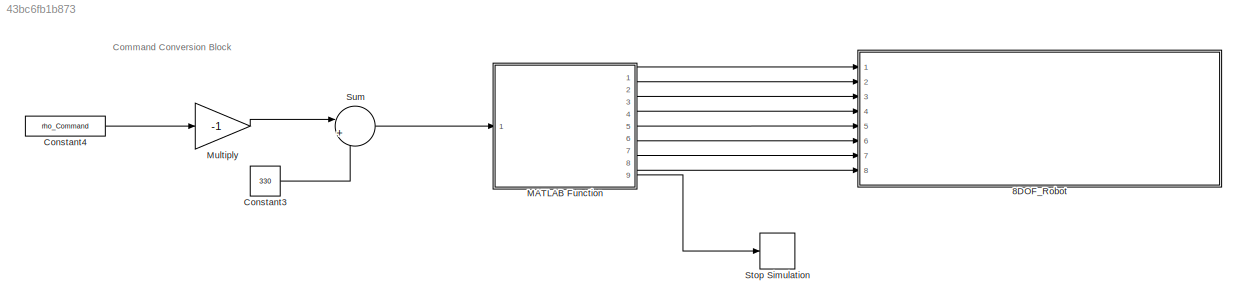
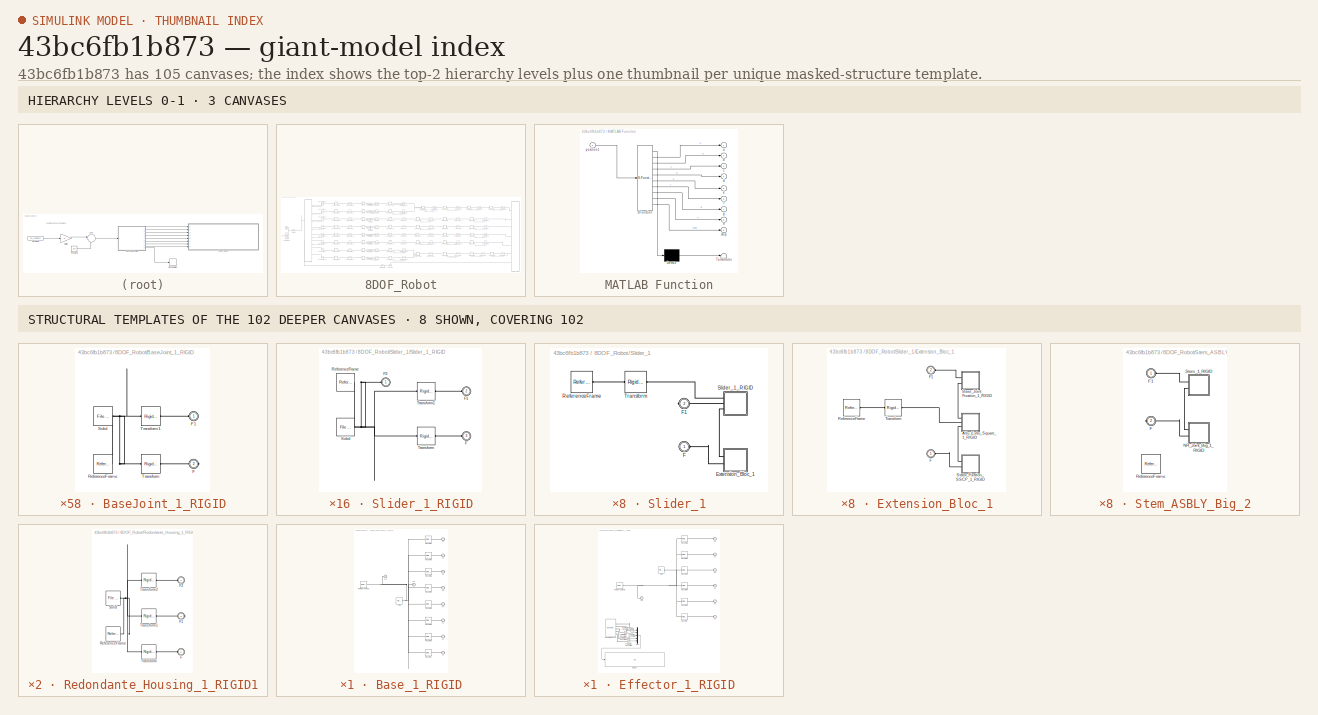
[diagram: thumbnail index - top-2 hierarchy levels (3 canvases) + 8 structural-template representatives of the remaining 102 canvases]
MODEL slx_43bc6fb1b873
KIND model
CONFIG AbsTol = auto
CONFIG EnableMultiTasking = off
CONFIG FixedStep = auto
CONFIG InitFcn = addpath("8DOF_robotModel\robot\")\nrun("x8DOF_Robot_DataFile.m")
CONFIG MaxStep = auto
CONFIG MinStep = auto
CONFIG RelTol = 1e-3
CONFIG SampleTimeConstraint = Unconstrained
CONFIG SolverName = FixedStepAuto
CONFIG StartTime = 0.0
CONFIG StopTime = inf
WORKSPACE source: external: MATLAB File  (data not in archive)
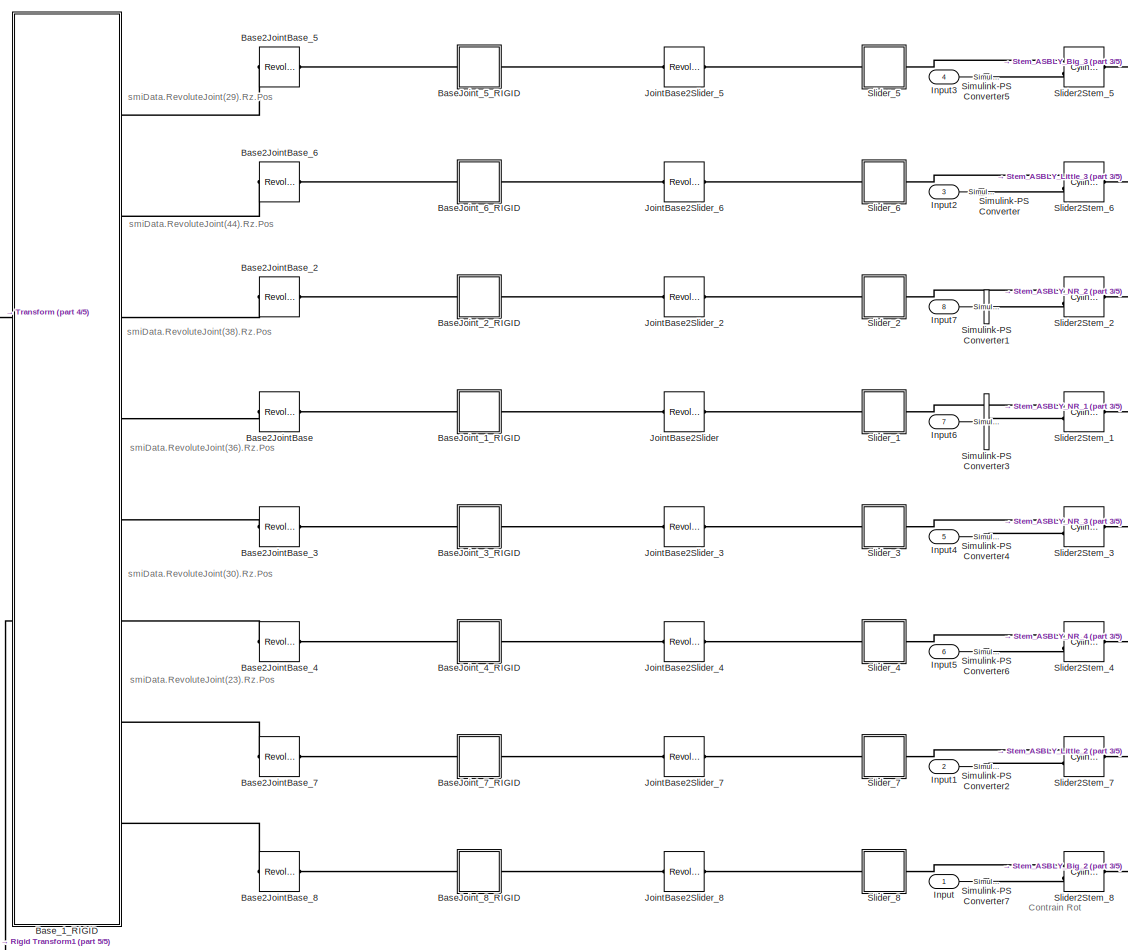
[diagram: 8DOF_Robot - part 1/5, left side, full height]
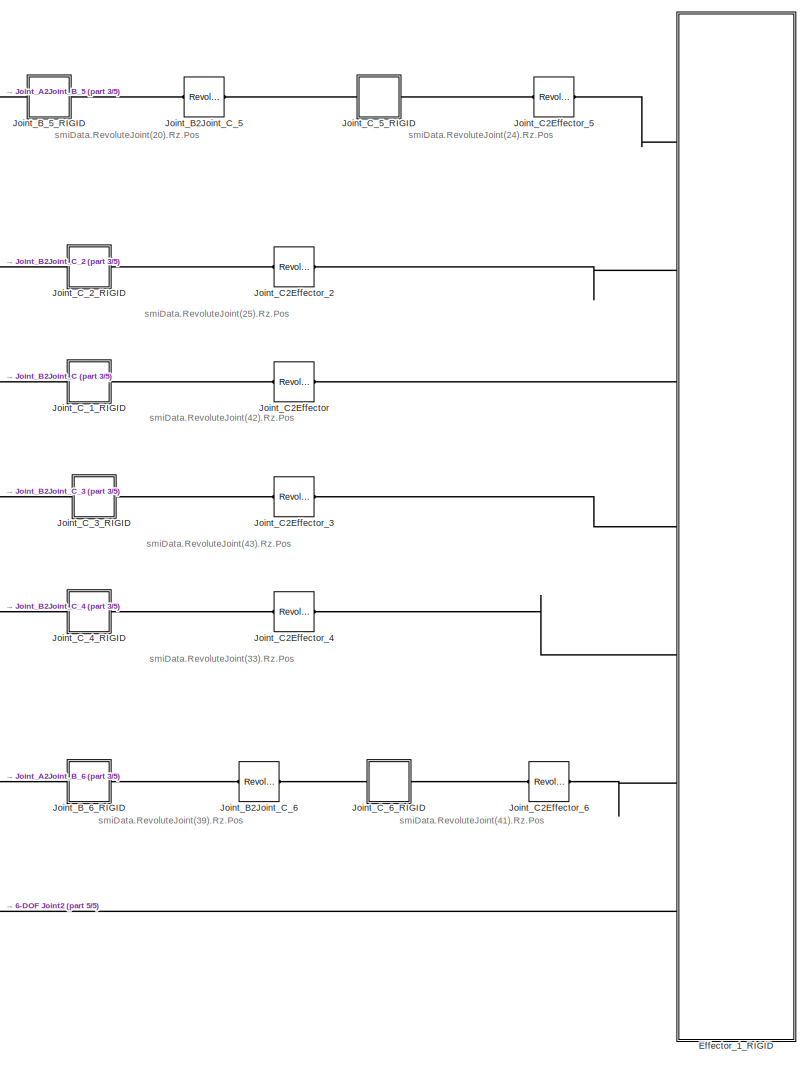
[diagram: 8DOF_Robot - part 2/5, right side, full height]
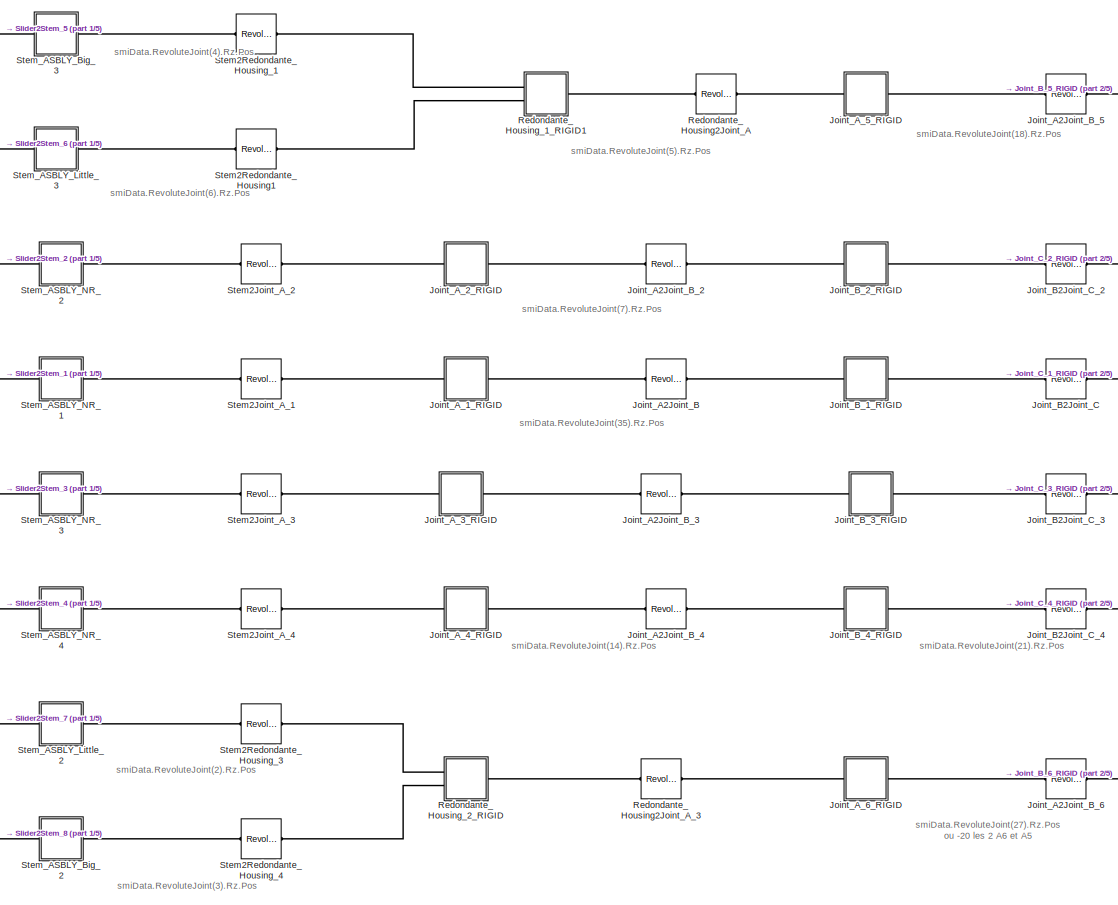
[diagram: 8DOF_Robot - part 3/5, center side, full height]
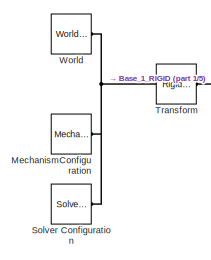
[diagram: 8DOF_Robot - part 4/5, middle left region]
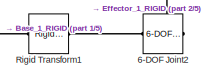
[diagram: 8DOF_Robot - part 5/5, bottom center region]
BLOCK [SubSystem] 8DOF_Robot
  Ports = [8]
  RequestExecContextInheritance = off
BLOCK [Reference] 8DOF_Robot/6-DOF Joint2  REF=sm_lib/Joints/6-DOF Joint
  Ports = [0, 0, 0, 0, 0, 1, 1]
  SourceBlock = sm_lib/Joints/6-DOF Joint
  SourceProductBaseCode = MS
  SourceType = 6-DOF Joint
BLOCK [Reference] 8DOF_Robot/Base2JointBase  REF=sm_lib/Joints/Revolute Joint
  Ports = [0, 0, 0, 0, 0, 1, 1]
  SourceBlock = sm_lib/Joints/Revolute Joint
  SourceProductBaseCode = MS
  SourceType = Revolute Joint
BLOCK [Reference] 8DOF_Robot/Base2JointBase_2  REF=sm_lib/Joints/Revolute Joint
  Ports = [0, 0, 0, 0, 0, 1, 1]
  SourceBlock = sm_lib/Joints/Revolute Joint
  SourceProductBaseCode = MS
  SourceType = Revolute Joint
BLOCK [Reference] 8DOF_Robot/Base2JointBase_3  REF=sm_lib/Joints/Revolute Joint
  Ports = [0, 0, 0, 0, 0, 1, 1]
  SourceBlock = sm_lib/Joints/Revolute Joint
  SourceProductBaseCode = MS
  SourceType = Revolute Joint
BLOCK [Reference] 8DOF_Robot/Base2JointBase_4  REF=sm_lib/Joints/Revolute Joint
  Ports = [0, 0, 0, 0, 0, 1, 1]
  SourceBlock = sm_lib/Joints/Revolute Joint
  SourceProductBaseCode = MS
  SourceType = Revolute Joint
BLOCK [Reference] 8DOF_Robot/Base2JointBase_5  REF=sm_lib/Joints/Revolute Joint
  Ports = [0, 0, 0, 0, 0, 1, 1]
  SourceBlock = sm_lib/Joints/Revolute Joint
  SourceProductBaseCode = MS
  SourceType = Revolute Joint
BLOCK [Reference] 8DOF_Robot/Base2JointBase_6  REF=sm_lib/Joints/Revolute Joint
  Ports = [0, 0, 0, 0, 0, 1, 1]
  SourceBlock = sm_lib/Joints/Revolute Joint
  SourceProductBaseCode = MS
  SourceType = Revolute Joint
BLOCK [Reference] 8DOF_Robot/Base2JointBase_7  REF=sm_lib/Joints/Revolute Joint
  Ports = [0, 0, 0, 0, 0, 1, 1]
  SourceBlock = sm_lib/Joints/Revolute Joint
  SourceProductBaseCode = MS
  SourceType = Revolute Joint
BLOCK [Reference] 8DOF_Robot/Base2JointBase_8  REF=sm_lib/Joints/Revolute Joint
  Ports = [0, 0, 0, 0, 0, 1, 1]
  SourceBlock = sm_lib/Joints/Revolute Joint
  SourceProductBaseCode = MS
  SourceType = Revolute Joint
BLOCK [SubSystem] 8DOF_Robot/BaseJoint_1_RIGID
  Ports = [0, 0, 0, 0, 0, 1, 1]
  RequestExecContextInheritance = off
BLOCK [PMIOPort] 8DOF_Robot/BaseJoint_1_RIGID/F
  Port = 2
  Side = Right
BLOCK [PMIOPort] 8DOF_Robot/BaseJoint_1_RIGID/F1
  Side = Left
BLOCK [Reference] 8DOF_Robot/BaseJoint_1_RIGID/ReferenceFrame  REF=sm_lib/Frames and
Transforms/Reference
Frame
  Ports = [0, 0, 0, 0, 0, 0, 1]
  SourceBlock = sm_lib/Frames and\nTransforms/Reference\nFrame
  SourceProductBaseCode = MS
  SourceType = Reference\nFrame
BLOCK [Reference] 8DOF_Robot/BaseJoint_1_RIGID/Solid  REF=sm_lib/Body Elements/File Solid
  Ports = [0, 0, 0, 0, 0, 0, 1]
  SourceBlock = sm_lib/Body Elements/File Solid
  SourceProductBaseCode = MS
  SourceType = File Solid
BLOCK [Reference] 8DOF_Robot/BaseJoint_1_RIGID/Transform  REF=sm_lib/Frames and
Transforms/Rigid
Transform
  Ports = [0, 0, 0, 0, 0, 1, 1]
  SourceBlock = sm_lib/Frames and\nTransforms/Rigid\nTransform
  SourceProductBaseCode = MS
  SourceType = Rigid\nTransform
BLOCK [Reference] 8DOF_Robot/BaseJoint_1_RIGID/Transform1  REF=sm_lib/Frames and
Transforms/Rigid
Transform
  Ports = [0, 0, 0, 0, 0, 1, 1]
  SourceBlock = sm_lib/Frames and\nTransforms/Rigid\nTransform
  SourceProductBaseCode = MS
  SourceType = Rigid\nTransform
BLOCK [SubSystem] 8DOF_Robot/BaseJoint_2_RIGID
  Ports = [0, 0, 0, 0, 0, 1, 1]
  RequestExecContextInheritance = off
BLOCK [PMIOPort] 8DOF_Robot/BaseJoint_2_RIGID/F
  Port = 2
  Side = Right
BLOCK [PMIOPort] 8DOF_Robot/BaseJoint_2_RIGID/F1
  Side = Left
BLOCK [Reference] 8DOF_Robot/BaseJoint_2_RIGID/ReferenceFrame  REF=sm_lib/Frames and
Transforms/Reference
Frame
  Ports = [0, 0, 0, 0, 0, 0, 1]
  SourceBlock = sm_lib/Frames and\nTransforms/Reference\nFrame
  SourceProductBaseCode = MS
  SourceType = Reference\nFrame
BLOCK [Reference] 8DOF_Robot/BaseJoint_2_RIGID/Solid  REF=sm_lib/Body Elements/File Solid
  Ports = [0, 0, 0, 0, 0, 0, 1]
  SourceBlock = sm_lib/Body Elements/File Solid
  SourceProductBaseCode = MS
  SourceType = File Solid
BLOCK [Reference] 8DOF_Robot/BaseJoint_2_RIGID/Transform  REF=sm_lib/Frames and
Transforms/Rigid
Transform
  Ports = [0, 0, 0, 0, 0, 1, 1]
  SourceBlock = sm_lib/Frames and\nTransforms/Rigid\nTransform
  SourceProductBaseCode = MS
  SourceType = Rigid\nTransform
BLOCK [Reference] 8DOF_Robot/BaseJoint_2_RIGID/Transform1  REF=sm_lib/Frames and
Transforms/Rigid
Transform
  Ports = [0, 0, 0, 0, 0, 1, 1]
  SourceBlock = sm_lib/Frames and\nTransforms/Rigid\nTransform
  SourceProductBaseCode = MS
  SourceType = Rigid\nTransform
BLOCK [SubSystem] 8DOF_Robot/BaseJoint_3_RIGID
  Ports = [0, 0, 0, 0, 0, 1, 1]
  RequestExecContextInheritance = off
BLOCK [PMIOPort] 8DOF_Robot/BaseJoint_3_RIGID/F
  Side = Left
BLOCK [PMIOPort] 8DOF_Robot/BaseJoint_3_RIGID/F1
  Port = 2
  Side = Right
BLOCK [Reference] 8DOF_Robot/BaseJoint_3_RIGID/ReferenceFrame  REF=sm_lib/Frames and
Transforms/Reference
Frame
  Ports = [0, 0, 0, 0, 0, 0, 1]
  SourceBlock = sm_lib/Frames and\nTransforms/Reference\nFrame
  SourceProductBaseCode = MS
  SourceType = Reference\nFrame
BLOCK [Reference] 8DOF_Robot/BaseJoint_3_RIGID/Solid  REF=sm_lib/Body Elements/File Solid
  Ports = [0, 0, 0, 0, 0, 0, 1]
  SourceBlock = sm_lib/Body Elements/File Solid
  SourceProductBaseCode = MS
  SourceType = File Solid
BLOCK [Reference] 8DOF_Robot/BaseJoint_3_RIGID/Transform  REF=sm_lib/Frames and
Transforms/Rigid
Transform
  Ports = [0, 0, 0, 0, 0, 1, 1]
  SourceBlock = sm_lib/Frames and\nTransforms/Rigid\nTransform
  SourceProductBaseCode = MS
  SourceType = Rigid\nTransform
BLOCK [Reference] 8DOF_Robot/BaseJoint_3_RIGID/Transform1  REF=sm_lib/Frames and
Transforms/Rigid
Transform
  Ports = [0, 0, 0, 0, 0, 1, 1]
  SourceBlock = sm_lib/Frames and\nTransforms/Rigid\nTransform
  SourceProductBaseCode = MS
  SourceType = Rigid\nTransform
BLOCK [SubSystem] 8DOF_Robot/BaseJoint_4_RIGID
  Ports = [0, 0, 0, 0, 0, 1, 1]
  RequestExecContextInheritance = off
BLOCK [PMIOPort] 8DOF_Robot/BaseJoint_4_RIGID/F
  Port = 2
  Side = Right
BLOCK [PMIOPort] 8DOF_Robot/BaseJoint_4_RIGID/F1
  Side = Left
BLOCK [Reference] 8DOF_Robot/BaseJoint_4_RIGID/ReferenceFrame  REF=sm_lib/Frames and
Transforms/Reference
Frame
  Ports = [0, 0, 0, 0, 0, 0, 1]
  SourceBlock = sm_lib/Frames and\nTransforms/Reference\nFrame
  SourceProductBaseCode = MS
  SourceType = Reference\nFrame
BLOCK [Reference] 8DOF_Robot/BaseJoint_4_RIGID/Solid  REF=sm_lib/Body Elements/File Solid
  Ports = [0, 0, 0, 0, 0, 0, 1]
  SourceBlock = sm_lib/Body Elements/File Solid
  SourceProductBaseCode = MS
  SourceType = File Solid
BLOCK [Reference] 8DOF_Robot/BaseJoint_4_RIGID/Transform  REF=sm_lib/Frames and
Transforms/Rigid
Transform
  Ports = [0, 0, 0, 0, 0, 1, 1]
  SourceBlock = sm_lib/Frames and\nTransforms/Rigid\nTransform
  SourceProductBaseCode = MS
  SourceType = Rigid\nTransform
BLOCK [Reference] 8DOF_Robot/BaseJoint_4_RIGID/Transform1  REF=sm_lib/Frames and
Transforms/Rigid
Transform
  Ports = [0, 0, 0, 0, 0, 1, 1]
  SourceBlock = sm_lib/Frames and\nTransforms/Rigid\nTransform
  SourceProductBaseCode = MS
  SourceType = Rigid\nTransform
BLOCK [SubSystem] 8DOF_Robot/BaseJoint_5_RIGID
  Ports = [0, 0, 0, 0, 0, 1, 1]
  RequestExecContextInheritance = off
BLOCK [PMIOPort] 8DOF_Robot/BaseJoint_5_RIGID/F
  Port = 2
  Side = Right
BLOCK [PMIOPort] 8DOF_Robot/BaseJoint_5_RIGID/F1
  Side = Left
BLOCK [Reference] 8DOF_Robot/BaseJoint_5_RIGID/ReferenceFrame  REF=sm_lib/Frames and
Transforms/Reference
Frame
  Ports = [0, 0, 0, 0, 0, 0, 1]
  SourceBlock = sm_lib/Frames and\nTransforms/Reference\nFrame
  SourceProductBaseCode = MS
  SourceType = Reference\nFrame
BLOCK [Reference] 8DOF_Robot/BaseJoint_5_RIGID/Solid  REF=sm_lib/Body Elements/File Solid
  Ports = [0, 0, 0, 0, 0, 0, 1]
  SourceBlock = sm_lib/Body Elements/File Solid
  SourceProductBaseCode = MS
  SourceType = File Solid
BLOCK [Reference] 8DOF_Robot/BaseJoint_5_RIGID/Transform  REF=sm_lib/Frames and
Transforms/Rigid
Transform
  Ports = [0, 0, 0, 0, 0, 1, 1]
  SourceBlock = sm_lib/Frames and\nTransforms/Rigid\nTransform
  SourceProductBaseCode = MS
  SourceType = Rigid\nTransform
BLOCK [Reference] 8DOF_Robot/BaseJoint_5_RIGID/Transform1  REF=sm_lib/Frames and
Transforms/Rigid
Transform
  Ports = [0, 0, 0, 0, 0, 1, 1]
  SourceBlock = sm_lib/Frames and\nTransforms/Rigid\nTransform
  SourceProductBaseCode = MS
  SourceType = Rigid\nTransform
BLOCK [SubSystem] 8DOF_Robot/BaseJoint_6_RIGID
  Ports = [0, 0, 0, 0, 0, 1, 1]
  RequestExecContextInheritance = off
BLOCK [PMIOPort] 8DOF_Robot/BaseJoint_6_RIGID/F
  Port = 2
  Side = Right
BLOCK [PMIOPort] 8DOF_Robot/BaseJoint_6_RIGID/F1
  Side = Left
BLOCK [Reference] 8DOF_Robot/BaseJoint_6_RIGID/ReferenceFrame  REF=sm_lib/Frames and
Transforms/Reference
Frame
  Ports = [0, 0, 0, 0, 0, 0, 1]
  SourceBlock = sm_lib/Frames and\nTransforms/Reference\nFrame
  SourceProductBaseCode = MS
  SourceType = Reference\nFrame
BLOCK [Reference] 8DOF_Robot/BaseJoint_6_RIGID/Solid  REF=sm_lib/Body Elements/File Solid
  Ports = [0, 0, 0, 0, 0, 0, 1]
  SourceBlock = sm_lib/Body Elements/File Solid
  SourceProductBaseCode = MS
  SourceType = File Solid
BLOCK [Reference] 8DOF_Robot/BaseJoint_6_RIGID/Transform  REF=sm_lib/Frames and
Transforms/Rigid
Transform
  Ports = [0, 0, 0, 0, 0, 1, 1]
  SourceBlock = sm_lib/Frames and\nTransforms/Rigid\nTransform
  SourceProductBaseCode = MS
  SourceType = Rigid\nTransform
BLOCK [Reference] 8DOF_Robot/BaseJoint_6_RIGID/Transform1  REF=sm_lib/Frames and
Transforms/Rigid
Transform
  Ports = [0, 0, 0, 0, 0, 1, 1]
  SourceBlock = sm_lib/Frames and\nTransforms/Rigid\nTransform
  SourceProductBaseCode = MS
  SourceType = Rigid\nTransform
BLOCK [SubSystem] 8DOF_Robot/BaseJoint_7_RIGID
  Ports = [0, 0, 0, 0, 0, 1, 1]
  RequestExecContextInheritance = off
BLOCK [PMIOPort] 8DOF_Robot/BaseJoint_7_RIGID/F
  Port = 2
  Side = Right
BLOCK [PMIOPort] 8DOF_Robot/BaseJoint_7_RIGID/F1
  Side = Left
BLOCK [Reference] 8DOF_Robot/BaseJoint_7_RIGID/ReferenceFrame  REF=sm_lib/Frames and
Transforms/Reference
Frame
  Ports = [0, 0, 0, 0, 0, 0, 1]
  SourceBlock = sm_lib/Frames and\nTransforms/Reference\nFrame
  SourceProductBaseCode = MS
  SourceType = Reference\nFrame
BLOCK [Reference] 8DOF_Robot/BaseJoint_7_RIGID/Solid  REF=sm_lib/Body Elements/File Solid
  Ports = [0, 0, 0, 0, 0, 0, 1]
  SourceBlock = sm_lib/Body Elements/File Solid
  SourceProductBaseCode = MS
  SourceType = File Solid
BLOCK [Reference] 8DOF_Robot/BaseJoint_7_RIGID/Transform  REF=sm_lib/Frames and
Transforms/Rigid
Transform
  Ports = [0, 0, 0, 0, 0, 1, 1]
  SourceBlock = sm_lib/Frames and\nTransforms/Rigid\nTransform
  SourceProductBaseCode = MS
  SourceType = Rigid\nTransform
BLOCK [Reference] 8DOF_Robot/BaseJoint_7_RIGID/Transform1  REF=sm_lib/Frames and
Transforms/Rigid
Transform
  Ports = [0, 0, 0, 0, 0, 1, 1]
  SourceBlock = sm_lib/Frames and\nTransforms/Rigid\nTransform
  SourceProductBaseCode = MS
  SourceType = Rigid\nTransform
BLOCK [SubSystem] 8DOF_Robot/BaseJoint_8_RIGID
  Ports = [0, 0, 0, 0, 0, 1, 1]
  RequestExecContextInheritance = off
BLOCK [PMIOPort] 8DOF_Robot/BaseJoint_8_RIGID/F
  Port = 2
  Side = Right
BLOCK [PMIOPort] 8DOF_Robot/BaseJoint_8_RIGID/F1
  Side = Left
BLOCK [Reference] 8DOF_Robot/BaseJoint_8_RIGID/ReferenceFrame  REF=sm_lib/Frames and
Transforms/Reference
Frame
  Ports = [0, 0, 0, 0, 0, 0, 1]
  SourceBlock = sm_lib/Frames and\nTransforms/Reference\nFrame
  SourceProductBaseCode = MS
  SourceType = Reference\nFrame
BLOCK [Reference] 8DOF_Robot/BaseJoint_8_RIGID/Solid  REF=sm_lib/Body Elements/File Solid
  Ports = [0, 0, 0, 0, 0, 0, 1]
  SourceBlock = sm_lib/Body Elements/File Solid
  SourceProductBaseCode = MS
  SourceType = File Solid
BLOCK [Reference] 8DOF_Robot/BaseJoint_8_RIGID/Transform  REF=sm_lib/Frames and
Transforms/Rigid
Transform
  Ports = [0, 0, 0, 0, 0, 1, 1]
  SourceBlock = sm_lib/Frames and\nTransforms/Rigid\nTransform
  SourceProductBaseCode = MS
  SourceType = Rigid\nTransform
BLOCK [Reference] 8DOF_Robot/BaseJoint_8_RIGID/Transform1  REF=sm_lib/Frames and
Transforms/Rigid
Transform
  Ports = [0, 0, 0, 0, 0, 1, 1]
  SourceBlock = sm_lib/Frames and\nTransforms/Rigid\nTransform
  SourceProductBaseCode = MS
  SourceType = Rigid\nTransform
BLOCK [SubSystem] 8DOF_Robot/Base_1_RIGID
  Ports = [0, 0, 0, 0, 0, 2, 8]
  RequestExecContextInheritance = off
BLOCK [PMIOPort] 8DOF_Robot/Base_1_RIGID/F
  Port = 9
  Side = Right
BLOCK [PMIOPort] 8DOF_Robot/Base_1_RIGID/F1
  Port = 7
  Side = Right
BLOCK [PMIOPort] 8DOF_Robot/Base_1_RIGID/F2
  Port = 2
  Side = Right
BLOCK [PMIOPort] 8DOF_Robot/Base_1_RIGID/F3
  Port = 6
  Side = Right
BLOCK [PMIOPort] 8DOF_Robot/Base_1_RIGID/F4
  Port = 5
  Side = Right
BLOCK [PMIOPort] 8DOF_Robot/Base_1_RIGID/F5
  Port = 8
  Side = Right
BLOCK [PMIOPort] 8DOF_Robot/Base_1_RIGID/F6
  Port = 4
  Side = Right
BLOCK [PMIOPort] 8DOF_Robot/Base_1_RIGID/F7
  Port = 3
  Side = Right
BLOCK [PMIOPort] 8DOF_Robot/Base_1_RIGID/F8
  Side = Left
BLOCK [PMIOPort] 8DOF_Robot/Base_1_RIGID/F9
  Port = 10
  Side = Left
BLOCK [Reference] 8DOF_Robot/Base_1_RIGID/ReferenceFrame  REF=sm_lib/Frames and
Transforms/Reference
Frame
  Ports = [0, 0, 0, 0, 0, 0, 1]
  SourceBlock = sm_lib/Frames and\nTransforms/Reference\nFrame
  SourceProductBaseCode = MS
  SourceType = Reference\nFrame
BLOCK [Reference] 8DOF_Robot/Base_1_RIGID/Solid  REF=sm_lib/Body Elements/File Solid
  Ports = [0, 0, 0, 0, 0, 0, 1]
  SourceBlock = sm_lib/Body Elements/File Solid
  SourceProductBaseCode = MS
  SourceType = File Solid
BLOCK [Reference] 8DOF_Robot/Base_1_RIGID/Transform  REF=sm_lib/Frames and
Transforms/Rigid
Transform
  Ports = [0, 0, 0, 0, 0, 1, 1]
  SourceBlock = sm_lib/Frames and\nTransforms/Rigid\nTransform
  SourceProductBaseCode = MS
  SourceType = Rigid\nTransform
BLOCK [Reference] 8DOF_Robot/Base_1_RIGID/Transform1  REF=sm_lib/Frames and
Transforms/Rigid
Transform
  Ports = [0, 0, 0, 0, 0, 1, 1]
  SourceBlock = sm_lib/Frames and\nTransforms/Rigid\nTransform
  SourceProductBaseCode = MS
  SourceType = Rigid\nTransform
BLOCK [Reference] 8DOF_Robot/Base_1_RIGID/Transform2  REF=sm_lib/Frames and
Transforms/Rigid
Transform
  Ports = [0, 0, 0, 0, 0, 1, 1]
  SourceBlock = sm_lib/Frames and\nTransforms/Rigid\nTransform
  SourceProductBaseCode = MS
  SourceType = Rigid\nTransform
BLOCK [Reference] 8DOF_Robot/Base_1_RIGID/Transform3  REF=sm_lib/Frames and
Transforms/Rigid
Transform
  Ports = [0, 0, 0, 0, 0, 1, 1]
  SourceBlock = sm_lib/Frames and\nTransforms/Rigid\nTransform
  SourceProductBaseCode = MS
  SourceType = Rigid\nTransform
BLOCK [Reference] 8DOF_Robot/Base_1_RIGID/Transform4  REF=sm_lib/Frames and
Transforms/Rigid
Transform
  Ports = [0, 0, 0, 0, 0, 1, 1]
  SourceBlock = sm_lib/Frames and\nTransforms/Rigid\nTransform
  SourceProductBaseCode = MS
  SourceType = Rigid\nTransform
BLOCK [Reference] 8DOF_Robot/Base_1_RIGID/Transform5  REF=sm_lib/Frames and
Transforms/Rigid
Transform
  Ports = [0, 0, 0, 0, 0, 1, 1]
  SourceBlock = sm_lib/Frames and\nTransforms/Rigid\nTransform
  SourceProductBaseCode = MS
  SourceType = Rigid\nTransform
BLOCK [Reference] 8DOF_Robot/Base_1_RIGID/Transform6  REF=sm_lib/Frames and
Transforms/Rigid
Transform
  Ports = [0, 0, 0, 0, 0, 1, 1]
  SourceBlock = sm_lib/Frames and\nTransforms/Rigid\nTransform
  SourceProductBaseCode = MS
  SourceType = Rigid\nTransform
BLOCK [Reference] 8DOF_Robot/Base_1_RIGID/Transform7  REF=sm_lib/Frames and
Transforms/Rigid
Transform
  Ports = [0, 0, 0, 0, 0, 1, 1]
  SourceBlock = sm_lib/Frames and\nTransforms/Rigid\nTransform
  SourceProductBaseCode = MS
  SourceType = Rigid\nTransform
BLOCK [SubSystem] 8DOF_Robot/Effector_1_RIGID
  Ports = [0, 0, 0, 0, 0, 7]
  RequestExecContextInheritance = off
BLOCK [Display] 8DOF_Robot/Effector_1_RIGID/Display
  Commented = on
  Decimation = 1
  Ports = [1]
BLOCK [PMIOPort] 8DOF_Robot/Effector_1_RIGID/F
  Side = Left
BLOCK [PMIOPort] 8DOF_Robot/Effector_1_RIGID/F1
  Port = 2
  Side = Left
BLOCK [PMIOPort] 8DOF_Robot/Effector_1_RIGID/F2
  Port = 5
  Side = Left
BLOCK [PMIOPort] 8DOF_Robot/Effector_1_RIGID/F3
  Port = 6
  Side = Left
BLOCK [PMIOPort] 8DOF_Robot/Effector_1_RIGID/F4
  Port = 3
  Side = Left
BLOCK [PMIOPort] 8DOF_Robot/Effector_1_RIGID/F5
  Port = 4
  Side = Left
BLOCK [PMIOPort] 8DOF_Robot/Effector_1_RIGID/F6
  Port = 7
  Side = Left
BLOCK [Mux] 8DOF_Robot/Effector_1_RIGID/Mux
  Commented = on
  DisplayOption = bar
  Inputs = 5
  Ports = [5, 1]
BLOCK [Reference] 8DOF_Robot/Effector_1_RIGID/PS-Simulink Converter  REF=nesl_utility/PS-Simulink
Converter
  Commented = on
  Ports = [0, 1, 0, 0, 0, 1]
  SourceBlock = nesl_utility/PS-Simulink\nConverter
  SourceProductBaseCode = PW,SS
  SourceType = PS-Simulink\nConverter
BLOCK [Reference] 8DOF_Robot/Effector_1_RIGID/PS-Simulink Converter1  REF=nesl_utility/PS-Simulink
Converter
  Commented = on
  Ports = [0, 1, 0, 0, 0, 1]
  SourceBlock = nesl_utility/PS-Simulink\nConverter
  SourceProductBaseCode = PW,SS
  SourceType = PS-Simulink\nConverter
BLOCK [Reference] 8DOF_Robot/Effector_1_RIGID/PS-Simulink Converter2  REF=nesl_utility/PS-Simulink
Converter
  Commented = on
  Ports = [0, 1, 0, 0, 0, 1]
  SourceBlock = nesl_utility/PS-Simulink\nConverter
  SourceProductBaseCode = PW,SS
  SourceType = PS-Simulink\nConverter
BLOCK [Reference] 8DOF_Robot/Effector_1_RIGID/PS-Simulink Converter3  REF=nesl_utility/PS-Simulink
Converter
  Commented = on
  Ports = [0, 1, 0, 0, 0, 1]
  SourceBlock = nesl_utility/PS-Simulink\nConverter
  SourceProductBaseCode = PW,SS
  SourceType = PS-Simulink\nConverter
BLOCK [Reference] 8DOF_Robot/Effector_1_RIGID/PS-Simulink Converter4  REF=nesl_utility/PS-Simulink
Converter
  Commented = on
  Ports = [0, 1, 0, 0, 0, 1]
  SourceBlock = nesl_utility/PS-Simulink\nConverter
  SourceProductBaseCode = PW,SS
  SourceType = PS-Simulink\nConverter
BLOCK [Reference] 8DOF_Robot/Effector_1_RIGID/ReferenceFrame  REF=sm_lib/Frames and
Transforms/Reference
Frame
  Ports = [0, 0, 0, 0, 0, 0, 1]
  SourceBlock = sm_lib/Frames and\nTransforms/Reference\nFrame
  SourceProductBaseCode = MS
  SourceType = Reference\nFrame
BLOCK [Reference] 8DOF_Robot/Effector_1_RIGID/Solid  REF=sm_lib/Body Elements/File Solid
  Ports = [0, 0, 0, 0, 0, 0, 1]
  SourceBlock = sm_lib/Body Elements/File Solid
  SourceProductBaseCode = MS
  SourceType = File Solid
BLOCK [Reference] 8DOF_Robot/Effector_1_RIGID/Transform  REF=sm_lib/Frames and
Transforms/Rigid
Transform
  Ports = [0, 0, 0, 0, 0, 1, 1]
  SourceBlock = sm_lib/Frames and\nTransforms/Rigid\nTransform
  SourceProductBaseCode = MS
  SourceType = Rigid\nTransform
BLOCK [Reference] 8DOF_Robot/Effector_1_RIGID/Transform Sensor  REF=sm_lib/Frames and
Transforms/Transform
Sensor
  Commented = on
  Ports = [0, 0, 0, 0, 0, 1, 6]
  SourceBlock = sm_lib/Frames and\nTransforms/Transform\nSensor
  SourceProductBaseCode = MS
  SourceType = Transform\nSensor
BLOCK [Reference] 8DOF_Robot/Effector_1_RIGID/Transform1  REF=sm_lib/Frames and
Transforms/Rigid
Transform
  Ports = [0, 0, 0, 0, 0, 1, 1]
  SourceBlock = sm_lib/Frames and\nTransforms/Rigid\nTransform
  SourceProductBaseCode = MS
  SourceType = Rigid\nTransform
BLOCK [Reference] 8DOF_Robot/Effector_1_RIGID/Transform2  REF=sm_lib/Frames and
Transforms/Rigid
Transform
  Ports = [0, 0, 0, 0, 0, 1, 1]
  SourceBlock = sm_lib/Frames and\nTransforms/Rigid\nTransform
  SourceProductBaseCode = MS
  SourceType = Rigid\nTransform
BLOCK [Reference] 8DOF_Robot/Effector_1_RIGID/Transform3  REF=sm_lib/Frames and
Transforms/Rigid
Transform
  Ports = [0, 0, 0, 0, 0, 1, 1]
  SourceBlock = sm_lib/Frames and\nTransforms/Rigid\nTransform
  SourceProductBaseCode = MS
  SourceType = Rigid\nTransform
BLOCK [Reference] 8DOF_Robot/Effector_1_RIGID/Transform4  REF=sm_lib/Frames and
Transforms/Rigid
Transform
  Ports = [0, 0, 0, 0, 0, 1, 1]
  SourceBlock = sm_lib/Frames and\nTransforms/Rigid\nTransform
  SourceProductBaseCode = MS
  SourceType = Rigid\nTransform
BLOCK [Reference] 8DOF_Robot/Effector_1_RIGID/Transform5  REF=sm_lib/Frames and
Transforms/Rigid
Transform
  Ports = [0, 0, 0, 0, 0, 1, 1]
  SourceBlock = sm_lib/Frames and\nTransforms/Rigid\nTransform
  SourceProductBaseCode = MS
  SourceType = Rigid\nTransform
BLOCK [Inport] 8DOF_Robot/Input
BLOCK [Inport] 8DOF_Robot/Input1
  Port = 2
BLOCK [Inport] 8DOF_Robot/Input2
  Port = 3
BLOCK [Inport] 8DOF_Robot/Input3
  Port = 4
BLOCK [Inport] 8DOF_Robot/Input4
  Port = 5
BLOCK [Inport] 8DOF_Robot/Input5
  Port = 6
BLOCK [Inport] 8DOF_Robot/Input6
  Port = 7
BLOCK [Inport] 8DOF_Robot/Input7
  Port = 8
BLOCK [Reference] 8DOF_Robot/JointBase2Slider  REF=sm_lib/Joints/Revolute Joint
  Ports = [0, 0, 0, 0, 0, 1, 1]
  SourceBlock = sm_lib/Joints/Revolute Joint
  SourceProductBaseCode = MS
  SourceType = Revolute Joint
BLOCK [Reference] 8DOF_Robot/JointBase2Slider_2  REF=sm_lib/Joints/Revolute Joint
  Ports = [0, 0, 0, 0, 0, 1, 1]
  SourceBlock = sm_lib/Joints/Revolute Joint
  SourceProductBaseCode = MS
  SourceType = Revolute Joint
BLOCK [Reference] 8DOF_Robot/JointBase2Slider_3  REF=sm_lib/Joints/Revolute Joint
  Ports = [0, 0, 0, 0, 0, 1, 1]
  SourceBlock = sm_lib/Joints/Revolute Joint
  SourceProductBaseCode = MS
  SourceType = Revolute Joint
BLOCK [Reference] 8DOF_Robot/JointBase2Slider_4  REF=sm_lib/Joints/Revolute Joint
  Ports = [0, 0, 0, 0, 0, 1, 1]
  SourceBlock = sm_lib/Joints/Revolute Joint
  SourceProductBaseCode = MS
  SourceType = Revolute Joint
BLOCK [Reference] 8DOF_Robot/JointBase2Slider_5  REF=sm_lib/Joints/Revolute Joint
  Ports = [0, 0, 0, 0, 0, 1, 1]
  SourceBlock = sm_lib/Joints/Revolute Joint
  SourceProductBaseCode = MS
  SourceType = Revolute Joint
BLOCK [Reference] 8DOF_Robot/JointBase2Slider_6  REF=sm_lib/Joints/Revolute Joint
  Ports = [0, 0, 0, 0, 0, 1, 1]
  SourceBlock = sm_lib/Joints/Revolute Joint
  SourceProductBaseCode = MS
  SourceType = Revolute Joint
BLOCK [Reference] 8DOF_Robot/JointBase2Slider_7  REF=sm_lib/Joints/Revolute Joint
  Ports = [0, 0, 0, 0, 0, 1, 1]
  SourceBlock = sm_lib/Joints/Revolute Joint
  SourceProductBaseCode = MS
  SourceType = Revolute Joint
BLOCK [Reference] 8DOF_Robot/JointBase2Slider_8  REF=sm_lib/Joints/Revolute Joint
  Ports = [0, 0, 0, 0, 0, 1, 1]
  SourceBlock = sm_lib/Joints/Revolute Joint
  SourceProductBaseCode = MS
  SourceType = Revolute Joint
BLOCK [Reference] 8DOF_Robot/Joint_A2Joint_B  REF=sm_lib/Joints/Revolute Joint
  Ports = [0, 0, 0, 0, 0, 1, 1]
  SourceBlock = sm_lib/Joints/Revolute Joint
  SourceProductBaseCode = MS
  SourceType = Revolute Joint
BLOCK [Reference] 8DOF_Robot/Joint_A2Joint_B_2  REF=sm_lib/Joints/Revolute Joint
  Ports = [0, 0, 0, 0, 0, 1, 1]
  SourceBlock = sm_lib/Joints/Revolute Joint
  SourceProductBaseCode = MS
  SourceType = Revolute Joint
BLOCK [Reference] 8DOF_Robot/Joint_A2Joint_B_3  REF=sm_lib/Joints/Revolute Joint
  Ports = [0, 0, 0, 0, 0, 1, 1]
  SourceBlock = sm_lib/Joints/Revolute Joint
  SourceProductBaseCode = MS
  SourceType = Revolute Joint
BLOCK [Reference] 8DOF_Robot/Joint_A2Joint_B_4  REF=sm_lib/Joints/Revolute Joint
  Ports = [0, 0, 0, 0, 0, 1, 1]
  SourceBlock = sm_lib/Joints/Revolute Joint
  SourceProductBaseCode = MS
  SourceType = Revolute Joint
BLOCK [Reference] 8DOF_Robot/Joint_A2Joint_B_5  REF=sm_lib/Joints/Revolute Joint
  Ports = [0, 0, 0, 0, 0, 1, 1]
  SourceBlock = sm_lib/Joints/Revolute Joint
  SourceProductBaseCode = MS
  SourceType = Revolute Joint
BLOCK [Reference] 8DOF_Robot/Joint_A2Joint_B_6  REF=sm_lib/Joints/Revolute Joint
  Ports = [0, 0, 0, 0, 0, 1, 1]
  SourceBlock = sm_lib/Joints/Revolute Joint
  SourceProductBaseCode = MS
  SourceType = Revolute Joint
BLOCK [SubSystem] 8DOF_Robot/Joint_A_1_RIGID
  Ports = [0, 0, 0, 0, 0, 1, 1]
  RequestExecContextInheritance = off
BLOCK [PMIOPort] 8DOF_Robot/Joint_A_1_RIGID/F
  Side = Left
BLOCK [PMIOPort] 8DOF_Robot/Joint_A_1_RIGID/F1
  Port = 2
  Side = Right
BLOCK [Reference] 8DOF_Robot/Joint_A_1_RIGID/ReferenceFrame  REF=sm_lib/Frames and
Transforms/Reference
Frame
  Ports = [0, 0, 0, 0, 0, 0, 1]
  SourceBlock = sm_lib/Frames and\nTransforms/Reference\nFrame
  SourceProductBaseCode = MS
  SourceType = Reference\nFrame
BLOCK [Reference] 8DOF_Robot/Joint_A_1_RIGID/Solid  REF=sm_lib/Body Elements/File Solid
  Ports = [0, 0, 0, 0, 0, 0, 1]
  SourceBlock = sm_lib/Body Elements/File Solid
  SourceProductBaseCode = MS
  SourceType = File Solid
BLOCK [Reference] 8DOF_Robot/Joint_A_1_RIGID/Transform  REF=sm_lib/Frames and
Transforms/Rigid
Transform
  Ports = [0, 0, 0, 0, 0, 1, 1]
  SourceBlock = sm_lib/Frames and\nTransforms/Rigid\nTransform
  SourceProductBaseCode = MS
  SourceType = Rigid\nTransform
BLOCK [Reference] 8DOF_Robot/Joint_A_1_RIGID/Transform1  REF=sm_lib/Frames and
Transforms/Rigid
Transform
  Ports = [0, 0, 0, 0, 0, 1, 1]
  SourceBlock = sm_lib/Frames and\nTransforms/Rigid\nTransform
  SourceProductBaseCode = MS
  SourceType = Rigid\nTransform
BLOCK [SubSystem] 8DOF_Robot/Joint_A_2_RIGID
  Ports = [0, 0, 0, 0, 0, 1, 1]
  RequestExecContextInheritance = off
BLOCK [PMIOPort] 8DOF_Robot/Joint_A_2_RIGID/F
  Port = 2
  Side = Right
BLOCK [PMIOPort] 8DOF_Robot/Joint_A_2_RIGID/F1
  Side = Left
BLOCK [Reference] 8DOF_Robot/Joint_A_2_RIGID/ReferenceFrame  REF=sm_lib/Frames and
Transforms/Reference
Frame
  Ports = [0, 0, 0, 0, 0, 0, 1]
  SourceBlock = sm_lib/Frames and\nTransforms/Reference\nFrame
  SourceProductBaseCode = MS
  SourceType = Reference\nFrame
BLOCK [Reference] 8DOF_Robot/Joint_A_2_RIGID/Solid  REF=sm_lib/Body Elements/File Solid
  Ports = [0, 0, 0, 0, 0, 0, 1]
  SourceBlock = sm_lib/Body Elements/File Solid
  SourceProductBaseCode = MS
  SourceType = File Solid
BLOCK [Reference] 8DOF_Robot/Joint_A_2_RIGID/Transform  REF=sm_lib/Frames and
Transforms/Rigid
Transform
  Ports = [0, 0, 0, 0, 0, 1, 1]
  SourceBlock = sm_lib/Frames and\nTransforms/Rigid\nTransform
  SourceProductBaseCode = MS
  SourceType = Rigid\nTransform
BLOCK [Reference] 8DOF_Robot/Joint_A_2_RIGID/Transform1  REF=sm_lib/Frames and
Transforms/Rigid
Transform
  Ports = [0, 0, 0, 0, 0, 1, 1]
  SourceBlock = sm_lib/Frames and\nTransforms/Rigid\nTransform
  SourceProductBaseCode = MS
  SourceType = Rigid\nTransform
BLOCK [SubSystem] 8DOF_Robot/Joint_A_3_RIGID
  Ports = [0, 0, 0, 0, 0, 1, 1]
  RequestExecContextInheritance = off
BLOCK [PMIOPort] 8DOF_Robot/Joint_A_3_RIGID/F
  Port = 2
  Side = Right
BLOCK [PMIOPort] 8DOF_Robot/Joint_A_3_RIGID/F1
  Side = Left
BLOCK [Reference] 8DOF_Robot/Joint_A_3_RIGID/ReferenceFrame  REF=sm_lib/Frames and
Transforms/Reference
Frame
  Ports = [0, 0, 0, 0, 0, 0, 1]
  SourceBlock = sm_lib/Frames and\nTransforms/Reference\nFrame
  SourceProductBaseCode = MS
  SourceType = Reference\nFrame
BLOCK [Reference] 8DOF_Robot/Joint_A_3_RIGID/Solid  REF=sm_lib/Body Elements/File Solid
  Ports = [0, 0, 0, 0, 0, 0, 1]
  SourceBlock = sm_lib/Body Elements/File Solid
  SourceProductBaseCode = MS
  SourceType = File Solid
BLOCK [Reference] 8DOF_Robot/Joint_A_3_RIGID/Transform  REF=sm_lib/Frames and
Transforms/Rigid
Transform
  Ports = [0, 0, 0, 0, 0, 1, 1]
  SourceBlock = sm_lib/Frames and\nTransforms/Rigid\nTransform
  SourceProductBaseCode = MS
  SourceType = Rigid\nTransform
BLOCK [Reference] 8DOF_Robot/Joint_A_3_RIGID/Transform1  REF=sm_lib/Frames and
Transforms/Rigid
Transform
  Ports = [0, 0, 0, 0, 0, 1, 1]
  SourceBlock = sm_lib/Frames and\nTransforms/Rigid\nTransform
  SourceProductBaseCode = MS
  SourceType = Rigid\nTransform
BLOCK [SubSystem] 8DOF_Robot/Joint_A_4_RIGID
  Ports = [0, 0, 0, 0, 0, 1, 1]
  RequestExecContextInheritance = off
BLOCK [PMIOPort] 8DOF_Robot/Joint_A_4_RIGID/F
  Port = 2
  Side = Right
BLOCK [PMIOPort] 8DOF_Robot/Joint_A_4_RIGID/F1
  Side = Left
BLOCK [Reference] 8DOF_Robot/Joint_A_4_RIGID/ReferenceFrame  REF=sm_lib/Frames and
Transforms/Reference
Frame
  Ports = [0, 0, 0, 0, 0, 0, 1]
  SourceBlock = sm_lib/Frames and\nTransforms/Reference\nFrame
  SourceProductBaseCode = MS
  SourceType = Reference\nFrame
BLOCK [Reference] 8DOF_Robot/Joint_A_4_RIGID/Solid  REF=sm_lib/Body Elements/File Solid
  Ports = [0, 0, 0, 0, 0, 0, 1]
  SourceBlock = sm_lib/Body Elements/File Solid
  SourceProductBaseCode = MS
  SourceType = File Solid
BLOCK [Reference] 8DOF_Robot/Joint_A_4_RIGID/Transform  REF=sm_lib/Frames and
Transforms/Rigid
Transform
  Ports = [0, 0, 0, 0, 0, 1, 1]
  SourceBlock = sm_lib/Frames and\nTransforms/Rigid\nTransform
  SourceProductBaseCode = MS
  SourceType = Rigid\nTransform
BLOCK [Reference] 8DOF_Robot/Joint_A_4_RIGID/Transform1  REF=sm_lib/Frames and
Transforms/Rigid
Transform
  Ports = [0, 0, 0, 0, 0, 1, 1]
  SourceBlock = sm_lib/Frames and\nTransforms/Rigid\nTransform
  SourceProductBaseCode = MS
  SourceType = Rigid\nTransform
BLOCK [SubSystem] 8DOF_Robot/Joint_A_5_RIGID
  Ports = [0, 0, 0, 0, 0, 1, 1]
  RequestExecContextInheritance = off
BLOCK [PMIOPort] 8DOF_Robot/Joint_A_5_RIGID/F
  Side = Left
BLOCK [PMIOPort] 8DOF_Robot/Joint_A_5_RIGID/F1
  Port = 2
  Side = Right
BLOCK [Reference] 8DOF_Robot/Joint_A_5_RIGID/ReferenceFrame  REF=sm_lib/Frames and
Transforms/Reference
Frame
  Ports = [0, 0, 0, 0, 0, 0, 1]
  SourceBlock = sm_lib/Frames and\nTransforms/Reference\nFrame
  SourceProductBaseCode = MS
  SourceType = Reference\nFrame
BLOCK [Reference] 8DOF_Robot/Joint_A_5_RIGID/Solid  REF=sm_lib/Body Elements/File Solid
  Ports = [0, 0, 0, 0, 0, 0, 1]
  SourceBlock = sm_lib/Body Elements/File Solid
  SourceProductBaseCode = MS
  SourceType = File Solid
BLOCK [Reference] 8DOF_Robot/Joint_A_5_RIGID/Transform  REF=sm_lib/Frames and
Transforms/Rigid
Transform
  Ports = [0, 0, 0, 0, 0, 1, 1]
  SourceBlock = sm_lib/Frames and\nTransforms/Rigid\nTransform
  SourceProductBaseCode = MS
  SourceType = Rigid\nTransform
BLOCK [Reference] 8DOF_Robot/Joint_A_5_RIGID/Transform1  REF=sm_lib/Frames and
Transforms/Rigid
Transform
  Ports = [0, 0, 0, 0, 0, 1, 1]
  SourceBlock = sm_lib/Frames and\nTransforms/Rigid\nTransform
  SourceProductBaseCode = MS
  SourceType = Rigid\nTransform
BLOCK [SubSystem] 8DOF_Robot/Joint_A_6_RIGID
  Ports = [0, 0, 0, 0, 0, 1, 1]
  RequestExecContextInheritance = off
BLOCK [PMIOPort] 8DOF_Robot/Joint_A_6_RIGID/F
  Side = Left
BLOCK [PMIOPort] 8DOF_Robot/Joint_A_6_RIGID/F1
  Port = 2
  Side = Right
BLOCK [Reference] 8DOF_Robot/Joint_A_6_RIGID/ReferenceFrame  REF=sm_lib/Frames and
Transforms/Reference
Frame
  Ports = [0, 0, 0, 0, 0, 0, 1]
  SourceBlock = sm_lib/Frames and\nTransforms/Reference\nFrame
  SourceProductBaseCode = MS
  SourceType = Reference\nFrame
BLOCK [Reference] 8DOF_Robot/Joint_A_6_RIGID/Solid  REF=sm_lib/Body Elements/File Solid
  Ports = [0, 0, 0, 0, 0, 0, 1]
  SourceBlock = sm_lib/Body Elements/File Solid
  SourceProductBaseCode = MS
  SourceType = File Solid
BLOCK [Reference] 8DOF_Robot/Joint_A_6_RIGID/Transform  REF=sm_lib/Frames and
Transforms/Rigid
Transform
  Ports = [0, 0, 0, 0, 0, 1, 1]
  SourceBlock = sm_lib/Frames and\nTransforms/Rigid\nTransform
  SourceProductBaseCode = MS
  SourceType = Rigid\nTransform
BLOCK [Reference] 8DOF_Robot/Joint_A_6_RIGID/Transform1  REF=sm_lib/Frames and
Transforms/Rigid
Transform
  Ports = [0, 0, 0, 0, 0, 1, 1]
  SourceBlock = sm_lib/Frames and\nTransforms/Rigid\nTransform
  SourceProductBaseCode = MS
  SourceType = Rigid\nTransform
BLOCK [Reference] 8DOF_Robot/Joint_B2Joint_C  REF=sm_lib/Joints/Revolute Joint
  Ports = [0, 0, 0, 0, 0, 1, 1]
  SourceBlock = sm_lib/Joints/Revolute Joint
  SourceProductBaseCode = MS
  SourceType = Revolute Joint
BLOCK [Reference] 8DOF_Robot/Joint_B2Joint_C_2  REF=sm_lib/Joints/Revolute Joint
  Ports = [0, 0, 0, 0, 0, 1, 1]
  SourceBlock = sm_lib/Joints/Revolute Joint
  SourceProductBaseCode = MS
  SourceType = Revolute Joint
BLOCK [Reference] 8DOF_Robot/Joint_B2Joint_C_3  REF=sm_lib/Joints/Revolute Joint
  Ports = [0, 0, 0, 0, 0, 1, 1]
  SourceBlock = sm_lib/Joints/Revolute Joint
  SourceProductBaseCode = MS
  SourceType = Revolute Joint
BLOCK [Reference] 8DOF_Robot/Joint_B2Joint_C_4  REF=sm_lib/Joints/Revolute Joint
  Ports = [0, 0, 0, 0, 0, 1, 1]
  SourceBlock = sm_lib/Joints/Revolute Joint
  SourceProductBaseCode = MS
  SourceType = Revolute Joint
BLOCK [Reference] 8DOF_Robot/Joint_B2Joint_C_5  REF=sm_lib/Joints/Revolute Joint
  Ports = [0, 0, 0, 0, 0, 1, 1]
  SourceBlock = sm_lib/Joints/Revolute Joint
  SourceProductBaseCode = MS
  SourceType = Revolute Joint
BLOCK [Reference] 8DOF_Robot/Joint_B2Joint_C_6  REF=sm_lib/Joints/Revolute Joint
  Ports = [0, 0, 0, 0, 0, 1, 1]
  SourceBlock = sm_lib/Joints/Revolute Joint
  SourceProductBaseCode = MS
  SourceType = Revolute Joint
BLOCK [SubSystem] 8DOF_Robot/Joint_B_1_RIGID
  Ports = [0, 0, 0, 0, 0, 1, 1]
  RequestExecContextInheritance = off
BLOCK [PMIOPort] 8DOF_Robot/Joint_B_1_RIGID/F
  Side = Left
BLOCK [PMIOPort] 8DOF_Robot/Joint_B_1_RIGID/F1
  Port = 2
  Side = Right
BLOCK [Reference] 8DOF_Robot/Joint_B_1_RIGID/ReferenceFrame  REF=sm_lib/Frames and
Transforms/Reference
Frame
  Ports = [0, 0, 0, 0, 0, 0, 1]
  SourceBlock = sm_lib/Frames and\nTransforms/Reference\nFrame
  SourceProductBaseCode = MS
  SourceType = Reference\nFrame
BLOCK [Reference] 8DOF_Robot/Joint_B_1_RIGID/Solid  REF=sm_lib/Body Elements/File Solid
  Ports = [0, 0, 0, 0, 0, 0, 1]
  SourceBlock = sm_lib/Body Elements/File Solid
  SourceProductBaseCode = MS
  SourceType = File Solid
BLOCK [Reference] 8DOF_Robot/Joint_B_1_RIGID/Transform  REF=sm_lib/Frames and
Transforms/Rigid
Transform
  Ports = [0, 0, 0, 0, 0, 1, 1]
  SourceBlock = sm_lib/Frames and\nTransforms/Rigid\nTransform
  SourceProductBaseCode = MS
  SourceType = Rigid\nTransform
BLOCK [Reference] 8DOF_Robot/Joint_B_1_RIGID/Transform1  REF=sm_lib/Frames and
Transforms/Rigid
Transform
  Ports = [0, 0, 0, 0, 0, 1, 1]
  SourceBlock = sm_lib/Frames and\nTransforms/Rigid\nTransform
  SourceProductBaseCode = MS
  SourceType = Rigid\nTransform
BLOCK [SubSystem] 8DOF_Robot/Joint_B_2_RIGID
  Ports = [0, 0, 0, 0, 0, 1, 1]
  RequestExecContextInheritance = off
BLOCK [PMIOPort] 8DOF_Robot/Joint_B_2_RIGID/F
  Side = Left
BLOCK [PMIOPort] 8DOF_Robot/Joint_B_2_RIGID/F1
  Port = 2
  Side = Right
BLOCK [Reference] 8DOF_Robot/Joint_B_2_RIGID/ReferenceFrame  REF=sm_lib/Frames and
Transforms/Reference
Frame
  Ports = [0, 0, 0, 0, 0, 0, 1]
  SourceBlock = sm_lib/Frames and\nTransforms/Reference\nFrame
  SourceProductBaseCode = MS
  SourceType = Reference\nFrame
BLOCK [Reference] 8DOF_Robot/Joint_B_2_RIGID/Solid  REF=sm_lib/Body Elements/File Solid
  Ports = [0, 0, 0, 0, 0, 0, 1]
  SourceBlock = sm_lib/Body Elements/File Solid
  SourceProductBaseCode = MS
  SourceType = File Solid
BLOCK [Reference] 8DOF_Robot/Joint_B_2_RIGID/Transform  REF=sm_lib/Frames and
Transforms/Rigid
Transform
  Ports = [0, 0, 0, 0, 0, 1, 1]
  SourceBlock = sm_lib/Frames and\nTransforms/Rigid\nTransform
  SourceProductBaseCode = MS
  SourceType = Rigid\nTransform
BLOCK [Reference] 8DOF_Robot/Joint_B_2_RIGID/Transform1  REF=sm_lib/Frames and
Transforms/Rigid
Transform
  Ports = [0, 0, 0, 0, 0, 1, 1]
  SourceBlock = sm_lib/Frames and\nTransforms/Rigid\nTransform
  SourceProductBaseCode = MS
  SourceType = Rigid\nTransform
BLOCK [SubSystem] 8DOF_Robot/Joint_B_3_RIGID
  Ports = [0, 0, 0, 0, 0, 1, 1]
  RequestExecContextInheritance = off
BLOCK [PMIOPort] 8DOF_Robot/Joint_B_3_RIGID/F
  Side = Left
BLOCK [PMIOPort] 8DOF_Robot/Joint_B_3_RIGID/F1
  Port = 2
  Side = Right
BLOCK [Reference] 8DOF_Robot/Joint_B_3_RIGID/ReferenceFrame  REF=sm_lib/Frames and
Transforms/Reference
Frame
  Ports = [0, 0, 0, 0, 0, 0, 1]
  SourceBlock = sm_lib/Frames and\nTransforms/Reference\nFrame
  SourceProductBaseCode = MS
  SourceType = Reference\nFrame
BLOCK [Reference] 8DOF_Robot/Joint_B_3_RIGID/Solid  REF=sm_lib/Body Elements/File Solid
  Ports = [0, 0, 0, 0, 0, 0, 1]
  SourceBlock = sm_lib/Body Elements/File Solid
  SourceProductBaseCode = MS
  SourceType = File Solid
BLOCK [Reference] 8DOF_Robot/Joint_B_3_RIGID/Transform  REF=sm_lib/Frames and
Transforms/Rigid
Transform
  Ports = [0, 0, 0, 0, 0, 1, 1]
  SourceBlock = sm_lib/Frames and\nTransforms/Rigid\nTransform
  SourceProductBaseCode = MS
  SourceType = Rigid\nTransform
BLOCK [Reference] 8DOF_Robot/Joint_B_3_RIGID/Transform1  REF=sm_lib/Frames and
Transforms/Rigid
Transform
  Ports = [0, 0, 0, 0, 0, 1, 1]
  SourceBlock = sm_lib/Frames and\nTransforms/Rigid\nTransform
  SourceProductBaseCode = MS
  SourceType = Rigid\nTransform
BLOCK [SubSystem] 8DOF_Robot/Joint_B_4_RIGID
  Ports = [0, 0, 0, 0, 0, 1, 1]
  RequestExecContextInheritance = off
BLOCK [PMIOPort] 8DOF_Robot/Joint_B_4_RIGID/F
  Side = Left
BLOCK [PMIOPort] 8DOF_Robot/Joint_B_4_RIGID/F1
  Port = 2
  Side = Right
BLOCK [Reference] 8DOF_Robot/Joint_B_4_RIGID/ReferenceFrame  REF=sm_lib/Frames and
Transforms/Reference
Frame
  Ports = [0, 0, 0, 0, 0, 0, 1]
  SourceBlock = sm_lib/Frames and\nTransforms/Reference\nFrame
  SourceProductBaseCode = MS
  SourceType = Reference\nFrame
BLOCK [Reference] 8DOF_Robot/Joint_B_4_RIGID/Solid  REF=sm_lib/Body Elements/File Solid
  Ports = [0, 0, 0, 0, 0, 0, 1]
  SourceBlock = sm_lib/Body Elements/File Solid
  SourceProductBaseCode = MS
  SourceType = File Solid
BLOCK [Reference] 8DOF_Robot/Joint_B_4_RIGID/Transform  REF=sm_lib/Frames and
Transforms/Rigid
Transform
  Ports = [0, 0, 0, 0, 0, 1, 1]
  SourceBlock = sm_lib/Frames and\nTransforms/Rigid\nTransform
  SourceProductBaseCode = MS
  SourceType = Rigid\nTransform
BLOCK [Reference] 8DOF_Robot/Joint_B_4_RIGID/Transform1  REF=sm_lib/Frames and
Transforms/Rigid
Transform
  Ports = [0, 0, 0, 0, 0, 1, 1]
  SourceBlock = sm_lib/Frames and\nTransforms/Rigid\nTransform
  SourceProductBaseCode = MS
  SourceType = Rigid\nTransform
BLOCK [SubSystem] 8DOF_Robot/Joint_B_5_RIGID
  Ports = [0, 0, 0, 0, 0, 1, 1]
  RequestExecContextInheritance = off
BLOCK [PMIOPort] 8DOF_Robot/Joint_B_5_RIGID/F
  Side = Left
BLOCK [PMIOPort] 8DOF_Robot/Joint_B_5_RIGID/F1
  Port = 2
  Side = Right
BLOCK [Reference] 8DOF_Robot/Joint_B_5_RIGID/ReferenceFrame  REF=sm_lib/Frames and
Transforms/Reference
Frame
  Ports = [0, 0, 0, 0, 0, 0, 1]
  SourceBlock = sm_lib/Frames and\nTransforms/Reference\nFrame
  SourceProductBaseCode = MS
  SourceType = Reference\nFrame
BLOCK [Reference] 8DOF_Robot/Joint_B_5_RIGID/Solid  REF=sm_lib/Body Elements/File Solid
  Ports = [0, 0, 0, 0, 0, 0, 1]
  SourceBlock = sm_lib/Body Elements/File Solid
  SourceProductBaseCode = MS
  SourceType = File Solid
BLOCK [Reference] 8DOF_Robot/Joint_B_5_RIGID/Transform  REF=sm_lib/Frames and
Transforms/Rigid
Transform
  Ports = [0, 0, 0, 0, 0, 1, 1]
  SourceBlock = sm_lib/Frames and\nTransforms/Rigid\nTransform
  SourceProductBaseCode = MS
  SourceType = Rigid\nTransform
BLOCK [Reference] 8DOF_Robot/Joint_B_5_RIGID/Transform1  REF=sm_lib/Frames and
Transforms/Rigid
Transform
  Ports = [0, 0, 0, 0, 0, 1, 1]
  SourceBlock = sm_lib/Frames and\nTransforms/Rigid\nTransform
  SourceProductBaseCode = MS
  SourceType = Rigid\nTransform
BLOCK [SubSystem] 8DOF_Robot/Joint_B_6_RIGID
  Ports = [0, 0, 0, 0, 0, 1, 1]
  RequestExecContextInheritance = off
BLOCK [PMIOPort] 8DOF_Robot/Joint_B_6_RIGID/F
  Side = Left
BLOCK [PMIOPort] 8DOF_Robot/Joint_B_6_RIGID/F1
  Port = 2
  Side = Right
BLOCK [Reference] 8DOF_Robot/Joint_B_6_RIGID/ReferenceFrame  REF=sm_lib/Frames and
Transforms/Reference
Frame
  Ports = [0, 0, 0, 0, 0, 0, 1]
  SourceBlock = sm_lib/Frames and\nTransforms/Reference\nFrame
  SourceProductBaseCode = MS
  SourceType = Reference\nFrame
BLOCK [Reference] 8DOF_Robot/Joint_B_6_RIGID/Solid  REF=sm_lib/Body Elements/File Solid
  Ports = [0, 0, 0, 0, 0, 0, 1]
  SourceBlock = sm_lib/Body Elements/File Solid
  SourceProductBaseCode = MS
  SourceType = File Solid
BLOCK [Reference] 8DOF_Robot/Joint_B_6_RIGID/Transform  REF=sm_lib/Frames and
Transforms/Rigid
Transform
  Ports = [0, 0, 0, 0, 0, 1, 1]
  SourceBlock = sm_lib/Frames and\nTransforms/Rigid\nTransform
  SourceProductBaseCode = MS
  SourceType = Rigid\nTransform
BLOCK [Reference] 8DOF_Robot/Joint_B_6_RIGID/Transform1  REF=sm_lib/Frames and
Transforms/Rigid
Transform
  Ports = [0, 0, 0, 0, 0, 1, 1]
  SourceBlock = sm_lib/Frames and\nTransforms/Rigid\nTransform
  SourceProductBaseCode = MS
  SourceType = Rigid\nTransform
BLOCK [Reference] 8DOF_Robot/Joint_C2Effector  REF=sm_lib/Joints/Revolute Joint
  Ports = [0, 0, 0, 0, 0, 1, 1]
  SourceBlock = sm_lib/Joints/Revolute Joint
  SourceProductBaseCode = MS
  SourceType = Revolute Joint
BLOCK [Reference] 8DOF_Robot/Joint_C2Effector_2  REF=sm_lib/Joints/Revolute Joint
  Ports = [0, 0, 0, 0, 0, 1, 1]
  SourceBlock = sm_lib/Joints/Revolute Joint
  SourceProductBaseCode = MS
  SourceType = Revolute Joint
BLOCK [Reference] 8DOF_Robot/Joint_C2Effector_3  REF=sm_lib/Joints/Revolute Joint
  Ports = [0, 0, 0, 0, 0, 1, 1]
  SourceBlock = sm_lib/Joints/Revolute Joint
  SourceProductBaseCode = MS
  SourceType = Revolute Joint
BLOCK [Reference] 8DOF_Robot/Joint_C2Effector_4  REF=sm_lib/Joints/Revolute Joint
  Ports = [0, 0, 0, 0, 0, 1, 1]
  SourceBlock = sm_lib/Joints/Revolute Joint
  SourceProductBaseCode = MS
  SourceType = Revolute Joint
BLOCK [Reference] 8DOF_Robot/Joint_C2Effector_5  REF=sm_lib/Joints/Revolute Joint
  Ports = [0, 0, 0, 0, 0, 1, 1]
  SourceBlock = sm_lib/Joints/Revolute Joint
  SourceProductBaseCode = MS
  SourceType = Revolute Joint
BLOCK [Reference] 8DOF_Robot/Joint_C2Effector_6  REF=sm_lib/Joints/Revolute Joint
  Ports = [0, 0, 0, 0, 0, 1, 1]
  SourceBlock = sm_lib/Joints/Revolute Joint
  SourceProductBaseCode = MS
  SourceType = Revolute Joint
BLOCK [SubSystem] 8DOF_Robot/Joint_C_1_RIGID
  Ports = [0, 0, 0, 0, 0, 1, 1]
  RequestExecContextInheritance = off
BLOCK [PMIOPort] 8DOF_Robot/Joint_C_1_RIGID/F
  Side = Left
BLOCK [PMIOPort] 8DOF_Robot/Joint_C_1_RIGID/F1
  Port = 2
  Side = Right
BLOCK [Reference] 8DOF_Robot/Joint_C_1_RIGID/ReferenceFrame  REF=sm_lib/Frames and
Transforms/Reference
Frame
  Ports = [0, 0, 0, 0, 0, 0, 1]
  SourceBlock = sm_lib/Frames and\nTransforms/Reference\nFrame
  SourceProductBaseCode = MS
  SourceType = Reference\nFrame
BLOCK [Reference] 8DOF_Robot/Joint_C_1_RIGID/Solid  REF=sm_lib/Body Elements/File Solid
  Ports = [0, 0, 0, 0, 0, 0, 1]
  SourceBlock = sm_lib/Body Elements/File Solid
  SourceProductBaseCode = MS
  SourceType = File Solid
BLOCK [Reference] 8DOF_Robot/Joint_C_1_RIGID/Transform  REF=sm_lib/Frames and
Transforms/Rigid
Transform
  Ports = [0, 0, 0, 0, 0, 1, 1]
  SourceBlock = sm_lib/Frames and\nTransforms/Rigid\nTransform
  SourceProductBaseCode = MS
  SourceType = Rigid\nTransform
BLOCK [Reference] 8DOF_Robot/Joint_C_1_RIGID/Transform1  REF=sm_lib/Frames and
Transforms/Rigid
Transform
  Ports = [0, 0, 0, 0, 0, 1, 1]
  SourceBlock = sm_lib/Frames and\nTransforms/Rigid\nTransform
  SourceProductBaseCode = MS
  SourceType = Rigid\nTransform
BLOCK [SubSystem] 8DOF_Robot/Joint_C_2_RIGID
  Ports = [0, 0, 0, 0, 0, 1, 1]
  RequestExecContextInheritance = off
BLOCK [PMIOPort] 8DOF_Robot/Joint_C_2_RIGID/F
  Side = Left
BLOCK [PMIOPort] 8DOF_Robot/Joint_C_2_RIGID/F1
  Port = 2
  Side = Right
BLOCK [Reference] 8DOF_Robot/Joint_C_2_RIGID/ReferenceFrame  REF=sm_lib/Frames and
Transforms/Reference
Frame
  Ports = [0, 0, 0, 0, 0, 0, 1]
  SourceBlock = sm_lib/Frames and\nTransforms/Reference\nFrame
  SourceProductBaseCode = MS
  SourceType = Reference\nFrame
BLOCK [Reference] 8DOF_Robot/Joint_C_2_RIGID/Solid  REF=sm_lib/Body Elements/File Solid
  Ports = [0, 0, 0, 0, 0, 0, 1]
  SourceBlock = sm_lib/Body Elements/File Solid
  SourceProductBaseCode = MS
  SourceType = File Solid
BLOCK [Reference] 8DOF_Robot/Joint_C_2_RIGID/Transform  REF=sm_lib/Frames and
Transforms/Rigid
Transform
  Ports = [0, 0, 0, 0, 0, 1, 1]
  SourceBlock = sm_lib/Frames and\nTransforms/Rigid\nTransform
  SourceProductBaseCode = MS
  SourceType = Rigid\nTransform
BLOCK [Reference] 8DOF_Robot/Joint_C_2_RIGID/Transform1  REF=sm_lib/Frames and
Transforms/Rigid
Transform
  Ports = [0, 0, 0, 0, 0, 1, 1]
  SourceBlock = sm_lib/Frames and\nTransforms/Rigid\nTransform
  SourceProductBaseCode = MS
  SourceType = Rigid\nTransform
BLOCK [SubSystem] 8DOF_Robot/Joint_C_3_RIGID
  Ports = [0, 0, 0, 0, 0, 1, 1]
  RequestExecContextInheritance = off
BLOCK [PMIOPort] 8DOF_Robot/Joint_C_3_RIGID/F
  Side = Left
BLOCK [PMIOPort] 8DOF_Robot/Joint_C_3_RIGID/F1
  Port = 2
  Side = Right
BLOCK [Reference] 8DOF_Robot/Joint_C_3_RIGID/ReferenceFrame  REF=sm_lib/Frames and
Transforms/Reference
Frame
  Ports = [0, 0, 0, 0, 0, 0, 1]
  SourceBlock = sm_lib/Frames and\nTransforms/Reference\nFrame
  SourceProductBaseCode = MS
  SourceType = Reference\nFrame
BLOCK [Reference] 8DOF_Robot/Joint_C_3_RIGID/Solid  REF=sm_lib/Body Elements/File Solid
  Ports = [0, 0, 0, 0, 0, 0, 1]
  SourceBlock = sm_lib/Body Elements/File Solid
  SourceProductBaseCode = MS
  SourceType = File Solid
BLOCK [Reference] 8DOF_Robot/Joint_C_3_RIGID/Transform  REF=sm_lib/Frames and
Transforms/Rigid
Transform
  Ports = [0, 0, 0, 0, 0, 1, 1]
  SourceBlock = sm_lib/Frames and\nTransforms/Rigid\nTransform
  SourceProductBaseCode = MS
  SourceType = Rigid\nTransform
BLOCK [Reference] 8DOF_Robot/Joint_C_3_RIGID/Transform1  REF=sm_lib/Frames and
Transforms/Rigid
Transform
  Ports = [0, 0, 0, 0, 0, 1, 1]
  SourceBlock = sm_lib/Frames and\nTransforms/Rigid\nTransform
  SourceProductBaseCode = MS
  SourceType = Rigid\nTransform
BLOCK [SubSystem] 8DOF_Robot/Joint_C_4_RIGID
  Ports = [0, 0, 0, 0, 0, 1, 1]
  RequestExecContextInheritance = off
BLOCK [PMIOPort] 8DOF_Robot/Joint_C_4_RIGID/F
  Side = Left
BLOCK [PMIOPort] 8DOF_Robot/Joint_C_4_RIGID/F1
  Port = 2
  Side = Right
BLOCK [Reference] 8DOF_Robot/Joint_C_4_RIGID/ReferenceFrame  REF=sm_lib/Frames and
Transforms/Reference
Frame
  Ports = [0, 0, 0, 0, 0, 0, 1]
  SourceBlock = sm_lib/Frames and\nTransforms/Reference\nFrame
  SourceProductBaseCode = MS
  SourceType = Reference\nFrame
BLOCK [Reference] 8DOF_Robot/Joint_C_4_RIGID/Solid  REF=sm_lib/Body Elements/File Solid
  Ports = [0, 0, 0, 0, 0, 0, 1]
  SourceBlock = sm_lib/Body Elements/File Solid
  SourceProductBaseCode = MS
  SourceType = File Solid
BLOCK [Reference] 8DOF_Robot/Joint_C_4_RIGID/Transform  REF=sm_lib/Frames and
Transforms/Rigid
Transform
  Ports = [0, 0, 0, 0, 0, 1, 1]
  SourceBlock = sm_lib/Frames and\nTransforms/Rigid\nTransform
  SourceProductBaseCode = MS
  SourceType = Rigid\nTransform
BLOCK [Reference] 8DOF_Robot/Joint_C_4_RIGID/Transform1  REF=sm_lib/Frames and
Transforms/Rigid
Transform
  Ports = [0, 0, 0, 0, 0, 1, 1]
  SourceBlock = sm_lib/Frames and\nTransforms/Rigid\nTransform
  SourceProductBaseCode = MS
  SourceType = Rigid\nTransform
BLOCK [SubSystem] 8DOF_Robot/Joint_C_5_RIGID
  Ports = [0, 0, 0, 0, 0, 1, 1]
  RequestExecContextInheritance = off
BLOCK [PMIOPort] 8DOF_Robot/Joint_C_5_RIGID/F
  Side = Left
BLOCK [PMIOPort] 8DOF_Robot/Joint_C_5_RIGID/F1
  Port = 2
  Side = Right
BLOCK [Reference] 8DOF_Robot/Joint_C_5_RIGID/ReferenceFrame  REF=sm_lib/Frames and
Transforms/Reference
Frame
  Ports = [0, 0, 0, 0, 0, 0, 1]
  SourceBlock = sm_lib/Frames and\nTransforms/Reference\nFrame
  SourceProductBaseCode = MS
  SourceType = Reference\nFrame
BLOCK [Reference] 8DOF_Robot/Joint_C_5_RIGID/Solid  REF=sm_lib/Body Elements/File Solid
  Ports = [0, 0, 0, 0, 0, 0, 1]
  SourceBlock = sm_lib/Body Elements/File Solid
  SourceProductBaseCode = MS
  SourceType = File Solid
BLOCK [Reference] 8DOF_Robot/Joint_C_5_RIGID/Transform  REF=sm_lib/Frames and
Transforms/Rigid
Transform
  Ports = [0, 0, 0, 0, 0, 1, 1]
  SourceBlock = sm_lib/Frames and\nTransforms/Rigid\nTransform
  SourceProductBaseCode = MS
  SourceType = Rigid\nTransform
BLOCK [Reference] 8DOF_Robot/Joint_C_5_RIGID/Transform1  REF=sm_lib/Frames and
Transforms/Rigid
Transform
  Ports = [0, 0, 0, 0, 0, 1, 1]
  SourceBlock = sm_lib/Frames and\nTransforms/Rigid\nTransform
  SourceProductBaseCode = MS
  SourceType = Rigid\nTransform
BLOCK [SubSystem] 8DOF_Robot/Joint_C_6_RIGID
  Ports = [0, 0, 0, 0, 0, 1, 1]
  RequestExecContextInheritance = off
BLOCK [PMIOPort] 8DOF_Robot/Joint_C_6_RIGID/F
  Side = Left
BLOCK [PMIOPort] 8DOF_Robot/Joint_C_6_RIGID/F1
  Port = 2
  Side = Right
BLOCK [Reference] 8DOF_Robot/Joint_C_6_RIGID/ReferenceFrame  REF=sm_lib/Frames and
Transforms/Reference
Frame
  Ports = [0, 0, 0, 0, 0, 0, 1]
  SourceBlock = sm_lib/Frames and\nTransforms/Reference\nFrame
  SourceProductBaseCode = MS
  SourceType = Reference\nFrame
BLOCK [Reference] 8DOF_Robot/Joint_C_6_RIGID/Solid  REF=sm_lib/Body Elements/File Solid
  Ports = [0, 0, 0, 0, 0, 0, 1]
  SourceBlock = sm_lib/Body Elements/File Solid
  SourceProductBaseCode = MS
  SourceType = File Solid
BLOCK [Reference] 8DOF_Robot/Joint_C_6_RIGID/Transform  REF=sm_lib/Frames and
Transforms/Rigid
Transform
  Ports = [0, 0, 0, 0, 0, 1, 1]
  SourceBlock = sm_lib/Frames and\nTransforms/Rigid\nTransform
  SourceProductBaseCode = MS
  SourceType = Rigid\nTransform
BLOCK [Reference] 8DOF_Robot/Joint_C_6_RIGID/Transform1  REF=sm_lib/Frames and
Transforms/Rigid
Transform
  Ports = [0, 0, 0, 0, 0, 1, 1]
  SourceBlock = sm_lib/Frames and\nTransforms/Rigid\nTransform
  SourceProductBaseCode = MS
  SourceType = Rigid\nTransform
BLOCK [Reference] 8DOF_Robot/MechanismConfiguration  REF=sm_lib/Utilities/Mechanism
Configuration
  Ports = [0, 0, 0, 0, 0, 0, 1]
  SourceBlock = sm_lib/Utilities/Mechanism\nConfiguration
  SourceProductBaseCode = MS
  SourceType = Mechanism\nConfiguration
BLOCK [Reference] 8DOF_Robot/Redondante_Housing2Joint_A  REF=sm_lib/Joints/Revolute Joint
  Ports = [0, 0, 0, 0, 0, 1, 1]
  SourceBlock = sm_lib/Joints/Revolute Joint
  SourceProductBaseCode = MS
  SourceType = Revolute Joint
BLOCK [Reference] 8DOF_Robot/Redondante_Housing2Joint_A_3  REF=sm_lib/Joints/Revolute Joint
  Ports = [0, 0, 0, 0, 0, 1, 1]
  SourceBlock = sm_lib/Joints/Revolute Joint
  SourceProductBaseCode = MS
  SourceType = Revolute Joint
BLOCK [SubSystem] 8DOF_Robot/Redondante_Housing_1_RIGID1
  Ports = [0, 0, 0, 0, 0, 2, 1]
  RequestExecContextInheritance = off
BLOCK [PMIOPort] 8DOF_Robot/Redondante_Housing_1_RIGID1/F
  Port = 2
  Side = Left
BLOCK [PMIOPort] 8DOF_Robot/Redondante_Housing_1_RIGID1/F1
  Port = 3
  Side = Right
BLOCK [PMIOPort] 8DOF_Robot/Redondante_Housing_1_RIGID1/F2
  Side = Left
BLOCK [Reference] 8DOF_Robot/Redondante_Housing_1_RIGID1/ReferenceFrame  REF=sm_lib/Frames and
Transforms/Reference
Frame
  Ports = [0, 0, 0, 0, 0, 0, 1]
  SourceBlock = sm_lib/Frames and\nTransforms/Reference\nFrame
  SourceProductBaseCode = MS
  SourceType = Reference\nFrame
BLOCK [Reference] 8DOF_Robot/Redondante_Housing_1_RIGID1/Solid  REF=sm_lib/Body Elements/File Solid
  Ports = [0, 0, 0, 0, 0, 0, 1]
  SourceBlock = sm_lib/Body Elements/File Solid
  SourceProductBaseCode = MS
  SourceType = File Solid
BLOCK [Reference] 8DOF_Robot/Redondante_Housing_1_RIGID1/Transform  REF=sm_lib/Frames and
Transforms/Rigid
Transform
  Ports = [0, 0, 0, 0, 0, 1, 1]
  SourceBlock = sm_lib/Frames and\nTransforms/Rigid\nTransform
  SourceProductBaseCode = MS
  SourceType = Rigid\nTransform
BLOCK [Reference] 8DOF_Robot/Redondante_Housing_1_RIGID1/Transform1  REF=sm_lib/Frames and
Transforms/Rigid
Transform
  Ports = [0, 0, 0, 0, 0, 1, 1]
  SourceBlock = sm_lib/Frames and\nTransforms/Rigid\nTransform
  SourceProductBaseCode = MS
  SourceType = Rigid\nTransform
BLOCK [Reference] 8DOF_Robot/Redondante_Housing_1_RIGID1/Transform2  REF=sm_lib/Frames and
Transforms/Rigid
Transform
  Ports = [0, 0, 0, 0, 0, 1, 1]
  SourceBlock = sm_lib/Frames and\nTransforms/Rigid\nTransform
  SourceProductBaseCode = MS
  SourceType = Rigid\nTransform
BLOCK [SubSystem] 8DOF_Robot/Redondante_Housing_2_RIGID
  Ports = [0, 0, 0, 0, 0, 2, 1]
  RequestExecContextInheritance = off
BLOCK [PMIOPort] 8DOF_Robot/Redondante_Housing_2_RIGID/F
  Port = 3
  Side = Right
BLOCK [PMIOPort] 8DOF_Robot/Redondante_Housing_2_RIGID/F1
  Side = Left
BLOCK [PMIOPort] 8DOF_Robot/Redondante_Housing_2_RIGID/F2
  Port = 2
  Side = Left
BLOCK [Reference] 8DOF_Robot/Redondante_Housing_2_RIGID/ReferenceFrame  REF=sm_lib/Frames and
Transforms/Reference
Frame
  Ports = [0, 0, 0, 0, 0, 0, 1]
  SourceBlock = sm_lib/Frames and\nTransforms/Reference\nFrame
  SourceProductBaseCode = MS
  SourceType = Reference\nFrame
BLOCK [Reference] 8DOF_Robot/Redondante_Housing_2_RIGID/Solid  REF=sm_lib/Body Elements/File Solid
  Ports = [0, 0, 0, 0, 0, 0, 1]
  SourceBlock = sm_lib/Body Elements/File Solid
  SourceProductBaseCode = MS
  SourceType = File Solid
BLOCK [Reference] 8DOF_Robot/Redondante_Housing_2_RIGID/Transform  REF=sm_lib/Frames and
Transforms/Rigid
Transform
  Ports = [0, 0, 0, 0, 0, 1, 1]
  SourceBlock = sm_lib/Frames and\nTransforms/Rigid\nTransform
  SourceProductBaseCode = MS
  SourceType = Rigid\nTransform
BLOCK [Reference] 8DOF_Robot/Redondante_Housing_2_RIGID/Transform1  REF=sm_lib/Frames and
Transforms/Rigid
Transform
  Ports = [0, 0, 0, 0, 0, 1, 1]
  SourceBlock = sm_lib/Frames and\nTransforms/Rigid\nTransform
  SourceProductBaseCode = MS
  SourceType = Rigid\nTransform
BLOCK [Reference] 8DOF_Robot/Redondante_Housing_2_RIGID/Transform2  REF=sm_lib/Frames and
Transforms/Rigid
Transform
  Ports = [0, 0, 0, 0, 0, 1, 1]
  SourceBlock = sm_lib/Frames and\nTransforms/Rigid\nTransform
  SourceProductBaseCode = MS
  SourceType = Rigid\nTransform
BLOCK [Reference] 8DOF_Robot/Rigid Transform1  REF=sm_lib/Frames and
Transforms/Rigid
Transform
  Ports = [0, 0, 0, 0, 0, 1, 1]
  SourceBlock = sm_lib/Frames and\nTransforms/Rigid\nTransform
  SourceProductBaseCode = MS
  SourceType = Rigid\nTransform
BLOCK [Reference] 8DOF_Robot/Simulink-PS Converter  REF=nesl_utility/Simulink-PS
Converter
  Ports = [1, 0, 0, 0, 0, 0, 1]
  SourceBlock = nesl_utility/Simulink-PS\nConverter
  SourceProductBaseCode = PW,SS
  SourceType = Simulink-PS\nConverter
BLOCK [Reference] 8DOF_Robot/Simulink-PS Converter1  REF=nesl_utility/Simulink-PS
Converter
  Ports = [1, 0, 0, 0, 0, 0, 1]
  SourceBlock = nesl_utility/Simulink-PS\nConverter
  SourceProductBaseCode = PW,SS
  SourceType = Simulink-PS\nConverter
BLOCK [Reference] 8DOF_Robot/Simulink-PS Converter2  REF=nesl_utility/Simulink-PS
Converter
  Ports = [1, 0, 0, 0, 0, 0, 1]
  SourceBlock = nesl_utility/Simulink-PS\nConverter
  SourceProductBaseCode = PW,SS
  SourceType = Simulink-PS\nConverter
BLOCK [Reference] 8DOF_Robot/Simulink-PS Converter3  REF=nesl_utility/Simulink-PS
Converter
  Ports = [1, 0, 0, 0, 0, 0, 1]
  SourceBlock = nesl_utility/Simulink-PS\nConverter
  SourceProductBaseCode = PW,SS
  SourceType = Simulink-PS\nConverter
BLOCK [Reference] 8DOF_Robot/Simulink-PS Converter4  REF=nesl_utility/Simulink-PS
Converter
  Ports = [1, 0, 0, 0, 0, 0, 1]
  SourceBlock = nesl_utility/Simulink-PS\nConverter
  SourceProductBaseCode = PW,SS
  SourceType = Simulink-PS\nConverter
BLOCK [Reference] 8DOF_Robot/Simulink-PS Converter5  REF=nesl_utility/Simulink-PS
Converter
  Ports = [1, 0, 0, 0, 0, 0, 1]
  SourceBlock = nesl_utility/Simulink-PS\nConverter
  SourceProductBaseCode = PW,SS
  SourceType = Simulink-PS\nConverter
BLOCK [Reference] 8DOF_Robot/Simulink-PS Converter6  REF=nesl_utility/Simulink-PS
Converter
  Ports = [1, 0, 0, 0, 0, 0, 1]
  SourceBlock = nesl_utility/Simulink-PS\nConverter
  SourceProductBaseCode = PW,SS
  SourceType = Simulink-PS\nConverter
BLOCK [Reference] 8DOF_Robot/Simulink-PS Converter7  REF=nesl_utility/Simulink-PS
Converter
  Ports = [1, 0, 0, 0, 0, 0, 1]
  SourceBlock = nesl_utility/Simulink-PS\nConverter
  SourceProductBaseCode = PW,SS
  SourceType = Simulink-PS\nConverter
BLOCK [Reference] 8DOF_Robot/Slider2Stem_1  REF=sm_lib/Joints/Cylindrical
Joint
  Ports = [0, 0, 0, 0, 0, 2, 1]
  SourceBlock = sm_lib/Joints/Cylindrical\nJoint
  SourceProductBaseCode = MS
  SourceType = Cylindrical\nJoint
BLOCK [Reference] 8DOF_Robot/Slider2Stem_2  REF=sm_lib/Joints/Cylindrical
Joint
  Ports = [0, 0, 0, 0, 0, 2, 1]
  SourceBlock = sm_lib/Joints/Cylindrical\nJoint
  SourceProductBaseCode = MS
  SourceType = Cylindrical\nJoint
BLOCK [Reference] 8DOF_Robot/Slider2Stem_3  REF=sm_lib/Joints/Cylindrical
Joint
  Ports = [0, 0, 0, 0, 0, 2, 1]
  SourceBlock = sm_lib/Joints/Cylindrical\nJoint
  SourceProductBaseCode = MS
  SourceType = Cylindrical\nJoint
BLOCK [Reference] 8DOF_Robot/Slider2Stem_4  REF=sm_lib/Joints/Cylindrical
Joint
  Ports = [0, 0, 0, 0, 0, 2, 1]
  SourceBlock = sm_lib/Joints/Cylindrical\nJoint
  SourceProductBaseCode = MS
  SourceType = Cylindrical\nJoint
BLOCK [Reference] 8DOF_Robot/Slider2Stem_5  REF=sm_lib/Joints/Cylindrical
Joint
  Ports = [0, 0, 0, 0, 0, 2, 1]
  SourceBlock = sm_lib/Joints/Cylindrical\nJoint
  SourceProductBaseCode = MS
  SourceType = Cylindrical\nJoint
BLOCK [Reference] 8DOF_Robot/Slider2Stem_6  REF=sm_lib/Joints/Cylindrical
Joint
  Ports = [0, 0, 0, 0, 0, 2, 1]
  SourceBlock = sm_lib/Joints/Cylindrical\nJoint
  SourceProductBaseCode = MS
  SourceType = Cylindrical\nJoint
BLOCK [Reference] 8DOF_Robot/Slider2Stem_7  REF=sm_lib/Joints/Cylindrical
Joint
  Ports = [0, 0, 0, 0, 0, 2, 1]
  SourceBlock = sm_lib/Joints/Cylindrical\nJoint
  SourceProductBaseCode = MS
  SourceType = Cylindrical\nJoint
BLOCK [Reference] 8DOF_Robot/Slider2Stem_8  REF=sm_lib/Joints/Cylindrical
Joint
  Ports = [0, 0, 0, 0, 0, 2, 1]
  SourceBlock = sm_lib/Joints/Cylindrical\nJoint
  SourceProductBaseCode = MS
  SourceType = Cylindrical\nJoint
BLOCK [SubSystem] 8DOF_Robot/Slider_1
  Ports = [0, 0, 0, 0, 0, 1, 1]
  RequestExecContextInheritance = off
BLOCK [SubSystem] 8DOF_Robot/Slider_1/Extension_Bloc_1
  Ports = [0, 0, 0, 0, 0, 2]
  RequestExecContextInheritance = off
BLOCK [SubSystem] 8DOF_Robot/Slider_1/Extension_Bloc_1/Allu_Extru_Square_1_RIGID
  Ports = [0, 0, 0, 0, 0, 3]
  RequestExecContextInheritance = off
BLOCK [PMIOPort] 8DOF_Robot/Slider_1/Extension_Bloc_1/Allu_Extru_Square_1_RIGID/F
  Port = 3
  Side = Left
BLOCK [PMIOPort] 8DOF_Robot/Slider_1/Extension_Bloc_1/Allu_Extru_Square_1_RIGID/F1
  Side = Left
BLOCK [PMIOPort] 8DOF_Robot/Slider_1/Extension_Bloc_1/Allu_Extru_Square_1_RIGID/F2
  Port = 2
  Side = Left
BLOCK [Reference] 8DOF_Robot/Slider_1/Extension_Bloc_1/Allu_Extru_Square_1_RIGID/ReferenceFrame  REF=sm_lib/Frames and
Transforms/Reference
Frame
  Ports = [0, 0, 0, 0, 0, 0, 1]
  SourceBlock = sm_lib/Frames and\nTransforms/Reference\nFrame
  SourceProductBaseCode = MS
  SourceType = Reference\nFrame
BLOCK [Reference] 8DOF_Robot/Slider_1/Extension_Bloc_1/Allu_Extru_Square_1_RIGID/Solid  REF=sm_lib/Body Elements/File Solid
  Ports = [0, 0, 0, 0, 0, 0, 1]
  SourceBlock = sm_lib/Body Elements/File Solid
  SourceProductBaseCode = MS
  SourceType = File Solid
BLOCK [Reference] 8DOF_Robot/Slider_1/Extension_Bloc_1/Allu_Extru_Square_1_RIGID/Transform  REF=sm_lib/Frames and
Transforms/Rigid
Transform
  Ports = [0, 0, 0, 0, 0, 1, 1]
  SourceBlock = sm_lib/Frames and\nTransforms/Rigid\nTransform
  SourceProductBaseCode = MS
  SourceType = Rigid\nTransform
BLOCK [Reference] 8DOF_Robot/Slider_1/Extension_Bloc_1/Allu_Extru_Square_1_RIGID/Transform1  REF=sm_lib/Frames and
Transforms/Rigid
Transform
  Ports = [0, 0, 0, 0, 0, 1, 1]
  SourceBlock = sm_lib/Frames and\nTransforms/Rigid\nTransform
  SourceProductBaseCode = MS
  SourceType = Rigid\nTransform
BLOCK [SubSystem] 8DOF_Robot/Slider_1/Extension_Bloc_1/Base_Joint_Fixation_1_RIGID
  Ports = [0, 0, 0, 0, 0, 2]
  RequestExecContextInheritance = off
BLOCK [PMIOPort] 8DOF_Robot/Slider_1/Extension_Bloc_1/Base_Joint_Fixation_1_RIGID/F
  Port = 2
  Side = Left
BLOCK [PMIOPort] 8DOF_Robot/Slider_1/Extension_Bloc_1/Base_Joint_Fixation_1_RIGID/F1
  Side = Left
BLOCK [Reference] 8DOF_Robot/Slider_1/Extension_Bloc_1/Base_Joint_Fixation_1_RIGID/ReferenceFrame  REF=sm_lib/Frames and
Transforms/Reference
Frame
  Ports = [0, 0, 0, 0, 0, 0, 1]
  SourceBlock = sm_lib/Frames and\nTransforms/Reference\nFrame
  SourceProductBaseCode = MS
  SourceType = Reference\nFrame
BLOCK [Reference] 8DOF_Robot/Slider_1/Extension_Bloc_1/Base_Joint_Fixation_1_RIGID/Solid  REF=sm_lib/Body Elements/File Solid
  Ports = [0, 0, 0, 0, 0, 0, 1]
  SourceBlock = sm_lib/Body Elements/File Solid
  SourceProductBaseCode = MS
  SourceType = File Solid
BLOCK [Reference] 8DOF_Robot/Slider_1/Extension_Bloc_1/Base_Joint_Fixation_1_RIGID/Transform  REF=sm_lib/Frames and
Transforms/Rigid
Transform
  Ports = [0, 0, 0, 0, 0, 1, 1]
  SourceBlock = sm_lib/Frames and\nTransforms/Rigid\nTransform
  SourceProductBaseCode = MS
  SourceType = Rigid\nTransform
BLOCK [Reference] 8DOF_Robot/Slider_1/Extension_Bloc_1/Base_Joint_Fixation_1_RIGID/Transform1  REF=sm_lib/Frames and
Transforms/Rigid
Transform
  Ports = [0, 0, 0, 0, 0, 1, 1]
  SourceBlock = sm_lib/Frames and\nTransforms/Rigid\nTransform
  SourceProductBaseCode = MS
  SourceType = Rigid\nTransform
BLOCK [PMIOPort] 8DOF_Robot/Slider_1/Extension_Bloc_1/F
  Side = Left
BLOCK [PMIOPort] 8DOF_Robot/Slider_1/Extension_Bloc_1/F1
  Port = 2
  Side = Left
BLOCK [Reference] 8DOF_Robot/Slider_1/Extension_Bloc_1/ReferenceFrame  REF=sm_lib/Frames and
Transforms/Reference
Frame
  Ports = [0, 0, 0, 0, 0, 0, 1]
  SourceBlock = sm_lib/Frames and\nTransforms/Reference\nFrame
  SourceProductBaseCode = MS
  SourceType = Reference\nFrame
BLOCK [SubSystem] 8DOF_Robot/Slider_1/Extension_Bloc_1/Stator_Fixation_SSCP_1_RIGID
  Ports = [0, 0, 0, 0, 0, 2]
  RequestExecContextInheritance = off
BLOCK [PMIOPort] 8DOF_Robot/Slider_1/Extension_Bloc_1/Stator_Fixation_SSCP_1_RIGID/F
  Side = Left
BLOCK [PMIOPort] 8DOF_Robot/Slider_1/Extension_Bloc_1/Stator_Fixation_SSCP_1_RIGID/F1
  Port = 2
  Side = Left
BLOCK [Reference] 8DOF_Robot/Slider_1/Extension_Bloc_1/Stator_Fixation_SSCP_1_RIGID/ReferenceFrame  REF=sm_lib/Frames and
Transforms/Reference
Frame
  Ports = [0, 0, 0, 0, 0, 0, 1]
  SourceBlock = sm_lib/Frames and\nTransforms/Reference\nFrame
  SourceProductBaseCode = MS
  SourceType = Reference\nFrame
BLOCK [Reference] 8DOF_Robot/Slider_1/Extension_Bloc_1/Stator_Fixation_SSCP_1_RIGID/Solid  REF=sm_lib/Body Elements/File Solid
  Ports = [0, 0, 0, 0, 0, 0, 1]
  SourceBlock = sm_lib/Body Elements/File Solid
  SourceProductBaseCode = MS
  SourceType = File Solid
BLOCK [Reference] 8DOF_Robot/Slider_1/Extension_Bloc_1/Stator_Fixation_SSCP_1_RIGID/Transform  REF=sm_lib/Frames and
Transforms/Rigid
Transform
  Ports = [0, 0, 0, 0, 0, 1, 1]
  SourceBlock = sm_lib/Frames and\nTransforms/Rigid\nTransform
  SourceProductBaseCode = MS
  SourceType = Rigid\nTransform
BLOCK [Reference] 8DOF_Robot/Slider_1/Extension_Bloc_1/Stator_Fixation_SSCP_1_RIGID/Transform1  REF=sm_lib/Frames and
Transforms/Rigid
Transform
  Ports = [0, 0, 0, 0, 0, 1, 1]
  SourceBlock = sm_lib/Frames and\nTransforms/Rigid\nTransform
  SourceProductBaseCode = MS
  SourceType = Rigid\nTransform
BLOCK [Reference] 8DOF_Robot/Slider_1/Extension_Bloc_1/Transform  REF=sm_lib/Frames and
Transforms/Rigid
Transform
  Ports = [0, 0, 0, 0, 0, 1, 1]
  SourceBlock = sm_lib/Frames and\nTransforms/Rigid\nTransform
  SourceProductBaseCode = MS
  SourceType = Rigid\nTransform
BLOCK [PMIOPort] 8DOF_Robot/Slider_1/F
  Side = Left
BLOCK [PMIOPort] 8DOF_Robot/Slider_1/F1
  Port = 2
  Side = Right
BLOCK [Reference] 8DOF_Robot/Slider_1/ReferenceFrame  REF=sm_lib/Frames and
Transforms/Reference
Frame
  Ports = [0, 0, 0, 0, 0, 0, 1]
  SourceBlock = sm_lib/Frames and\nTransforms/Reference\nFrame
  SourceProductBaseCode = MS
  SourceType = Reference\nFrame
BLOCK [SubSystem] 8DOF_Robot/Slider_1/Slider_1_RIGID
  Ports = [0, 0, 0, 0, 0, 3]
  RequestExecContextInheritance = off
BLOCK [PMIOPort] 8DOF_Robot/Slider_1/Slider_1_RIGID/F
  Port = 3
  Side = Left
BLOCK [PMIOPort] 8DOF_Robot/Slider_1/Slider_1_RIGID/F1
  Port = 2
  Side = Left
BLOCK [PMIOPort] 8DOF_Robot/Slider_1/Slider_1_RIGID/F2
  Side = Left
BLOCK [Reference] 8DOF_Robot/Slider_1/Slider_1_RIGID/ReferenceFrame  REF=sm_lib/Frames and
Transforms/Reference
Frame
  Ports = [0, 0, 0, 0, 0, 0, 1]
  SourceBlock = sm_lib/Frames and\nTransforms/Reference\nFrame
  SourceProductBaseCode = MS
  SourceType = Reference\nFrame
BLOCK [Reference] 8DOF_Robot/Slider_1/Slider_1_RIGID/Solid  REF=sm_lib/Body Elements/File Solid
  Ports = [0, 0, 0, 0, 0, 0, 1]
  SourceBlock = sm_lib/Body Elements/File Solid
  SourceProductBaseCode = MS
  SourceType = File Solid
BLOCK [Reference] 8DOF_Robot/Slider_1/Slider_1_RIGID/Transform  REF=sm_lib/Frames and
Transforms/Rigid
Transform
  Ports = [0, 0, 0, 0, 0, 1, 1]
  SourceBlock = sm_lib/Frames and\nTransforms/Rigid\nTransform
  SourceProductBaseCode = MS
  SourceType = Rigid\nTransform
BLOCK [Reference] 8DOF_Robot/Slider_1/Slider_1_RIGID/Transform1  REF=sm_lib/Frames and
Transforms/Rigid
Transform
  Ports = [0, 0, 0, 0, 0, 1, 1]
  SourceBlock = sm_lib/Frames and\nTransforms/Rigid\nTransform
  SourceProductBaseCode = MS
  SourceType = Rigid\nTransform
BLOCK [Reference] 8DOF_Robot/Slider_1/Transform  REF=sm_lib/Frames and
Transforms/Rigid
Transform
  Ports = [0, 0, 0, 0, 0, 1, 1]
  SourceBlock = sm_lib/Frames and\nTransforms/Rigid\nTransform
  SourceProductBaseCode = MS
  SourceType = Rigid\nTransform
BLOCK [SubSystem] 8DOF_Robot/Slider_2
  Ports = [0, 0, 0, 0, 0, 1, 1]
  RequestExecContextInheritance = off
BLOCK [SubSystem] 8DOF_Robot/Slider_2/Extension_Bloc_1
  Ports = [0, 0, 0, 0, 0, 2]
  RequestExecContextInheritance = off
BLOCK [SubSystem] 8DOF_Robot/Slider_2/Extension_Bloc_1/Allu_Extru_Square_1_RIGID
  Ports = [0, 0, 0, 0, 0, 3]
  RequestExecContextInheritance = off
BLOCK [PMIOPort] 8DOF_Robot/Slider_2/Extension_Bloc_1/Allu_Extru_Square_1_RIGID/F
  Port = 3
  Side = Left
BLOCK [PMIOPort] 8DOF_Robot/Slider_2/Extension_Bloc_1/Allu_Extru_Square_1_RIGID/F1
  Side = Left
BLOCK [PMIOPort] 8DOF_Robot/Slider_2/Extension_Bloc_1/Allu_Extru_Square_1_RIGID/F2
  Port = 2
  Side = Left
BLOCK [Reference] 8DOF_Robot/Slider_2/Extension_Bloc_1/Allu_Extru_Square_1_RIGID/ReferenceFrame  REF=sm_lib/Frames and
Transforms/Reference
Frame
  Ports = [0, 0, 0, 0, 0, 0, 1]
  SourceBlock = sm_lib/Frames and\nTransforms/Reference\nFrame
  SourceProductBaseCode = MS
  SourceType = Reference\nFrame
BLOCK [Reference] 8DOF_Robot/Slider_2/Extension_Bloc_1/Allu_Extru_Square_1_RIGID/Solid  REF=sm_lib/Body Elements/File Solid
  Ports = [0, 0, 0, 0, 0, 0, 1]
  SourceBlock = sm_lib/Body Elements/File Solid
  SourceProductBaseCode = MS
  SourceType = File Solid
BLOCK [Reference] 8DOF_Robot/Slider_2/Extension_Bloc_1/Allu_Extru_Square_1_RIGID/Transform  REF=sm_lib/Frames and
Transforms/Rigid
Transform
  Ports = [0, 0, 0, 0, 0, 1, 1]
  SourceBlock = sm_lib/Frames and\nTransforms/Rigid\nTransform
  SourceProductBaseCode = MS
  SourceType = Rigid\nTransform
BLOCK [Reference] 8DOF_Robot/Slider_2/Extension_Bloc_1/Allu_Extru_Square_1_RIGID/Transform1  REF=sm_lib/Frames and
Transforms/Rigid
Transform
  Ports = [0, 0, 0, 0, 0, 1, 1]
  SourceBlock = sm_lib/Frames and\nTransforms/Rigid\nTransform
  SourceProductBaseCode = MS
  SourceType = Rigid\nTransform
BLOCK [SubSystem] 8DOF_Robot/Slider_2/Extension_Bloc_1/Base_Joint_Fixation_1_RIGID
  Ports = [0, 0, 0, 0, 0, 2]
  RequestExecContextInheritance = off
BLOCK [PMIOPort] 8DOF_Robot/Slider_2/Extension_Bloc_1/Base_Joint_Fixation_1_RIGID/F
  Port = 2
  Side = Left
BLOCK [PMIOPort] 8DOF_Robot/Slider_2/Extension_Bloc_1/Base_Joint_Fixation_1_RIGID/F1
  Side = Left
BLOCK [Reference] 8DOF_Robot/Slider_2/Extension_Bloc_1/Base_Joint_Fixation_1_RIGID/ReferenceFrame  REF=sm_lib/Frames and
Transforms/Reference
Frame
  Ports = [0, 0, 0, 0, 0, 0, 1]
  SourceBlock = sm_lib/Frames and\nTransforms/Reference\nFrame
  SourceProductBaseCode = MS
  SourceType = Reference\nFrame
BLOCK [Reference] 8DOF_Robot/Slider_2/Extension_Bloc_1/Base_Joint_Fixation_1_RIGID/Solid  REF=sm_lib/Body Elements/File Solid
  Ports = [0, 0, 0, 0, 0, 0, 1]
  SourceBlock = sm_lib/Body Elements/File Solid
  SourceProductBaseCode = MS
  SourceType = File Solid
BLOCK [Reference] 8DOF_Robot/Slider_2/Extension_Bloc_1/Base_Joint_Fixation_1_RIGID/Transform  REF=sm_lib/Frames and
Transforms/Rigid
Transform
  Ports = [0, 0, 0, 0, 0, 1, 1]
  SourceBlock = sm_lib/Frames and\nTransforms/Rigid\nTransform
  SourceProductBaseCode = MS
  SourceType = Rigid\nTransform
BLOCK [Reference] 8DOF_Robot/Slider_2/Extension_Bloc_1/Base_Joint_Fixation_1_RIGID/Transform1  REF=sm_lib/Frames and
Transforms/Rigid
Transform
  Ports = [0, 0, 0, 0, 0, 1, 1]
  SourceBlock = sm_lib/Frames and\nTransforms/Rigid\nTransform
  SourceProductBaseCode = MS
  SourceType = Rigid\nTransform
BLOCK [PMIOPort] 8DOF_Robot/Slider_2/Extension_Bloc_1/F
  Side = Left
BLOCK [PMIOPort] 8DOF_Robot/Slider_2/Extension_Bloc_1/F1
  Port = 2
  Side = Left
BLOCK [Reference] 8DOF_Robot/Slider_2/Extension_Bloc_1/ReferenceFrame  REF=sm_lib/Frames and
Transforms/Reference
Frame
  Ports = [0, 0, 0, 0, 0, 0, 1]
  SourceBlock = sm_lib/Frames and\nTransforms/Reference\nFrame
  SourceProductBaseCode = MS
  SourceType = Reference\nFrame
BLOCK [SubSystem] 8DOF_Robot/Slider_2/Extension_Bloc_1/Stator_Fixation_SSCP_1_RIGID
  Ports = [0, 0, 0, 0, 0, 2]
  RequestExecContextInheritance = off
BLOCK [PMIOPort] 8DOF_Robot/Slider_2/Extension_Bloc_1/Stator_Fixation_SSCP_1_RIGID/F
  Side = Left
BLOCK [PMIOPort] 8DOF_Robot/Slider_2/Extension_Bloc_1/Stator_Fixation_SSCP_1_RIGID/F1
  Port = 2
  Side = Left
BLOCK [Reference] 8DOF_Robot/Slider_2/Extension_Bloc_1/Stator_Fixation_SSCP_1_RIGID/ReferenceFrame  REF=sm_lib/Frames and
Transforms/Reference
Frame
  Ports = [0, 0, 0, 0, 0, 0, 1]
  SourceBlock = sm_lib/Frames and\nTransforms/Reference\nFrame
  SourceProductBaseCode = MS
  SourceType = Reference\nFrame
BLOCK [Reference] 8DOF_Robot/Slider_2/Extension_Bloc_1/Stator_Fixation_SSCP_1_RIGID/Solid  REF=sm_lib/Body Elements/File Solid
  Ports = [0, 0, 0, 0, 0, 0, 1]
  SourceBlock = sm_lib/Body Elements/File Solid
  SourceProductBaseCode = MS
  SourceType = File Solid
BLOCK [Reference] 8DOF_Robot/Slider_2/Extension_Bloc_1/Stator_Fixation_SSCP_1_RIGID/Transform  REF=sm_lib/Frames and
Transforms/Rigid
Transform
  Ports = [0, 0, 0, 0, 0, 1, 1]
  SourceBlock = sm_lib/Frames and\nTransforms/Rigid\nTransform
  SourceProductBaseCode = MS
  SourceType = Rigid\nTransform
BLOCK [Reference] 8DOF_Robot/Slider_2/Extension_Bloc_1/Stator_Fixation_SSCP_1_RIGID/Transform1  REF=sm_lib/Frames and
Transforms/Rigid
Transform
  Ports = [0, 0, 0, 0, 0, 1, 1]
  SourceBlock = sm_lib/Frames and\nTransforms/Rigid\nTransform
  SourceProductBaseCode = MS
  SourceType = Rigid\nTransform
BLOCK [Reference] 8DOF_Robot/Slider_2/Extension_Bloc_1/Transform  REF=sm_lib/Frames and
Transforms/Rigid
Transform
  Ports = [0, 0, 0, 0, 0, 1, 1]
  SourceBlock = sm_lib/Frames and\nTransforms/Rigid\nTransform
  SourceProductBaseCode = MS
  SourceType = Rigid\nTransform
BLOCK [PMIOPort] 8DOF_Robot/Slider_2/F
  Side = Left
BLOCK [PMIOPort] 8DOF_Robot/Slider_2/F1
  Port = 2
  Side = Right
BLOCK [Reference] 8DOF_Robot/Slider_2/ReferenceFrame  REF=sm_lib/Frames and
Transforms/Reference
Frame
  Ports = [0, 0, 0, 0, 0, 0, 1]
  SourceBlock = sm_lib/Frames and\nTransforms/Reference\nFrame
  SourceProductBaseCode = MS
  SourceType = Reference\nFrame
BLOCK [SubSystem] 8DOF_Robot/Slider_2/Slider_1_RIGID
  Ports = [0, 0, 0, 0, 0, 3]
  RequestExecContextInheritance = off
BLOCK [PMIOPort] 8DOF_Robot/Slider_2/Slider_1_RIGID/F
  Port = 3
  Side = Left
BLOCK [PMIOPort] 8DOF_Robot/Slider_2/Slider_1_RIGID/F1
  Port = 2
  Side = Left
BLOCK [PMIOPort] 8DOF_Robot/Slider_2/Slider_1_RIGID/F2
  Side = Left
BLOCK [Reference] 8DOF_Robot/Slider_2/Slider_1_RIGID/ReferenceFrame  REF=sm_lib/Frames and
Transforms/Reference
Frame
  Ports = [0, 0, 0, 0, 0, 0, 1]
  SourceBlock = sm_lib/Frames and\nTransforms/Reference\nFrame
  SourceProductBaseCode = MS
  SourceType = Reference\nFrame
BLOCK [Reference] 8DOF_Robot/Slider_2/Slider_1_RIGID/Solid  REF=sm_lib/Body Elements/File Solid
  Ports = [0, 0, 0, 0, 0, 0, 1]
  SourceBlock = sm_lib/Body Elements/File Solid
  SourceProductBaseCode = MS
  SourceType = File Solid
BLOCK [Reference] 8DOF_Robot/Slider_2/Slider_1_RIGID/Transform  REF=sm_lib/Frames and
Transforms/Rigid
Transform
  Ports = [0, 0, 0, 0, 0, 1, 1]
  SourceBlock = sm_lib/Frames and\nTransforms/Rigid\nTransform
  SourceProductBaseCode = MS
  SourceType = Rigid\nTransform
BLOCK [Reference] 8DOF_Robot/Slider_2/Slider_1_RIGID/Transform1  REF=sm_lib/Frames and
Transforms/Rigid
Transform
  Ports = [0, 0, 0, 0, 0, 1, 1]
  SourceBlock = sm_lib/Frames and\nTransforms/Rigid\nTransform
  SourceProductBaseCode = MS
  SourceType = Rigid\nTransform
BLOCK [Reference] 8DOF_Robot/Slider_2/Transform  REF=sm_lib/Frames and
Transforms/Rigid
Transform
  Ports = [0, 0, 0, 0, 0, 1, 1]
  SourceBlock = sm_lib/Frames and\nTransforms/Rigid\nTransform
  SourceProductBaseCode = MS
  SourceType = Rigid\nTransform
BLOCK [SubSystem] 8DOF_Robot/Slider_3
  Ports = [0, 0, 0, 0, 0, 1, 1]
  RequestExecContextInheritance = off
BLOCK [SubSystem] 8DOF_Robot/Slider_3/Extension_Bloc_1
  Ports = [0, 0, 0, 0, 0, 2]
  RequestExecContextInheritance = off
BLOCK [SubSystem] 8DOF_Robot/Slider_3/Extension_Bloc_1/Allu_Extru_Square_1_RIGID
  Ports = [0, 0, 0, 0, 0, 3]
  RequestExecContextInheritance = off
BLOCK [PMIOPort] 8DOF_Robot/Slider_3/Extension_Bloc_1/Allu_Extru_Square_1_RIGID/F
  Port = 3
  Side = Left
BLOCK [PMIOPort] 8DOF_Robot/Slider_3/Extension_Bloc_1/Allu_Extru_Square_1_RIGID/F1
  Side = Left
BLOCK [PMIOPort] 8DOF_Robot/Slider_3/Extension_Bloc_1/Allu_Extru_Square_1_RIGID/F2
  Port = 2
  Side = Left
BLOCK [Reference] 8DOF_Robot/Slider_3/Extension_Bloc_1/Allu_Extru_Square_1_RIGID/ReferenceFrame  REF=sm_lib/Frames and
Transforms/Reference
Frame
  Ports = [0, 0, 0, 0, 0, 0, 1]
  SourceBlock = sm_lib/Frames and\nTransforms/Reference\nFrame
  SourceProductBaseCode = MS
  SourceType = Reference\nFrame
BLOCK [Reference] 8DOF_Robot/Slider_3/Extension_Bloc_1/Allu_Extru_Square_1_RIGID/Solid  REF=sm_lib/Body Elements/File Solid
  Ports = [0, 0, 0, 0, 0, 0, 1]
  SourceBlock = sm_lib/Body Elements/File Solid
  SourceProductBaseCode = MS
  SourceType = File Solid
BLOCK [Reference] 8DOF_Robot/Slider_3/Extension_Bloc_1/Allu_Extru_Square_1_RIGID/Transform  REF=sm_lib/Frames and
Transforms/Rigid
Transform
  Ports = [0, 0, 0, 0, 0, 1, 1]
  SourceBlock = sm_lib/Frames and\nTransforms/Rigid\nTransform
  SourceProductBaseCode = MS
  SourceType = Rigid\nTransform
BLOCK [Reference] 8DOF_Robot/Slider_3/Extension_Bloc_1/Allu_Extru_Square_1_RIGID/Transform1  REF=sm_lib/Frames and
Transforms/Rigid
Transform
  Ports = [0, 0, 0, 0, 0, 1, 1]
  SourceBlock = sm_lib/Frames and\nTransforms/Rigid\nTransform
  SourceProductBaseCode = MS
  SourceType = Rigid\nTransform
BLOCK [SubSystem] 8DOF_Robot/Slider_3/Extension_Bloc_1/Base_Joint_Fixation_1_RIGID
  Ports = [0, 0, 0, 0, 0, 2]
  RequestExecContextInheritance = off
BLOCK [PMIOPort] 8DOF_Robot/Slider_3/Extension_Bloc_1/Base_Joint_Fixation_1_RIGID/F
  Port = 2
  Side = Left
BLOCK [PMIOPort] 8DOF_Robot/Slider_3/Extension_Bloc_1/Base_Joint_Fixation_1_RIGID/F1
  Side = Left
BLOCK [Reference] 8DOF_Robot/Slider_3/Extension_Bloc_1/Base_Joint_Fixation_1_RIGID/ReferenceFrame  REF=sm_lib/Frames and
Transforms/Reference
Frame
  Ports = [0, 0, 0, 0, 0, 0, 1]
  SourceBlock = sm_lib/Frames and\nTransforms/Reference\nFrame
  SourceProductBaseCode = MS
  SourceType = Reference\nFrame
BLOCK [Reference] 8DOF_Robot/Slider_3/Extension_Bloc_1/Base_Joint_Fixation_1_RIGID/Solid  REF=sm_lib/Body Elements/File Solid
  Ports = [0, 0, 0, 0, 0, 0, 1]
  SourceBlock = sm_lib/Body Elements/File Solid
  SourceProductBaseCode = MS
  SourceType = File Solid
BLOCK [Reference] 8DOF_Robot/Slider_3/Extension_Bloc_1/Base_Joint_Fixation_1_RIGID/Transform  REF=sm_lib/Frames and
Transforms/Rigid
Transform
  Ports = [0, 0, 0, 0, 0, 1, 1]
  SourceBlock = sm_lib/Frames and\nTransforms/Rigid\nTransform
  SourceProductBaseCode = MS
  SourceType = Rigid\nTransform
BLOCK [Reference] 8DOF_Robot/Slider_3/Extension_Bloc_1/Base_Joint_Fixation_1_RIGID/Transform1  REF=sm_lib/Frames and
Transforms/Rigid
Transform
  Ports = [0, 0, 0, 0, 0, 1, 1]
  SourceBlock = sm_lib/Frames and\nTransforms/Rigid\nTransform
  SourceProductBaseCode = MS
  SourceType = Rigid\nTransform
BLOCK [PMIOPort] 8DOF_Robot/Slider_3/Extension_Bloc_1/F
  Side = Left
BLOCK [PMIOPort] 8DOF_Robot/Slider_3/Extension_Bloc_1/F1
  Port = 2
  Side = Left
BLOCK [Reference] 8DOF_Robot/Slider_3/Extension_Bloc_1/ReferenceFrame  REF=sm_lib/Frames and
Transforms/Reference
Frame
  Ports = [0, 0, 0, 0, 0, 0, 1]
  SourceBlock = sm_lib/Frames and\nTransforms/Reference\nFrame
  SourceProductBaseCode = MS
  SourceType = Reference\nFrame
BLOCK [SubSystem] 8DOF_Robot/Slider_3/Extension_Bloc_1/Stator_Fixation_SSCP_1_RIGID
  Ports = [0, 0, 0, 0, 0, 2]
  RequestExecContextInheritance = off
BLOCK [PMIOPort] 8DOF_Robot/Slider_3/Extension_Bloc_1/Stator_Fixation_SSCP_1_RIGID/F
  Side = Left
BLOCK [PMIOPort] 8DOF_Robot/Slider_3/Extension_Bloc_1/Stator_Fixation_SSCP_1_RIGID/F1
  Port = 2
  Side = Left
BLOCK [Reference] 8DOF_Robot/Slider_3/Extension_Bloc_1/Stator_Fixation_SSCP_1_RIGID/ReferenceFrame  REF=sm_lib/Frames and
Transforms/Reference
Frame
  Ports = [0, 0, 0, 0, 0, 0, 1]
  SourceBlock = sm_lib/Frames and\nTransforms/Reference\nFrame
  SourceProductBaseCode = MS
  SourceType = Reference\nFrame
BLOCK [Reference] 8DOF_Robot/Slider_3/Extension_Bloc_1/Stator_Fixation_SSCP_1_RIGID/Solid  REF=sm_lib/Body Elements/File Solid
  Ports = [0, 0, 0, 0, 0, 0, 1]
  SourceBlock = sm_lib/Body Elements/File Solid
  SourceProductBaseCode = MS
  SourceType = File Solid
BLOCK [Reference] 8DOF_Robot/Slider_3/Extension_Bloc_1/Stator_Fixation_SSCP_1_RIGID/Transform  REF=sm_lib/Frames and
Transforms/Rigid
Transform
  Ports = [0, 0, 0, 0, 0, 1, 1]
  SourceBlock = sm_lib/Frames and\nTransforms/Rigid\nTransform
  SourceProductBaseCode = MS
  SourceType = Rigid\nTransform
BLOCK [Reference] 8DOF_Robot/Slider_3/Extension_Bloc_1/Stator_Fixation_SSCP_1_RIGID/Transform1  REF=sm_lib/Frames and
Transforms/Rigid
Transform
  Ports = [0, 0, 0, 0, 0, 1, 1]
  SourceBlock = sm_lib/Frames and\nTransforms/Rigid\nTransform
  SourceProductBaseCode = MS
  SourceType = Rigid\nTransform
BLOCK [Reference] 8DOF_Robot/Slider_3/Extension_Bloc_1/Transform  REF=sm_lib/Frames and
Transforms/Rigid
Transform
  Ports = [0, 0, 0, 0, 0, 1, 1]
  SourceBlock = sm_lib/Frames and\nTransforms/Rigid\nTransform
  SourceProductBaseCode = MS
  SourceType = Rigid\nTransform
BLOCK [PMIOPort] 8DOF_Robot/Slider_3/F
  Side = Left
BLOCK [PMIOPort] 8DOF_Robot/Slider_3/F1
  Port = 2
  Side = Right
BLOCK [Reference] 8DOF_Robot/Slider_3/ReferenceFrame  REF=sm_lib/Frames and
Transforms/Reference
Frame
  Ports = [0, 0, 0, 0, 0, 0, 1]
  SourceBlock = sm_lib/Frames and\nTransforms/Reference\nFrame
  SourceProductBaseCode = MS
  SourceType = Reference\nFrame
BLOCK [SubSystem] 8DOF_Robot/Slider_3/Slider_1_RIGID
  Ports = [0, 0, 0, 0, 0, 3]
  RequestExecContextInheritance = off
BLOCK [PMIOPort] 8DOF_Robot/Slider_3/Slider_1_RIGID/F
  Port = 3
  Side = Left
BLOCK [PMIOPort] 8DOF_Robot/Slider_3/Slider_1_RIGID/F1
  Port = 2
  Side = Left
BLOCK [PMIOPort] 8DOF_Robot/Slider_3/Slider_1_RIGID/F2
  Side = Left
BLOCK [Reference] 8DOF_Robot/Slider_3/Slider_1_RIGID/ReferenceFrame  REF=sm_lib/Frames and
Transforms/Reference
Frame
  Ports = [0, 0, 0, 0, 0, 0, 1]
  SourceBlock = sm_lib/Frames and\nTransforms/Reference\nFrame
  SourceProductBaseCode = MS
  SourceType = Reference\nFrame
BLOCK [Reference] 8DOF_Robot/Slider_3/Slider_1_RIGID/Solid  REF=sm_lib/Body Elements/File Solid
  Ports = [0, 0, 0, 0, 0, 0, 1]
  SourceBlock = sm_lib/Body Elements/File Solid
  SourceProductBaseCode = MS
  SourceType = File Solid
BLOCK [Reference] 8DOF_Robot/Slider_3/Slider_1_RIGID/Transform  REF=sm_lib/Frames and
Transforms/Rigid
Transform
  Ports = [0, 0, 0, 0, 0, 1, 1]
  SourceBlock = sm_lib/Frames and\nTransforms/Rigid\nTransform
  SourceProductBaseCode = MS
  SourceType = Rigid\nTransform
BLOCK [Reference] 8DOF_Robot/Slider_3/Slider_1_RIGID/Transform1  REF=sm_lib/Frames and
Transforms/Rigid
Transform
  Ports = [0, 0, 0, 0, 0, 1, 1]
  SourceBlock = sm_lib/Frames and\nTransforms/Rigid\nTransform
  SourceProductBaseCode = MS
  SourceType = Rigid\nTransform
BLOCK [Reference] 8DOF_Robot/Slider_3/Transform  REF=sm_lib/Frames and
Transforms/Rigid
Transform
  Ports = [0, 0, 0, 0, 0, 1, 1]
  SourceBlock = sm_lib/Frames and\nTransforms/Rigid\nTransform
  SourceProductBaseCode = MS
  SourceType = Rigid\nTransform
BLOCK [SubSystem] 8DOF_Robot/Slider_4
  Ports = [0, 0, 0, 0, 0, 1, 1]
  RequestExecContextInheritance = off
BLOCK [SubSystem] 8DOF_Robot/Slider_4/Extension_Bloc_1
  Ports = [0, 0, 0, 0, 0, 2]
  RequestExecContextInheritance = off
BLOCK [SubSystem] 8DOF_Robot/Slider_4/Extension_Bloc_1/Allu_Extru_Square_1_RIGID
  Ports = [0, 0, 0, 0, 0, 3]
  RequestExecContextInheritance = off
BLOCK [PMIOPort] 8DOF_Robot/Slider_4/Extension_Bloc_1/Allu_Extru_Square_1_RIGID/F
  Port = 3
  Side = Left
BLOCK [PMIOPort] 8DOF_Robot/Slider_4/Extension_Bloc_1/Allu_Extru_Square_1_RIGID/F1
  Side = Left
BLOCK [PMIOPort] 8DOF_Robot/Slider_4/Extension_Bloc_1/Allu_Extru_Square_1_RIGID/F2
  Port = 2
  Side = Left
BLOCK [Reference] 8DOF_Robot/Slider_4/Extension_Bloc_1/Allu_Extru_Square_1_RIGID/ReferenceFrame  REF=sm_lib/Frames and
Transforms/Reference
Frame
  Ports = [0, 0, 0, 0, 0, 0, 1]
  SourceBlock = sm_lib/Frames and\nTransforms/Reference\nFrame
  SourceProductBaseCode = MS
  SourceType = Reference\nFrame
BLOCK [Reference] 8DOF_Robot/Slider_4/Extension_Bloc_1/Allu_Extru_Square_1_RIGID/Solid  REF=sm_lib/Body Elements/File Solid
  Ports = [0, 0, 0, 0, 0, 0, 1]
  SourceBlock = sm_lib/Body Elements/File Solid
  SourceProductBaseCode = MS
  SourceType = File Solid
BLOCK [Reference] 8DOF_Robot/Slider_4/Extension_Bloc_1/Allu_Extru_Square_1_RIGID/Transform  REF=sm_lib/Frames and
Transforms/Rigid
Transform
  Ports = [0, 0, 0, 0, 0, 1, 1]
  SourceBlock = sm_lib/Frames and\nTransforms/Rigid\nTransform
  SourceProductBaseCode = MS
  SourceType = Rigid\nTransform
BLOCK [Reference] 8DOF_Robot/Slider_4/Extension_Bloc_1/Allu_Extru_Square_1_RIGID/Transform1  REF=sm_lib/Frames and
Transforms/Rigid
Transform
  Ports = [0, 0, 0, 0, 0, 1, 1]
  SourceBlock = sm_lib/Frames and\nTransforms/Rigid\nTransform
  SourceProductBaseCode = MS
  SourceType = Rigid\nTransform
BLOCK [SubSystem] 8DOF_Robot/Slider_4/Extension_Bloc_1/Base_Joint_Fixation_1_RIGID
  Ports = [0, 0, 0, 0, 0, 2]
  RequestExecContextInheritance = off
BLOCK [PMIOPort] 8DOF_Robot/Slider_4/Extension_Bloc_1/Base_Joint_Fixation_1_RIGID/F
  Port = 2
  Side = Left
BLOCK [PMIOPort] 8DOF_Robot/Slider_4/Extension_Bloc_1/Base_Joint_Fixation_1_RIGID/F1
  Side = Left
BLOCK [Reference] 8DOF_Robot/Slider_4/Extension_Bloc_1/Base_Joint_Fixation_1_RIGID/ReferenceFrame  REF=sm_lib/Frames and
Transforms/Reference
Frame
  Ports = [0, 0, 0, 0, 0, 0, 1]
  SourceBlock = sm_lib/Frames and\nTransforms/Reference\nFrame
  SourceProductBaseCode = MS
  SourceType = Reference\nFrame
BLOCK [Reference] 8DOF_Robot/Slider_4/Extension_Bloc_1/Base_Joint_Fixation_1_RIGID/Solid  REF=sm_lib/Body Elements/File Solid
  Ports = [0, 0, 0, 0, 0, 0, 1]
  SourceBlock = sm_lib/Body Elements/File Solid
  SourceProductBaseCode = MS
  SourceType = File Solid
BLOCK [Reference] 8DOF_Robot/Slider_4/Extension_Bloc_1/Base_Joint_Fixation_1_RIGID/Transform  REF=sm_lib/Frames and
Transforms/Rigid
Transform
  Ports = [0, 0, 0, 0, 0, 1, 1]
  SourceBlock = sm_lib/Frames and\nTransforms/Rigid\nTransform
  SourceProductBaseCode = MS
  SourceType = Rigid\nTransform
BLOCK [Reference] 8DOF_Robot/Slider_4/Extension_Bloc_1/Base_Joint_Fixation_1_RIGID/Transform1  REF=sm_lib/Frames and
Transforms/Rigid
Transform
  Ports = [0, 0, 0, 0, 0, 1, 1]
  SourceBlock = sm_lib/Frames and\nTransforms/Rigid\nTransform
  SourceProductBaseCode = MS
  SourceType = Rigid\nTransform
BLOCK [PMIOPort] 8DOF_Robot/Slider_4/Extension_Bloc_1/F
  Side = Left
BLOCK [PMIOPort] 8DOF_Robot/Slider_4/Extension_Bloc_1/F1
  Port = 2
  Side = Left
BLOCK [Reference] 8DOF_Robot/Slider_4/Extension_Bloc_1/ReferenceFrame  REF=sm_lib/Frames and
Transforms/Reference
Frame
  Ports = [0, 0, 0, 0, 0, 0, 1]
  SourceBlock = sm_lib/Frames and\nTransforms/Reference\nFrame
  SourceProductBaseCode = MS
  SourceType = Reference\nFrame
BLOCK [SubSystem] 8DOF_Robot/Slider_4/Extension_Bloc_1/Stator_Fixation_SSCP_1_RIGID
  Ports = [0, 0, 0, 0, 0, 2]
  RequestExecContextInheritance = off
BLOCK [PMIOPort] 8DOF_Robot/Slider_4/Extension_Bloc_1/Stator_Fixation_SSCP_1_RIGID/F
  Side = Left
BLOCK [PMIOPort] 8DOF_Robot/Slider_4/Extension_Bloc_1/Stator_Fixation_SSCP_1_RIGID/F1
  Port = 2
  Side = Left
BLOCK [Reference] 8DOF_Robot/Slider_4/Extension_Bloc_1/Stator_Fixation_SSCP_1_RIGID/ReferenceFrame  REF=sm_lib/Frames and
Transforms/Reference
Frame
  Ports = [0, 0, 0, 0, 0, 0, 1]
  SourceBlock = sm_lib/Frames and\nTransforms/Reference\nFrame
  SourceProductBaseCode = MS
  SourceType = Reference\nFrame
BLOCK [Reference] 8DOF_Robot/Slider_4/Extension_Bloc_1/Stator_Fixation_SSCP_1_RIGID/Solid  REF=sm_lib/Body Elements/File Solid
  Ports = [0, 0, 0, 0, 0, 0, 1]
  SourceBlock = sm_lib/Body Elements/File Solid
  SourceProductBaseCode = MS
  SourceType = File Solid
BLOCK [Reference] 8DOF_Robot/Slider_4/Extension_Bloc_1/Stator_Fixation_SSCP_1_RIGID/Transform  REF=sm_lib/Frames and
Transforms/Rigid
Transform
  Ports = [0, 0, 0, 0, 0, 1, 1]
  SourceBlock = sm_lib/Frames and\nTransforms/Rigid\nTransform
  SourceProductBaseCode = MS
  SourceType = Rigid\nTransform
BLOCK [Reference] 8DOF_Robot/Slider_4/Extension_Bloc_1/Stator_Fixation_SSCP_1_RIGID/Transform1  REF=sm_lib/Frames and
Transforms/Rigid
Transform
  Ports = [0, 0, 0, 0, 0, 1, 1]
  SourceBlock = sm_lib/Frames and\nTransforms/Rigid\nTransform
  SourceProductBaseCode = MS
  SourceType = Rigid\nTransform
BLOCK [Reference] 8DOF_Robot/Slider_4/Extension_Bloc_1/Transform  REF=sm_lib/Frames and
Transforms/Rigid
Transform
  Ports = [0, 0, 0, 0, 0, 1, 1]
  SourceBlock = sm_lib/Frames and\nTransforms/Rigid\nTransform
  SourceProductBaseCode = MS
  SourceType = Rigid\nTransform
BLOCK [PMIOPort] 8DOF_Robot/Slider_4/F
  Side = Left
BLOCK [PMIOPort] 8DOF_Robot/Slider_4/F1
  Port = 2
  Side = Right
BLOCK [Reference] 8DOF_Robot/Slider_4/ReferenceFrame  REF=sm_lib/Frames and
Transforms/Reference
Frame
  Ports = [0, 0, 0, 0, 0, 0, 1]
  SourceBlock = sm_lib/Frames and\nTransforms/Reference\nFrame
  SourceProductBaseCode = MS
  SourceType = Reference\nFrame
BLOCK [SubSystem] 8DOF_Robot/Slider_4/Slider_1_RIGID
  Ports = [0, 0, 0, 0, 0, 3]
  RequestExecContextInheritance = off
BLOCK [PMIOPort] 8DOF_Robot/Slider_4/Slider_1_RIGID/F
  Port = 3
  Side = Left
BLOCK [PMIOPort] 8DOF_Robot/Slider_4/Slider_1_RIGID/F1
  Port = 2
  Side = Left
BLOCK [PMIOPort] 8DOF_Robot/Slider_4/Slider_1_RIGID/F2
  Side = Left
BLOCK [Reference] 8DOF_Robot/Slider_4/Slider_1_RIGID/ReferenceFrame  REF=sm_lib/Frames and
Transforms/Reference
Frame
  Ports = [0, 0, 0, 0, 0, 0, 1]
  SourceBlock = sm_lib/Frames and\nTransforms/Reference\nFrame
  SourceProductBaseCode = MS
  SourceType = Reference\nFrame
BLOCK [Reference] 8DOF_Robot/Slider_4/Slider_1_RIGID/Solid  REF=sm_lib/Body Elements/File Solid
  Ports = [0, 0, 0, 0, 0, 0, 1]
  SourceBlock = sm_lib/Body Elements/File Solid
  SourceProductBaseCode = MS
  SourceType = File Solid
BLOCK [Reference] 8DOF_Robot/Slider_4/Slider_1_RIGID/Transform  REF=sm_lib/Frames and
Transforms/Rigid
Transform
  Ports = [0, 0, 0, 0, 0, 1, 1]
  SourceBlock = sm_lib/Frames and\nTransforms/Rigid\nTransform
  SourceProductBaseCode = MS
  SourceType = Rigid\nTransform
BLOCK [Reference] 8DOF_Robot/Slider_4/Slider_1_RIGID/Transform1  REF=sm_lib/Frames and
Transforms/Rigid
Transform
  Ports = [0, 0, 0, 0, 0, 1, 1]
  SourceBlock = sm_lib/Frames and\nTransforms/Rigid\nTransform
  SourceProductBaseCode = MS
  SourceType = Rigid\nTransform
BLOCK [Reference] 8DOF_Robot/Slider_4/Transform  REF=sm_lib/Frames and
Transforms/Rigid
Transform
  Ports = [0, 0, 0, 0, 0, 1, 1]
  SourceBlock = sm_lib/Frames and\nTransforms/Rigid\nTransform
  SourceProductBaseCode = MS
  SourceType = Rigid\nTransform
BLOCK [SubSystem] 8DOF_Robot/Slider_5
  Ports = [0, 0, 0, 0, 0, 1, 1]
  RequestExecContextInheritance = off
BLOCK [SubSystem] 8DOF_Robot/Slider_5/Extension_Bloc_1
  Ports = [0, 0, 0, 0, 0, 2]
  RequestExecContextInheritance = off
BLOCK [SubSystem] 8DOF_Robot/Slider_5/Extension_Bloc_1/Allu_Extru_Square_1_RIGID
  Ports = [0, 0, 0, 0, 0, 3]
  RequestExecContextInheritance = off
BLOCK [PMIOPort] 8DOF_Robot/Slider_5/Extension_Bloc_1/Allu_Extru_Square_1_RIGID/F
  Port = 3
  Side = Left
BLOCK [PMIOPort] 8DOF_Robot/Slider_5/Extension_Bloc_1/Allu_Extru_Square_1_RIGID/F1
  Side = Left
BLOCK [PMIOPort] 8DOF_Robot/Slider_5/Extension_Bloc_1/Allu_Extru_Square_1_RIGID/F2
  Port = 2
  Side = Left
BLOCK [Reference] 8DOF_Robot/Slider_5/Extension_Bloc_1/Allu_Extru_Square_1_RIGID/ReferenceFrame  REF=sm_lib/Frames and
Transforms/Reference
Frame
  Ports = [0, 0, 0, 0, 0, 0, 1]
  SourceBlock = sm_lib/Frames and\nTransforms/Reference\nFrame
  SourceProductBaseCode = MS
  SourceType = Reference\nFrame
BLOCK [Reference] 8DOF_Robot/Slider_5/Extension_Bloc_1/Allu_Extru_Square_1_RIGID/Solid  REF=sm_lib/Body Elements/File Solid
  Ports = [0, 0, 0, 0, 0, 0, 1]
  SourceBlock = sm_lib/Body Elements/File Solid
  SourceProductBaseCode = MS
  SourceType = File Solid
BLOCK [Reference] 8DOF_Robot/Slider_5/Extension_Bloc_1/Allu_Extru_Square_1_RIGID/Transform  REF=sm_lib/Frames and
Transforms/Rigid
Transform
  Ports = [0, 0, 0, 0, 0, 1, 1]
  SourceBlock = sm_lib/Frames and\nTransforms/Rigid\nTransform
  SourceProductBaseCode = MS
  SourceType = Rigid\nTransform
BLOCK [Reference] 8DOF_Robot/Slider_5/Extension_Bloc_1/Allu_Extru_Square_1_RIGID/Transform1  REF=sm_lib/Frames and
Transforms/Rigid
Transform
  Ports = [0, 0, 0, 0, 0, 1, 1]
  SourceBlock = sm_lib/Frames and\nTransforms/Rigid\nTransform
  SourceProductBaseCode = MS
  SourceType = Rigid\nTransform
BLOCK [SubSystem] 8DOF_Robot/Slider_5/Extension_Bloc_1/Base_Joint_Fixation_1_RIGID
  Ports = [0, 0, 0, 0, 0, 2]
  RequestExecContextInheritance = off
BLOCK [PMIOPort] 8DOF_Robot/Slider_5/Extension_Bloc_1/Base_Joint_Fixation_1_RIGID/F
  Port = 2
  Side = Left
BLOCK [PMIOPort] 8DOF_Robot/Slider_5/Extension_Bloc_1/Base_Joint_Fixation_1_RIGID/F1
  Side = Left
BLOCK [Reference] 8DOF_Robot/Slider_5/Extension_Bloc_1/Base_Joint_Fixation_1_RIGID/ReferenceFrame  REF=sm_lib/Frames and
Transforms/Reference
Frame
  Ports = [0, 0, 0, 0, 0, 0, 1]
  SourceBlock = sm_lib/Frames and\nTransforms/Reference\nFrame
  SourceProductBaseCode = MS
  SourceType = Reference\nFrame
BLOCK [Reference] 8DOF_Robot/Slider_5/Extension_Bloc_1/Base_Joint_Fixation_1_RIGID/Solid  REF=sm_lib/Body Elements/File Solid
  Ports = [0, 0, 0, 0, 0, 0, 1]
  SourceBlock = sm_lib/Body Elements/File Solid
  SourceProductBaseCode = MS
  SourceType = File Solid
BLOCK [Reference] 8DOF_Robot/Slider_5/Extension_Bloc_1/Base_Joint_Fixation_1_RIGID/Transform  REF=sm_lib/Frames and
Transforms/Rigid
Transform
  Ports = [0, 0, 0, 0, 0, 1, 1]
  SourceBlock = sm_lib/Frames and\nTransforms/Rigid\nTransform
  SourceProductBaseCode = MS
  SourceType = Rigid\nTransform
BLOCK [Reference] 8DOF_Robot/Slider_5/Extension_Bloc_1/Base_Joint_Fixation_1_RIGID/Transform1  REF=sm_lib/Frames and
Transforms/Rigid
Transform
  Ports = [0, 0, 0, 0, 0, 1, 1]
  SourceBlock = sm_lib/Frames and\nTransforms/Rigid\nTransform
  SourceProductBaseCode = MS
  SourceType = Rigid\nTransform
BLOCK [PMIOPort] 8DOF_Robot/Slider_5/Extension_Bloc_1/F
  Side = Left
BLOCK [PMIOPort] 8DOF_Robot/Slider_5/Extension_Bloc_1/F1
  Port = 2
  Side = Left
BLOCK [Reference] 8DOF_Robot/Slider_5/Extension_Bloc_1/ReferenceFrame  REF=sm_lib/Frames and
Transforms/Reference
Frame
  Ports = [0, 0, 0, 0, 0, 0, 1]
  SourceBlock = sm_lib/Frames and\nTransforms/Reference\nFrame
  SourceProductBaseCode = MS
  SourceType = Reference\nFrame
BLOCK [SubSystem] 8DOF_Robot/Slider_5/Extension_Bloc_1/Stator_Fixation_SSCP_1_RIGID
  Ports = [0, 0, 0, 0, 0, 2]
  RequestExecContextInheritance = off
BLOCK [PMIOPort] 8DOF_Robot/Slider_5/Extension_Bloc_1/Stator_Fixation_SSCP_1_RIGID/F
  Side = Left
BLOCK [PMIOPort] 8DOF_Robot/Slider_5/Extension_Bloc_1/Stator_Fixation_SSCP_1_RIGID/F1
  Port = 2
  Side = Left
BLOCK [Reference] 8DOF_Robot/Slider_5/Extension_Bloc_1/Stator_Fixation_SSCP_1_RIGID/ReferenceFrame  REF=sm_lib/Frames and
Transforms/Reference
Frame
  Ports = [0, 0, 0, 0, 0, 0, 1]
  SourceBlock = sm_lib/Frames and\nTransforms/Reference\nFrame
  SourceProductBaseCode = MS
  SourceType = Reference\nFrame
BLOCK [Reference] 8DOF_Robot/Slider_5/Extension_Bloc_1/Stator_Fixation_SSCP_1_RIGID/Solid  REF=sm_lib/Body Elements/File Solid
  Ports = [0, 0, 0, 0, 0, 0, 1]
  SourceBlock = sm_lib/Body Elements/File Solid
  SourceProductBaseCode = MS
  SourceType = File Solid
BLOCK [Reference] 8DOF_Robot/Slider_5/Extension_Bloc_1/Stator_Fixation_SSCP_1_RIGID/Transform  REF=sm_lib/Frames and
Transforms/Rigid
Transform
  Ports = [0, 0, 0, 0, 0, 1, 1]
  SourceBlock = sm_lib/Frames and\nTransforms/Rigid\nTransform
  SourceProductBaseCode = MS
  SourceType = Rigid\nTransform
BLOCK [Reference] 8DOF_Robot/Slider_5/Extension_Bloc_1/Stator_Fixation_SSCP_1_RIGID/Transform1  REF=sm_lib/Frames and
Transforms/Rigid
Transform
  Ports = [0, 0, 0, 0, 0, 1, 1]
  SourceBlock = sm_lib/Frames and\nTransforms/Rigid\nTransform
  SourceProductBaseCode = MS
  SourceType = Rigid\nTransform
BLOCK [Reference] 8DOF_Robot/Slider_5/Extension_Bloc_1/Transform  REF=sm_lib/Frames and
Transforms/Rigid
Transform
  Ports = [0, 0, 0, 0, 0, 1, 1]
  SourceBlock = sm_lib/Frames and\nTransforms/Rigid\nTransform
  SourceProductBaseCode = MS
  SourceType = Rigid\nTransform
BLOCK [PMIOPort] 8DOF_Robot/Slider_5/F
  Side = Left
BLOCK [PMIOPort] 8DOF_Robot/Slider_5/F1
  Port = 2
  Side = Right
BLOCK [Reference] 8DOF_Robot/Slider_5/ReferenceFrame  REF=sm_lib/Frames and
Transforms/Reference
Frame
  Ports = [0, 0, 0, 0, 0, 0, 1]
  SourceBlock = sm_lib/Frames and\nTransforms/Reference\nFrame
  SourceProductBaseCode = MS
  SourceType = Reference\nFrame
BLOCK [SubSystem] 8DOF_Robot/Slider_5/Slider_1_RIGID
  Ports = [0, 0, 0, 0, 0, 3]
  RequestExecContextInheritance = off
BLOCK [PMIOPort] 8DOF_Robot/Slider_5/Slider_1_RIGID/F
  Port = 3
  Side = Left
BLOCK [PMIOPort] 8DOF_Robot/Slider_5/Slider_1_RIGID/F1
  Port = 2
  Side = Left
BLOCK [PMIOPort] 8DOF_Robot/Slider_5/Slider_1_RIGID/F2
  Side = Left
BLOCK [Reference] 8DOF_Robot/Slider_5/Slider_1_RIGID/ReferenceFrame  REF=sm_lib/Frames and
Transforms/Reference
Frame
  Ports = [0, 0, 0, 0, 0, 0, 1]
  SourceBlock = sm_lib/Frames and\nTransforms/Reference\nFrame
  SourceProductBaseCode = MS
  SourceType = Reference\nFrame
BLOCK [Reference] 8DOF_Robot/Slider_5/Slider_1_RIGID/Solid  REF=sm_lib/Body Elements/File Solid
  Ports = [0, 0, 0, 0, 0, 0, 1]
  SourceBlock = sm_lib/Body Elements/File Solid
  SourceProductBaseCode = MS
  SourceType = File Solid
BLOCK [Reference] 8DOF_Robot/Slider_5/Slider_1_RIGID/Transform  REF=sm_lib/Frames and
Transforms/Rigid
Transform
  Ports = [0, 0, 0, 0, 0, 1, 1]
  SourceBlock = sm_lib/Frames and\nTransforms/Rigid\nTransform
  SourceProductBaseCode = MS
  SourceType = Rigid\nTransform
BLOCK [Reference] 8DOF_Robot/Slider_5/Slider_1_RIGID/Transform1  REF=sm_lib/Frames and
Transforms/Rigid
Transform
  Ports = [0, 0, 0, 0, 0, 1, 1]
  SourceBlock = sm_lib/Frames and\nTransforms/Rigid\nTransform
  SourceProductBaseCode = MS
  SourceType = Rigid\nTransform
BLOCK [Reference] 8DOF_Robot/Slider_5/Transform  REF=sm_lib/Frames and
Transforms/Rigid
Transform
  Ports = [0, 0, 0, 0, 0, 1, 1]
  SourceBlock = sm_lib/Frames and\nTransforms/Rigid\nTransform
  SourceProductBaseCode = MS
  SourceType = Rigid\nTransform
BLOCK [SubSystem] 8DOF_Robot/Slider_6
  Ports = [0, 0, 0, 0, 0, 1, 1]
  RequestExecContextInheritance = off
BLOCK [SubSystem] 8DOF_Robot/Slider_6/Extension_Bloc_1
  Ports = [0, 0, 0, 0, 0, 2]
  RequestExecContextInheritance = off
BLOCK [SubSystem] 8DOF_Robot/Slider_6/Extension_Bloc_1/Allu_Extru_Square_1_RIGID
  Ports = [0, 0, 0, 0, 0, 3]
  RequestExecContextInheritance = off
BLOCK [PMIOPort] 8DOF_Robot/Slider_6/Extension_Bloc_1/Allu_Extru_Square_1_RIGID/F
  Port = 3
  Side = Left
BLOCK [PMIOPort] 8DOF_Robot/Slider_6/Extension_Bloc_1/Allu_Extru_Square_1_RIGID/F1
  Side = Left
BLOCK [PMIOPort] 8DOF_Robot/Slider_6/Extension_Bloc_1/Allu_Extru_Square_1_RIGID/F2
  Port = 2
  Side = Left
BLOCK [Reference] 8DOF_Robot/Slider_6/Extension_Bloc_1/Allu_Extru_Square_1_RIGID/ReferenceFrame  REF=sm_lib/Frames and
Transforms/Reference
Frame
  Ports = [0, 0, 0, 0, 0, 0, 1]
  SourceBlock = sm_lib/Frames and\nTransforms/Reference\nFrame
  SourceProductBaseCode = MS
  SourceType = Reference\nFrame
BLOCK [Reference] 8DOF_Robot/Slider_6/Extension_Bloc_1/Allu_Extru_Square_1_RIGID/Solid  REF=sm_lib/Body Elements/File Solid
  Ports = [0, 0, 0, 0, 0, 0, 1]
  SourceBlock = sm_lib/Body Elements/File Solid
  SourceProductBaseCode = MS
  SourceType = File Solid
BLOCK [Reference] 8DOF_Robot/Slider_6/Extension_Bloc_1/Allu_Extru_Square_1_RIGID/Transform  REF=sm_lib/Frames and
Transforms/Rigid
Transform
  Ports = [0, 0, 0, 0, 0, 1, 1]
  SourceBlock = sm_lib/Frames and\nTransforms/Rigid\nTransform
  SourceProductBaseCode = MS
  SourceType = Rigid\nTransform
BLOCK [Reference] 8DOF_Robot/Slider_6/Extension_Bloc_1/Allu_Extru_Square_1_RIGID/Transform1  REF=sm_lib/Frames and
Transforms/Rigid
Transform
  Ports = [0, 0, 0, 0, 0, 1, 1]
  SourceBlock = sm_lib/Frames and\nTransforms/Rigid\nTransform
  SourceProductBaseCode = MS
  SourceType = Rigid\nTransform
BLOCK [SubSystem] 8DOF_Robot/Slider_6/Extension_Bloc_1/Base_Joint_Fixation_1_RIGID
  Ports = [0, 0, 0, 0, 0, 2]
  RequestExecContextInheritance = off
BLOCK [PMIOPort] 8DOF_Robot/Slider_6/Extension_Bloc_1/Base_Joint_Fixation_1_RIGID/F
  Port = 2
  Side = Left
BLOCK [PMIOPort] 8DOF_Robot/Slider_6/Extension_Bloc_1/Base_Joint_Fixation_1_RIGID/F1
  Side = Left
BLOCK [Reference] 8DOF_Robot/Slider_6/Extension_Bloc_1/Base_Joint_Fixation_1_RIGID/ReferenceFrame  REF=sm_lib/Frames and
Transforms/Reference
Frame
  Ports = [0, 0, 0, 0, 0, 0, 1]
  SourceBlock = sm_lib/Frames and\nTransforms/Reference\nFrame
  SourceProductBaseCode = MS
  SourceType = Reference\nFrame
BLOCK [Reference] 8DOF_Robot/Slider_6/Extension_Bloc_1/Base_Joint_Fixation_1_RIGID/Solid  REF=sm_lib/Body Elements/File Solid
  Ports = [0, 0, 0, 0, 0, 0, 1]
  SourceBlock = sm_lib/Body Elements/File Solid
  SourceProductBaseCode = MS
  SourceType = File Solid
BLOCK [Reference] 8DOF_Robot/Slider_6/Extension_Bloc_1/Base_Joint_Fixation_1_RIGID/Transform  REF=sm_lib/Frames and
Transforms/Rigid
Transform
  Ports = [0, 0, 0, 0, 0, 1, 1]
  SourceBlock = sm_lib/Frames and\nTransforms/Rigid\nTransform
  SourceProductBaseCode = MS
  SourceType = Rigid\nTransform
BLOCK [Reference] 8DOF_Robot/Slider_6/Extension_Bloc_1/Base_Joint_Fixation_1_RIGID/Transform1  REF=sm_lib/Frames and
Transforms/Rigid
Transform
  Ports = [0, 0, 0, 0, 0, 1, 1]
  SourceBlock = sm_lib/Frames and\nTransforms/Rigid\nTransform
  SourceProductBaseCode = MS
  SourceType = Rigid\nTransform
BLOCK [PMIOPort] 8DOF_Robot/Slider_6/Extension_Bloc_1/F
  Side = Left
BLOCK [PMIOPort] 8DOF_Robot/Slider_6/Extension_Bloc_1/F1
  Port = 2
  Side = Left
BLOCK [Reference] 8DOF_Robot/Slider_6/Extension_Bloc_1/ReferenceFrame  REF=sm_lib/Frames and
Transforms/Reference
Frame
  Ports = [0, 0, 0, 0, 0, 0, 1]
  SourceBlock = sm_lib/Frames and\nTransforms/Reference\nFrame
  SourceProductBaseCode = MS
  SourceType = Reference\nFrame
BLOCK [SubSystem] 8DOF_Robot/Slider_6/Extension_Bloc_1/Stator_Fixation_SSCP_1_RIGID
  Ports = [0, 0, 0, 0, 0, 2]
  RequestExecContextInheritance = off
BLOCK [PMIOPort] 8DOF_Robot/Slider_6/Extension_Bloc_1/Stator_Fixation_SSCP_1_RIGID/F
  Side = Left
BLOCK [PMIOPort] 8DOF_Robot/Slider_6/Extension_Bloc_1/Stator_Fixation_SSCP_1_RIGID/F1
  Port = 2
  Side = Left
BLOCK [Reference] 8DOF_Robot/Slider_6/Extension_Bloc_1/Stator_Fixation_SSCP_1_RIGID/ReferenceFrame  REF=sm_lib/Frames and
Transforms/Reference
Frame
  Ports = [0, 0, 0, 0, 0, 0, 1]
  SourceBlock = sm_lib/Frames and\nTransforms/Reference\nFrame
  SourceProductBaseCode = MS
  SourceType = Reference\nFrame
BLOCK [Reference] 8DOF_Robot/Slider_6/Extension_Bloc_1/Stator_Fixation_SSCP_1_RIGID/Solid  REF=sm_lib/Body Elements/File Solid
  Ports = [0, 0, 0, 0, 0, 0, 1]
  SourceBlock = sm_lib/Body Elements/File Solid
  SourceProductBaseCode = MS
  SourceType = File Solid
BLOCK [Reference] 8DOF_Robot/Slider_6/Extension_Bloc_1/Stator_Fixation_SSCP_1_RIGID/Transform  REF=sm_lib/Frames and
Transforms/Rigid
Transform
  Ports = [0, 0, 0, 0, 0, 1, 1]
  SourceBlock = sm_lib/Frames and\nTransforms/Rigid\nTransform
  SourceProductBaseCode = MS
  SourceType = Rigid\nTransform
BLOCK [Reference] 8DOF_Robot/Slider_6/Extension_Bloc_1/Stator_Fixation_SSCP_1_RIGID/Transform1  REF=sm_lib/Frames and
Transforms/Rigid
Transform
  Ports = [0, 0, 0, 0, 0, 1, 1]
  SourceBlock = sm_lib/Frames and\nTransforms/Rigid\nTransform
  SourceProductBaseCode = MS
  SourceType = Rigid\nTransform
BLOCK [Reference] 8DOF_Robot/Slider_6/Extension_Bloc_1/Transform  REF=sm_lib/Frames and
Transforms/Rigid
Transform
  Ports = [0, 0, 0, 0, 0, 1, 1]
  SourceBlock = sm_lib/Frames and\nTransforms/Rigid\nTransform
  SourceProductBaseCode = MS
  SourceType = Rigid\nTransform
BLOCK [PMIOPort] 8DOF_Robot/Slider_6/F
  Port = 2
  Side = Right
BLOCK [PMIOPort] 8DOF_Robot/Slider_6/F1
  Side = Left
BLOCK [Reference] 8DOF_Robot/Slider_6/ReferenceFrame  REF=sm_lib/Frames and
Transforms/Reference
Frame
  Ports = [0, 0, 0, 0, 0, 0, 1]
  SourceBlock = sm_lib/Frames and\nTransforms/Reference\nFrame
  SourceProductBaseCode = MS
  SourceType = Reference\nFrame
BLOCK [SubSystem] 8DOF_Robot/Slider_6/Slider_1_RIGID
  Ports = [0, 0, 0, 0, 0, 3]
  RequestExecContextInheritance = off
BLOCK [PMIOPort] 8DOF_Robot/Slider_6/Slider_1_RIGID/F
  Port = 3
  Side = Left
BLOCK [PMIOPort] 8DOF_Robot/Slider_6/Slider_1_RIGID/F1
  Port = 2
  Side = Left
BLOCK [PMIOPort] 8DOF_Robot/Slider_6/Slider_1_RIGID/F2
  Side = Left
BLOCK [Reference] 8DOF_Robot/Slider_6/Slider_1_RIGID/ReferenceFrame  REF=sm_lib/Frames and
Transforms/Reference
Frame
  Ports = [0, 0, 0, 0, 0, 0, 1]
  SourceBlock = sm_lib/Frames and\nTransforms/Reference\nFrame
  SourceProductBaseCode = MS
  SourceType = Reference\nFrame
BLOCK [Reference] 8DOF_Robot/Slider_6/Slider_1_RIGID/Solid  REF=sm_lib/Body Elements/File Solid
  Ports = [0, 0, 0, 0, 0, 0, 1]
  SourceBlock = sm_lib/Body Elements/File Solid
  SourceProductBaseCode = MS
  SourceType = File Solid
BLOCK [Reference] 8DOF_Robot/Slider_6/Slider_1_RIGID/Transform  REF=sm_lib/Frames and
Transforms/Rigid
Transform
  Ports = [0, 0, 0, 0, 0, 1, 1]
  SourceBlock = sm_lib/Frames and\nTransforms/Rigid\nTransform
  SourceProductBaseCode = MS
  SourceType = Rigid\nTransform
BLOCK [Reference] 8DOF_Robot/Slider_6/Slider_1_RIGID/Transform1  REF=sm_lib/Frames and
Transforms/Rigid
Transform
  Ports = [0, 0, 0, 0, 0, 1, 1]
  SourceBlock = sm_lib/Frames and\nTransforms/Rigid\nTransform
  SourceProductBaseCode = MS
  SourceType = Rigid\nTransform
BLOCK [Reference] 8DOF_Robot/Slider_6/Transform  REF=sm_lib/Frames and
Transforms/Rigid
Transform
  Ports = [0, 0, 0, 0, 0, 1, 1]
  SourceBlock = sm_lib/Frames and\nTransforms/Rigid\nTransform
  SourceProductBaseCode = MS
  SourceType = Rigid\nTransform
BLOCK [SubSystem] 8DOF_Robot/Slider_7
  Ports = [0, 0, 0, 0, 0, 1, 1]
  RequestExecContextInheritance = off
BLOCK [SubSystem] 8DOF_Robot/Slider_7/Extension_Bloc_1
  Ports = [0, 0, 0, 0, 0, 2]
  RequestExecContextInheritance = off
BLOCK [SubSystem] 8DOF_Robot/Slider_7/Extension_Bloc_1/Allu_Extru_Square_1_RIGID
  Ports = [0, 0, 0, 0, 0, 3]
  RequestExecContextInheritance = off
BLOCK [PMIOPort] 8DOF_Robot/Slider_7/Extension_Bloc_1/Allu_Extru_Square_1_RIGID/F
  Port = 3
  Side = Left
BLOCK [PMIOPort] 8DOF_Robot/Slider_7/Extension_Bloc_1/Allu_Extru_Square_1_RIGID/F1
  Side = Left
BLOCK [PMIOPort] 8DOF_Robot/Slider_7/Extension_Bloc_1/Allu_Extru_Square_1_RIGID/F2
  Port = 2
  Side = Left
BLOCK [Reference] 8DOF_Robot/Slider_7/Extension_Bloc_1/Allu_Extru_Square_1_RIGID/ReferenceFrame  REF=sm_lib/Frames and
Transforms/Reference
Frame
  Ports = [0, 0, 0, 0, 0, 0, 1]
  SourceBlock = sm_lib/Frames and\nTransforms/Reference\nFrame
  SourceProductBaseCode = MS
  SourceType = Reference\nFrame
BLOCK [Reference] 8DOF_Robot/Slider_7/Extension_Bloc_1/Allu_Extru_Square_1_RIGID/Solid  REF=sm_lib/Body Elements/File Solid
  Ports = [0, 0, 0, 0, 0, 0, 1]
  SourceBlock = sm_lib/Body Elements/File Solid
  SourceProductBaseCode = MS
  SourceType = File Solid
BLOCK [Reference] 8DOF_Robot/Slider_7/Extension_Bloc_1/Allu_Extru_Square_1_RIGID/Transform  REF=sm_lib/Frames and
Transforms/Rigid
Transform
  Ports = [0, 0, 0, 0, 0, 1, 1]
  SourceBlock = sm_lib/Frames and\nTransforms/Rigid\nTransform
  SourceProductBaseCode = MS
  SourceType = Rigid\nTransform
BLOCK [Reference] 8DOF_Robot/Slider_7/Extension_Bloc_1/Allu_Extru_Square_1_RIGID/Transform1  REF=sm_lib/Frames and
Transforms/Rigid
Transform
  Ports = [0, 0, 0, 0, 0, 1, 1]
  SourceBlock = sm_lib/Frames and\nTransforms/Rigid\nTransform
  SourceProductBaseCode = MS
  SourceType = Rigid\nTransform
BLOCK [SubSystem] 8DOF_Robot/Slider_7/Extension_Bloc_1/Base_Joint_Fixation_1_RIGID
  Ports = [0, 0, 0, 0, 0, 2]
  RequestExecContextInheritance = off
BLOCK [PMIOPort] 8DOF_Robot/Slider_7/Extension_Bloc_1/Base_Joint_Fixation_1_RIGID/F
  Port = 2
  Side = Left
BLOCK [PMIOPort] 8DOF_Robot/Slider_7/Extension_Bloc_1/Base_Joint_Fixation_1_RIGID/F1
  Side = Left
BLOCK [Reference] 8DOF_Robot/Slider_7/Extension_Bloc_1/Base_Joint_Fixation_1_RIGID/ReferenceFrame  REF=sm_lib/Frames and
Transforms/Reference
Frame
  Ports = [0, 0, 0, 0, 0, 0, 1]
  SourceBlock = sm_lib/Frames and\nTransforms/Reference\nFrame
  SourceProductBaseCode = MS
  SourceType = Reference\nFrame
BLOCK [Reference] 8DOF_Robot/Slider_7/Extension_Bloc_1/Base_Joint_Fixation_1_RIGID/Solid  REF=sm_lib/Body Elements/File Solid
  Ports = [0, 0, 0, 0, 0, 0, 1]
  SourceBlock = sm_lib/Body Elements/File Solid
  SourceProductBaseCode = MS
  SourceType = File Solid
BLOCK [Reference] 8DOF_Robot/Slider_7/Extension_Bloc_1/Base_Joint_Fixation_1_RIGID/Transform  REF=sm_lib/Frames and
Transforms/Rigid
Transform
  Ports = [0, 0, 0, 0, 0, 1, 1]
  SourceBlock = sm_lib/Frames and\nTransforms/Rigid\nTransform
  SourceProductBaseCode = MS
  SourceType = Rigid\nTransform
BLOCK [Reference] 8DOF_Robot/Slider_7/Extension_Bloc_1/Base_Joint_Fixation_1_RIGID/Transform1  REF=sm_lib/Frames and
Transforms/Rigid
Transform
  Ports = [0, 0, 0, 0, 0, 1, 1]
  SourceBlock = sm_lib/Frames and\nTransforms/Rigid\nTransform
  SourceProductBaseCode = MS
  SourceType = Rigid\nTransform
BLOCK [PMIOPort] 8DOF_Robot/Slider_7/Extension_Bloc_1/F
  Side = Left
BLOCK [PMIOPort] 8DOF_Robot/Slider_7/Extension_Bloc_1/F1
  Port = 2
  Side = Left
BLOCK [Reference] 8DOF_Robot/Slider_7/Extension_Bloc_1/ReferenceFrame  REF=sm_lib/Frames and
Transforms/Reference
Frame
  Ports = [0, 0, 0, 0, 0, 0, 1]
  SourceBlock = sm_lib/Frames and\nTransforms/Reference\nFrame
  SourceProductBaseCode = MS
  SourceType = Reference\nFrame
BLOCK [SubSystem] 8DOF_Robot/Slider_7/Extension_Bloc_1/Stator_Fixation_SSCP_1_RIGID
  Ports = [0, 0, 0, 0, 0, 2]
  RequestExecContextInheritance = off
BLOCK [PMIOPort] 8DOF_Robot/Slider_7/Extension_Bloc_1/Stator_Fixation_SSCP_1_RIGID/F
  Side = Left
BLOCK [PMIOPort] 8DOF_Robot/Slider_7/Extension_Bloc_1/Stator_Fixation_SSCP_1_RIGID/F1
  Port = 2
  Side = Left
BLOCK [Reference] 8DOF_Robot/Slider_7/Extension_Bloc_1/Stator_Fixation_SSCP_1_RIGID/ReferenceFrame  REF=sm_lib/Frames and
Transforms/Reference
Frame
  Ports = [0, 0, 0, 0, 0, 0, 1]
  SourceBlock = sm_lib/Frames and\nTransforms/Reference\nFrame
  SourceProductBaseCode = MS
  SourceType = Reference\nFrame
BLOCK [Reference] 8DOF_Robot/Slider_7/Extension_Bloc_1/Stator_Fixation_SSCP_1_RIGID/Solid  REF=sm_lib/Body Elements/File Solid
  Ports = [0, 0, 0, 0, 0, 0, 1]
  SourceBlock = sm_lib/Body Elements/File Solid
  SourceProductBaseCode = MS
  SourceType = File Solid
BLOCK [Reference] 8DOF_Robot/Slider_7/Extension_Bloc_1/Stator_Fixation_SSCP_1_RIGID/Transform  REF=sm_lib/Frames and
Transforms/Rigid
Transform
  Ports = [0, 0, 0, 0, 0, 1, 1]
  SourceBlock = sm_lib/Frames and\nTransforms/Rigid\nTransform
  SourceProductBaseCode = MS
  SourceType = Rigid\nTransform
BLOCK [Reference] 8DOF_Robot/Slider_7/Extension_Bloc_1/Stator_Fixation_SSCP_1_RIGID/Transform1  REF=sm_lib/Frames and
Transforms/Rigid
Transform
  Ports = [0, 0, 0, 0, 0, 1, 1]
  SourceBlock = sm_lib/Frames and\nTransforms/Rigid\nTransform
  SourceProductBaseCode = MS
  SourceType = Rigid\nTransform
BLOCK [Reference] 8DOF_Robot/Slider_7/Extension_Bloc_1/Transform  REF=sm_lib/Frames and
Transforms/Rigid
Transform
  Ports = [0, 0, 0, 0, 0, 1, 1]
  SourceBlock = sm_lib/Frames and\nTransforms/Rigid\nTransform
  SourceProductBaseCode = MS
  SourceType = Rigid\nTransform
BLOCK [PMIOPort] 8DOF_Robot/Slider_7/F
  Port = 2
  Side = Right
BLOCK [PMIOPort] 8DOF_Robot/Slider_7/F1
  Side = Left
BLOCK [Reference] 8DOF_Robot/Slider_7/ReferenceFrame  REF=sm_lib/Frames and
Transforms/Reference
Frame
  Ports = [0, 0, 0, 0, 0, 0, 1]
  SourceBlock = sm_lib/Frames and\nTransforms/Reference\nFrame
  SourceProductBaseCode = MS
  SourceType = Reference\nFrame
BLOCK [SubSystem] 8DOF_Robot/Slider_7/Slider_1_RIGID
  Ports = [0, 0, 0, 0, 0, 3]
  RequestExecContextInheritance = off
BLOCK [PMIOPort] 8DOF_Robot/Slider_7/Slider_1_RIGID/F
  Port = 3
  Side = Left
BLOCK [PMIOPort] 8DOF_Robot/Slider_7/Slider_1_RIGID/F1
  Port = 2
  Side = Left
BLOCK [PMIOPort] 8DOF_Robot/Slider_7/Slider_1_RIGID/F2
  Side = Left
BLOCK [Reference] 8DOF_Robot/Slider_7/Slider_1_RIGID/ReferenceFrame  REF=sm_lib/Frames and
Transforms/Reference
Frame
  Ports = [0, 0, 0, 0, 0, 0, 1]
  SourceBlock = sm_lib/Frames and\nTransforms/Reference\nFrame
  SourceProductBaseCode = MS
  SourceType = Reference\nFrame
BLOCK [Reference] 8DOF_Robot/Slider_7/Slider_1_RIGID/Solid  REF=sm_lib/Body Elements/File Solid
  Ports = [0, 0, 0, 0, 0, 0, 1]
  SourceBlock = sm_lib/Body Elements/File Solid
  SourceProductBaseCode = MS
  SourceType = File Solid
BLOCK [Reference] 8DOF_Robot/Slider_7/Slider_1_RIGID/Transform  REF=sm_lib/Frames and
Transforms/Rigid
Transform
  Ports = [0, 0, 0, 0, 0, 1, 1]
  SourceBlock = sm_lib/Frames and\nTransforms/Rigid\nTransform
  SourceProductBaseCode = MS
  SourceType = Rigid\nTransform
BLOCK [Reference] 8DOF_Robot/Slider_7/Slider_1_RIGID/Transform1  REF=sm_lib/Frames and
Transforms/Rigid
Transform
  Ports = [0, 0, 0, 0, 0, 1, 1]
  SourceBlock = sm_lib/Frames and\nTransforms/Rigid\nTransform
  SourceProductBaseCode = MS
  SourceType = Rigid\nTransform
BLOCK [Reference] 8DOF_Robot/Slider_7/Transform  REF=sm_lib/Frames and
Transforms/Rigid
Transform
  Ports = [0, 0, 0, 0, 0, 1, 1]
  SourceBlock = sm_lib/Frames and\nTransforms/Rigid\nTransform
  SourceProductBaseCode = MS
  SourceType = Rigid\nTransform
BLOCK [SubSystem] 8DOF_Robot/Slider_8
  Ports = [0, 0, 0, 0, 0, 1, 1]
  RequestExecContextInheritance = off
BLOCK [SubSystem] 8DOF_Robot/Slider_8/Extension_Bloc_1
  Ports = [0, 0, 0, 0, 0, 2]
  RequestExecContextInheritance = off
BLOCK [SubSystem] 8DOF_Robot/Slider_8/Extension_Bloc_1/Allu_Extru_Square_1_RIGID
  Ports = [0, 0, 0, 0, 0, 3]
  RequestExecContextInheritance = off
BLOCK [PMIOPort] 8DOF_Robot/Slider_8/Extension_Bloc_1/Allu_Extru_Square_1_RIGID/F
  Port = 3
  Side = Left
BLOCK [PMIOPort] 8DOF_Robot/Slider_8/Extension_Bloc_1/Allu_Extru_Square_1_RIGID/F1
  Side = Left
BLOCK [PMIOPort] 8DOF_Robot/Slider_8/Extension_Bloc_1/Allu_Extru_Square_1_RIGID/F2
  Port = 2
  Side = Left
BLOCK [Reference] 8DOF_Robot/Slider_8/Extension_Bloc_1/Allu_Extru_Square_1_RIGID/ReferenceFrame  REF=sm_lib/Frames and
Transforms/Reference
Frame
  Ports = [0, 0, 0, 0, 0, 0, 1]
  SourceBlock = sm_lib/Frames and\nTransforms/Reference\nFrame
  SourceProductBaseCode = MS
  SourceType = Reference\nFrame
BLOCK [Reference] 8DOF_Robot/Slider_8/Extension_Bloc_1/Allu_Extru_Square_1_RIGID/Solid  REF=sm_lib/Body Elements/File Solid
  Ports = [0, 0, 0, 0, 0, 0, 1]
  SourceBlock = sm_lib/Body Elements/File Solid
  SourceProductBaseCode = MS
  SourceType = File Solid
BLOCK [Reference] 8DOF_Robot/Slider_8/Extension_Bloc_1/Allu_Extru_Square_1_RIGID/Transform  REF=sm_lib/Frames and
Transforms/Rigid
Transform
  Ports = [0, 0, 0, 0, 0, 1, 1]
  SourceBlock = sm_lib/Frames and\nTransforms/Rigid\nTransform
  SourceProductBaseCode = MS
  SourceType = Rigid\nTransform
BLOCK [Reference] 8DOF_Robot/Slider_8/Extension_Bloc_1/Allu_Extru_Square_1_RIGID/Transform1  REF=sm_lib/Frames and
Transforms/Rigid
Transform
  Ports = [0, 0, 0, 0, 0, 1, 1]
  SourceBlock = sm_lib/Frames and\nTransforms/Rigid\nTransform
  SourceProductBaseCode = MS
  SourceType = Rigid\nTransform
BLOCK [SubSystem] 8DOF_Robot/Slider_8/Extension_Bloc_1/Base_Joint_Fixation_1_RIGID
  Ports = [0, 0, 0, 0, 0, 2]
  RequestExecContextInheritance = off
BLOCK [PMIOPort] 8DOF_Robot/Slider_8/Extension_Bloc_1/Base_Joint_Fixation_1_RIGID/F
  Port = 2
  Side = Left
BLOCK [PMIOPort] 8DOF_Robot/Slider_8/Extension_Bloc_1/Base_Joint_Fixation_1_RIGID/F1
  Side = Left
BLOCK [Reference] 8DOF_Robot/Slider_8/Extension_Bloc_1/Base_Joint_Fixation_1_RIGID/ReferenceFrame  REF=sm_lib/Frames and
Transforms/Reference
Frame
  Ports = [0, 0, 0, 0, 0, 0, 1]
  SourceBlock = sm_lib/Frames and\nTransforms/Reference\nFrame
  SourceProductBaseCode = MS
  SourceType = Reference\nFrame
BLOCK [Reference] 8DOF_Robot/Slider_8/Extension_Bloc_1/Base_Joint_Fixation_1_RIGID/Solid  REF=sm_lib/Body Elements/File Solid
  Ports = [0, 0, 0, 0, 0, 0, 1]
  SourceBlock = sm_lib/Body Elements/File Solid
  SourceProductBaseCode = MS
  SourceType = File Solid
BLOCK [Reference] 8DOF_Robot/Slider_8/Extension_Bloc_1/Base_Joint_Fixation_1_RIGID/Transform  REF=sm_lib/Frames and
Transforms/Rigid
Transform
  Ports = [0, 0, 0, 0, 0, 1, 1]
  SourceBlock = sm_lib/Frames and\nTransforms/Rigid\nTransform
  SourceProductBaseCode = MS
  SourceType = Rigid\nTransform
BLOCK [Reference] 8DOF_Robot/Slider_8/Extension_Bloc_1/Base_Joint_Fixation_1_RIGID/Transform1  REF=sm_lib/Frames and
Transforms/Rigid
Transform
  Ports = [0, 0, 0, 0, 0, 1, 1]
  SourceBlock = sm_lib/Frames and\nTransforms/Rigid\nTransform
  SourceProductBaseCode = MS
  SourceType = Rigid\nTransform
BLOCK [PMIOPort] 8DOF_Robot/Slider_8/Extension_Bloc_1/F
  Side = Left
BLOCK [PMIOPort] 8DOF_Robot/Slider_8/Extension_Bloc_1/F1
  Port = 2
  Side = Left
BLOCK [Reference] 8DOF_Robot/Slider_8/Extension_Bloc_1/ReferenceFrame  REF=sm_lib/Frames and
Transforms/Reference
Frame
  Ports = [0, 0, 0, 0, 0, 0, 1]
  SourceBlock = sm_lib/Frames and\nTransforms/Reference\nFrame
  SourceProductBaseCode = MS
  SourceType = Reference\nFrame
BLOCK [SubSystem] 8DOF_Robot/Slider_8/Extension_Bloc_1/Stator_Fixation_SSCP_1_RIGID
  Ports = [0, 0, 0, 0, 0, 2]
  RequestExecContextInheritance = off
BLOCK [PMIOPort] 8DOF_Robot/Slider_8/Extension_Bloc_1/Stator_Fixation_SSCP_1_RIGID/F
  Side = Left
BLOCK [PMIOPort] 8DOF_Robot/Slider_8/Extension_Bloc_1/Stator_Fixation_SSCP_1_RIGID/F1
  Port = 2
  Side = Left
BLOCK [Reference] 8DOF_Robot/Slider_8/Extension_Bloc_1/Stator_Fixation_SSCP_1_RIGID/ReferenceFrame  REF=sm_lib/Frames and
Transforms/Reference
Frame
  Ports = [0, 0, 0, 0, 0, 0, 1]
  SourceBlock = sm_lib/Frames and\nTransforms/Reference\nFrame
  SourceProductBaseCode = MS
  SourceType = Reference\nFrame
BLOCK [Reference] 8DOF_Robot/Slider_8/Extension_Bloc_1/Stator_Fixation_SSCP_1_RIGID/Solid  REF=sm_lib/Body Elements/File Solid
  Ports = [0, 0, 0, 0, 0, 0, 1]
  SourceBlock = sm_lib/Body Elements/File Solid
  SourceProductBaseCode = MS
  SourceType = File Solid
BLOCK [Reference] 8DOF_Robot/Slider_8/Extension_Bloc_1/Stator_Fixation_SSCP_1_RIGID/Transform  REF=sm_lib/Frames and
Transforms/Rigid
Transform
  Ports = [0, 0, 0, 0, 0, 1, 1]
  SourceBlock = sm_lib/Frames and\nTransforms/Rigid\nTransform
  SourceProductBaseCode = MS
  SourceType = Rigid\nTransform
BLOCK [Reference] 8DOF_Robot/Slider_8/Extension_Bloc_1/Stator_Fixation_SSCP_1_RIGID/Transform1  REF=sm_lib/Frames and
Transforms/Rigid
Transform
  Ports = [0, 0, 0, 0, 0, 1, 1]
  SourceBlock = sm_lib/Frames and\nTransforms/Rigid\nTransform
  SourceProductBaseCode = MS
  SourceType = Rigid\nTransform
BLOCK [Reference] 8DOF_Robot/Slider_8/Extension_Bloc_1/Transform  REF=sm_lib/Frames and
Transforms/Rigid
Transform
  Ports = [0, 0, 0, 0, 0, 1, 1]
  SourceBlock = sm_lib/Frames and\nTransforms/Rigid\nTransform
  SourceProductBaseCode = MS
  SourceType = Rigid\nTransform
BLOCK [PMIOPort] 8DOF_Robot/Slider_8/F
  Side = Left
BLOCK [PMIOPort] 8DOF_Robot/Slider_8/F1
  Port = 2
  Side = Right
BLOCK [Reference] 8DOF_Robot/Slider_8/ReferenceFrame  REF=sm_lib/Frames and
Transforms/Reference
Frame
  Ports = [0, 0, 0, 0, 0, 0, 1]
  SourceBlock = sm_lib/Frames and\nTransforms/Reference\nFrame
  SourceProductBaseCode = MS
  SourceType = Reference\nFrame
BLOCK [SubSystem] 8DOF_Robot/Slider_8/Slider_1_RIGID
  Ports = [0, 0, 0, 0, 0, 3]
  RequestExecContextInheritance = off
BLOCK [PMIOPort] 8DOF_Robot/Slider_8/Slider_1_RIGID/F
  Port = 3
  Side = Left
BLOCK [PMIOPort] 8DOF_Robot/Slider_8/Slider_1_RIGID/F1
  Port = 2
  Side = Left
BLOCK [PMIOPort] 8DOF_Robot/Slider_8/Slider_1_RIGID/F2
  Side = Left
BLOCK [Reference] 8DOF_Robot/Slider_8/Slider_1_RIGID/ReferenceFrame  REF=sm_lib/Frames and
Transforms/Reference
Frame
  Ports = [0, 0, 0, 0, 0, 0, 1]
  SourceBlock = sm_lib/Frames and\nTransforms/Reference\nFrame
  SourceProductBaseCode = MS
  SourceType = Reference\nFrame
BLOCK [Reference] 8DOF_Robot/Slider_8/Slider_1_RIGID/Solid  REF=sm_lib/Body Elements/File Solid
  Ports = [0, 0, 0, 0, 0, 0, 1]
  SourceBlock = sm_lib/Body Elements/File Solid
  SourceProductBaseCode = MS
  SourceType = File Solid
BLOCK [Reference] 8DOF_Robot/Slider_8/Slider_1_RIGID/Transform  REF=sm_lib/Frames and
Transforms/Rigid
Transform
  Ports = [0, 0, 0, 0, 0, 1, 1]
  SourceBlock = sm_lib/Frames and\nTransforms/Rigid\nTransform
  SourceProductBaseCode = MS
  SourceType = Rigid\nTransform
BLOCK [Reference] 8DOF_Robot/Slider_8/Slider_1_RIGID/Transform1  REF=sm_lib/Frames and
Transforms/Rigid
Transform
  Ports = [0, 0, 0, 0, 0, 1, 1]
  SourceBlock = sm_lib/Frames and\nTransforms/Rigid\nTransform
  SourceProductBaseCode = MS
  SourceType = Rigid\nTransform
BLOCK [Reference] 8DOF_Robot/Slider_8/Transform  REF=sm_lib/Frames and
Transforms/Rigid
Transform
  Ports = [0, 0, 0, 0, 0, 1, 1]
  SourceBlock = sm_lib/Frames and\nTransforms/Rigid\nTransform
  SourceProductBaseCode = MS
  SourceType = Rigid\nTransform
BLOCK [Reference] 8DOF_Robot/Solver Configuration  REF=nesl_utility/Solver
Configuration
  Ports = [0, 0, 0, 0, 0, 0, 1]
  SourceBlock = nesl_utility/Solver\nConfiguration
  SourceProductBaseCode = PW,SS
  SourceType = Solver\nConfiguration
BLOCK [Reference] 8DOF_Robot/Stem2Joint_A_1  REF=sm_lib/Joints/Revolute Joint
  Ports = [0, 0, 0, 0, 0, 1, 1]
  SourceBlock = sm_lib/Joints/Revolute Joint
  SourceProductBaseCode = MS
  SourceType = Revolute Joint
BLOCK [Reference] 8DOF_Robot/Stem2Joint_A_2  REF=sm_lib/Joints/Revolute Joint
  Ports = [0, 0, 0, 0, 0, 1, 1]
  SourceBlock = sm_lib/Joints/Revolute Joint
  SourceProductBaseCode = MS
  SourceType = Revolute Joint
BLOCK [Reference] 8DOF_Robot/Stem2Joint_A_3  REF=sm_lib/Joints/Revolute Joint
  Ports = [0, 0, 0, 0, 0, 1, 1]
  SourceBlock = sm_lib/Joints/Revolute Joint
  SourceProductBaseCode = MS
  SourceType = Revolute Joint
BLOCK [Reference] 8DOF_Robot/Stem2Joint_A_4  REF=sm_lib/Joints/Revolute Joint
  Ports = [0, 0, 0, 0, 0, 1, 1]
  SourceBlock = sm_lib/Joints/Revolute Joint
  SourceProductBaseCode = MS
  SourceType = Revolute Joint
BLOCK [Reference] 8DOF_Robot/Stem2Redondante_Housing1  REF=sm_lib/Joints/Revolute Joint
  Ports = [0, 0, 0, 0, 0, 1, 1]
  SourceBlock = sm_lib/Joints/Revolute Joint
  SourceProductBaseCode = MS
  SourceType = Revolute Joint
BLOCK [Reference] 8DOF_Robot/Stem2Redondante_Housing_1  REF=sm_lib/Joints/Revolute Joint
  Ports = [0, 0, 0, 0, 0, 1, 1]
  SourceBlock = sm_lib/Joints/Revolute Joint
  SourceProductBaseCode = MS
  SourceType = Revolute Joint
BLOCK [Reference] 8DOF_Robot/Stem2Redondante_Housing_3  REF=sm_lib/Joints/Revolute Joint
  Ports = [0, 0, 0, 0, 0, 1, 1]
  SourceBlock = sm_lib/Joints/Revolute Joint
  SourceProductBaseCode = MS
  SourceType = Revolute Joint
BLOCK [Reference] 8DOF_Robot/Stem2Redondante_Housing_4  REF=sm_lib/Joints/Revolute Joint
  Ports = [0, 0, 0, 0, 0, 1, 1]
  SourceBlock = sm_lib/Joints/Revolute Joint
  SourceProductBaseCode = MS
  SourceType = Revolute Joint
BLOCK [SubSystem] 8DOF_Robot/Stem_ASBLY_Big_2
  Ports = [0, 0, 0, 0, 0, 1, 1]
  RequestExecContextInheritance = off
BLOCK [PMIOPort] 8DOF_Robot/Stem_ASBLY_Big_2/F
  Port = 2
  Side = Right
BLOCK [PMIOPort] 8DOF_Robot/Stem_ASBLY_Big_2/F1
  Side = Left
BLOCK [SubSystem] 8DOF_Robot/Stem_ASBLY_Big_2/NR_Joint_Big_1_RIGID
  Ports = [0, 0, 0, 0, 0, 2]
  RequestExecContextInheritance = off
BLOCK [PMIOPort] 8DOF_Robot/Stem_ASBLY_Big_2/NR_Joint_Big_1_RIGID/F
  Side = Left
BLOCK [PMIOPort] 8DOF_Robot/Stem_ASBLY_Big_2/NR_Joint_Big_1_RIGID/F1
  Port = 2
  Side = Left
BLOCK [Reference] 8DOF_Robot/Stem_ASBLY_Big_2/NR_Joint_Big_1_RIGID/ReferenceFrame  REF=sm_lib/Frames and
Transforms/Reference
Frame
  Ports = [0, 0, 0, 0, 0, 0, 1]
  SourceBlock = sm_lib/Frames and\nTransforms/Reference\nFrame
  SourceProductBaseCode = MS
  SourceType = Reference\nFrame
BLOCK [Reference] 8DOF_Robot/Stem_ASBLY_Big_2/NR_Joint_Big_1_RIGID/Solid  REF=sm_lib/Body Elements/File Solid
  Ports = [0, 0, 0, 0, 0, 0, 1]
  SourceBlock = sm_lib/Body Elements/File Solid
  SourceProductBaseCode = MS
  SourceType = File Solid
BLOCK [Reference] 8DOF_Robot/Stem_ASBLY_Big_2/NR_Joint_Big_1_RIGID/Transform  REF=sm_lib/Frames and
Transforms/Rigid
Transform
  Ports = [0, 0, 0, 0, 0, 1, 1]
  SourceBlock = sm_lib/Frames and\nTransforms/Rigid\nTransform
  SourceProductBaseCode = MS
  SourceType = Rigid\nTransform
BLOCK [Reference] 8DOF_Robot/Stem_ASBLY_Big_2/NR_Joint_Big_1_RIGID/Transform1  REF=sm_lib/Frames and
Transforms/Rigid
Transform
  Ports = [0, 0, 0, 0, 0, 1, 1]
  SourceBlock = sm_lib/Frames and\nTransforms/Rigid\nTransform
  SourceProductBaseCode = MS
  SourceType = Rigid\nTransform
BLOCK [Reference] 8DOF_Robot/Stem_ASBLY_Big_2/ReferenceFrame  REF=sm_lib/Frames and
Transforms/Reference
Frame
  Ports = [0, 0, 0, 0, 0, 0, 1]
  SourceBlock = sm_lib/Frames and\nTransforms/Reference\nFrame
  SourceProductBaseCode = MS
  SourceType = Reference\nFrame
BLOCK [SubSystem] 8DOF_Robot/Stem_ASBLY_Big_2/Stem_1_RIGID
  Ports = [0, 0, 0, 0, 0, 2]
  RequestExecContextInheritance = off
BLOCK [PMIOPort] 8DOF_Robot/Stem_ASBLY_Big_2/Stem_1_RIGID/F
  Port = 2
  Side = Left
BLOCK [PMIOPort] 8DOF_Robot/Stem_ASBLY_Big_2/Stem_1_RIGID/F1
  Side = Left
BLOCK [Reference] 8DOF_Robot/Stem_ASBLY_Big_2/Stem_1_RIGID/ReferenceFrame  REF=sm_lib/Frames and
Transforms/Reference
Frame
  Ports = [0, 0, 0, 0, 0, 0, 1]
  SourceBlock = sm_lib/Frames and\nTransforms/Reference\nFrame
  SourceProductBaseCode = MS
  SourceType = Reference\nFrame
BLOCK [Reference] 8DOF_Robot/Stem_ASBLY_Big_2/Stem_1_RIGID/Solid  REF=sm_lib/Body Elements/File Solid
  Ports = [0, 0, 0, 0, 0, 0, 1]
  SourceBlock = sm_lib/Body Elements/File Solid
  SourceProductBaseCode = MS
  SourceType = File Solid
BLOCK [Reference] 8DOF_Robot/Stem_ASBLY_Big_2/Stem_1_RIGID/Transform  REF=sm_lib/Frames and
Transforms/Rigid
Transform
  Ports = [0, 0, 0, 0, 0, 1, 1]
  SourceBlock = sm_lib/Frames and\nTransforms/Rigid\nTransform
  SourceProductBaseCode = MS
  SourceType = Rigid\nTransform
BLOCK [Reference] 8DOF_Robot/Stem_ASBLY_Big_2/Stem_1_RIGID/Transform1  REF=sm_lib/Frames and
Transforms/Rigid
Transform
  Ports = [0, 0, 0, 0, 0, 1, 1]
  SourceBlock = sm_lib/Frames and\nTransforms/Rigid\nTransform
  SourceProductBaseCode = MS
  SourceType = Rigid\nTransform
BLOCK [SubSystem] 8DOF_Robot/Stem_ASBLY_Big_3
  Ports = [0, 0, 0, 0, 0, 1, 1]
  RequestExecContextInheritance = off
BLOCK [PMIOPort] 8DOF_Robot/Stem_ASBLY_Big_3/F
  Port = 2
  Side = Right
BLOCK [PMIOPort] 8DOF_Robot/Stem_ASBLY_Big_3/F1
  Side = Left
BLOCK [SubSystem] 8DOF_Robot/Stem_ASBLY_Big_3/NR_Joint_Big_1_RIGID
  Ports = [0, 0, 0, 0, 0, 2]
  RequestExecContextInheritance = off
BLOCK [PMIOPort] 8DOF_Robot/Stem_ASBLY_Big_3/NR_Joint_Big_1_RIGID/F
  Side = Left
BLOCK [PMIOPort] 8DOF_Robot/Stem_ASBLY_Big_3/NR_Joint_Big_1_RIGID/F1
  Port = 2
  Side = Left
BLOCK [Reference] 8DOF_Robot/Stem_ASBLY_Big_3/NR_Joint_Big_1_RIGID/ReferenceFrame  REF=sm_lib/Frames and
Transforms/Reference
Frame
  Ports = [0, 0, 0, 0, 0, 0, 1]
  SourceBlock = sm_lib/Frames and\nTransforms/Reference\nFrame
  SourceProductBaseCode = MS
  SourceType = Reference\nFrame
BLOCK [Reference] 8DOF_Robot/Stem_ASBLY_Big_3/NR_Joint_Big_1_RIGID/Solid  REF=sm_lib/Body Elements/File Solid
  Ports = [0, 0, 0, 0, 0, 0, 1]
  SourceBlock = sm_lib/Body Elements/File Solid
  SourceProductBaseCode = MS
  SourceType = File Solid
BLOCK [Reference] 8DOF_Robot/Stem_ASBLY_Big_3/NR_Joint_Big_1_RIGID/Transform  REF=sm_lib/Frames and
Transforms/Rigid
Transform
  Ports = [0, 0, 0, 0, 0, 1, 1]
  SourceBlock = sm_lib/Frames and\nTransforms/Rigid\nTransform
  SourceProductBaseCode = MS
  SourceType = Rigid\nTransform
BLOCK [Reference] 8DOF_Robot/Stem_ASBLY_Big_3/NR_Joint_Big_1_RIGID/Transform1  REF=sm_lib/Frames and
Transforms/Rigid
Transform
  Ports = [0, 0, 0, 0, 0, 1, 1]
  SourceBlock = sm_lib/Frames and\nTransforms/Rigid\nTransform
  SourceProductBaseCode = MS
  SourceType = Rigid\nTransform
BLOCK [Reference] 8DOF_Robot/Stem_ASBLY_Big_3/ReferenceFrame  REF=sm_lib/Frames and
Transforms/Reference
Frame
  Ports = [0, 0, 0, 0, 0, 0, 1]
  SourceBlock = sm_lib/Frames and\nTransforms/Reference\nFrame
  SourceProductBaseCode = MS
  SourceType = Reference\nFrame
BLOCK [SubSystem] 8DOF_Robot/Stem_ASBLY_Big_3/Stem_1_RIGID
  Ports = [0, 0, 0, 0, 0, 2]
  RequestExecContextInheritance = off
BLOCK [PMIOPort] 8DOF_Robot/Stem_ASBLY_Big_3/Stem_1_RIGID/F
  Port = 2
  Side = Left
BLOCK [PMIOPort] 8DOF_Robot/Stem_ASBLY_Big_3/Stem_1_RIGID/F1
  Side = Left
BLOCK [Reference] 8DOF_Robot/Stem_ASBLY_Big_3/Stem_1_RIGID/ReferenceFrame  REF=sm_lib/Frames and
Transforms/Reference
Frame
  Ports = [0, 0, 0, 0, 0, 0, 1]
  SourceBlock = sm_lib/Frames and\nTransforms/Reference\nFrame
  SourceProductBaseCode = MS
  SourceType = Reference\nFrame
BLOCK [Reference] 8DOF_Robot/Stem_ASBLY_Big_3/Stem_1_RIGID/Solid  REF=sm_lib/Body Elements/File Solid
  Ports = [0, 0, 0, 0, 0, 0, 1]
  SourceBlock = sm_lib/Body Elements/File Solid
  SourceProductBaseCode = MS
  SourceType = File Solid
BLOCK [Reference] 8DOF_Robot/Stem_ASBLY_Big_3/Stem_1_RIGID/Transform  REF=sm_lib/Frames and
Transforms/Rigid
Transform
  Ports = [0, 0, 0, 0, 0, 1, 1]
  SourceBlock = sm_lib/Frames and\nTransforms/Rigid\nTransform
  SourceProductBaseCode = MS
  SourceType = Rigid\nTransform
BLOCK [Reference] 8DOF_Robot/Stem_ASBLY_Big_3/Stem_1_RIGID/Transform1  REF=sm_lib/Frames and
Transforms/Rigid
Transform
  Ports = [0, 0, 0, 0, 0, 1, 1]
  SourceBlock = sm_lib/Frames and\nTransforms/Rigid\nTransform
  SourceProductBaseCode = MS
  SourceType = Rigid\nTransform
BLOCK [SubSystem] 8DOF_Robot/Stem_ASBLY_Little_2
  Ports = [0, 0, 0, 0, 0, 1, 1]
  RequestExecContextInheritance = off
BLOCK [PMIOPort] 8DOF_Robot/Stem_ASBLY_Little_2/F
  Port = 2
  Side = Right
BLOCK [PMIOPort] 8DOF_Robot/Stem_ASBLY_Little_2/F1
  Side = Left
BLOCK [SubSystem] 8DOF_Robot/Stem_ASBLY_Little_2/NR_Joint_Little_1_RIGID
  Ports = [0, 0, 0, 0, 0, 2]
  RequestExecContextInheritance = off
BLOCK [PMIOPort] 8DOF_Robot/Stem_ASBLY_Little_2/NR_Joint_Little_1_RIGID/F
  Side = Left
BLOCK [PMIOPort] 8DOF_Robot/Stem_ASBLY_Little_2/NR_Joint_Little_1_RIGID/F1
  Port = 2
  Side = Left
BLOCK [Reference] 8DOF_Robot/Stem_ASBLY_Little_2/NR_Joint_Little_1_RIGID/ReferenceFrame  REF=sm_lib/Frames and
Transforms/Reference
Frame
  Ports = [0, 0, 0, 0, 0, 0, 1]
  SourceBlock = sm_lib/Frames and\nTransforms/Reference\nFrame
  SourceProductBaseCode = MS
  SourceType = Reference\nFrame
BLOCK [Reference] 8DOF_Robot/Stem_ASBLY_Little_2/NR_Joint_Little_1_RIGID/Solid  REF=sm_lib/Body Elements/File Solid
  Ports = [0, 0, 0, 0, 0, 0, 1]
  SourceBlock = sm_lib/Body Elements/File Solid
  SourceProductBaseCode = MS
  SourceType = File Solid
BLOCK [Reference] 8DOF_Robot/Stem_ASBLY_Little_2/NR_Joint_Little_1_RIGID/Transform  REF=sm_lib/Frames and
Transforms/Rigid
Transform
  Ports = [0, 0, 0, 0, 0, 1, 1]
  SourceBlock = sm_lib/Frames and\nTransforms/Rigid\nTransform
  SourceProductBaseCode = MS
  SourceType = Rigid\nTransform
BLOCK [Reference] 8DOF_Robot/Stem_ASBLY_Little_2/NR_Joint_Little_1_RIGID/Transform1  REF=sm_lib/Frames and
Transforms/Rigid
Transform
  Ports = [0, 0, 0, 0, 0, 1, 1]
  SourceBlock = sm_lib/Frames and\nTransforms/Rigid\nTransform
  SourceProductBaseCode = MS
  SourceType = Rigid\nTransform
BLOCK [Reference] 8DOF_Robot/Stem_ASBLY_Little_2/ReferenceFrame  REF=sm_lib/Frames and
Transforms/Reference
Frame
  Ports = [0, 0, 0, 0, 0, 0, 1]
  SourceBlock = sm_lib/Frames and\nTransforms/Reference\nFrame
  SourceProductBaseCode = MS
  SourceType = Reference\nFrame
BLOCK [SubSystem] 8DOF_Robot/Stem_ASBLY_Little_2/Stem_1_RIGID
  Ports = [0, 0, 0, 0, 0, 2]
  RequestExecContextInheritance = off
BLOCK [PMIOPort] 8DOF_Robot/Stem_ASBLY_Little_2/Stem_1_RIGID/F
  Port = 2
  Side = Left
BLOCK [PMIOPort] 8DOF_Robot/Stem_ASBLY_Little_2/Stem_1_RIGID/F1
  Side = Left
BLOCK [Reference] 8DOF_Robot/Stem_ASBLY_Little_2/Stem_1_RIGID/ReferenceFrame  REF=sm_lib/Frames and
Transforms/Reference
Frame
  Ports = [0, 0, 0, 0, 0, 0, 1]
  SourceBlock = sm_lib/Frames and\nTransforms/Reference\nFrame
  SourceProductBaseCode = MS
  SourceType = Reference\nFrame
BLOCK [Reference] 8DOF_Robot/Stem_ASBLY_Little_2/Stem_1_RIGID/Solid  REF=sm_lib/Body Elements/File Solid
  Ports = [0, 0, 0, 0, 0, 0, 1]
  SourceBlock = sm_lib/Body Elements/File Solid
  SourceProductBaseCode = MS
  SourceType = File Solid
BLOCK [Reference] 8DOF_Robot/Stem_ASBLY_Little_2/Stem_1_RIGID/Transform  REF=sm_lib/Frames and
Transforms/Rigid
Transform
  Ports = [0, 0, 0, 0, 0, 1, 1]
  SourceBlock = sm_lib/Frames and\nTransforms/Rigid\nTransform
  SourceProductBaseCode = MS
  SourceType = Rigid\nTransform
BLOCK [Reference] 8DOF_Robot/Stem_ASBLY_Little_2/Stem_1_RIGID/Transform1  REF=sm_lib/Frames and
Transforms/Rigid
Transform
  Ports = [0, 0, 0, 0, 0, 1, 1]
  SourceBlock = sm_lib/Frames and\nTransforms/Rigid\nTransform
  SourceProductBaseCode = MS
  SourceType = Rigid\nTransform
BLOCK [SubSystem] 8DOF_Robot/Stem_ASBLY_Little_3
  Ports = [0, 0, 0, 0, 0, 1, 1]
  RequestExecContextInheritance = off
BLOCK [PMIOPort] 8DOF_Robot/Stem_ASBLY_Little_3/F
  Port = 2
  Side = Right
BLOCK [PMIOPort] 8DOF_Robot/Stem_ASBLY_Little_3/F1
  Side = Left
BLOCK [SubSystem] 8DOF_Robot/Stem_ASBLY_Little_3/NR_Joint_Little_1_RIGID
  Ports = [0, 0, 0, 0, 0, 2]
  RequestExecContextInheritance = off
BLOCK [PMIOPort] 8DOF_Robot/Stem_ASBLY_Little_3/NR_Joint_Little_1_RIGID/F
  Side = Left
BLOCK [PMIOPort] 8DOF_Robot/Stem_ASBLY_Little_3/NR_Joint_Little_1_RIGID/F1
  Port = 2
  Side = Left
BLOCK [Reference] 8DOF_Robot/Stem_ASBLY_Little_3/NR_Joint_Little_1_RIGID/ReferenceFrame  REF=sm_lib/Frames and
Transforms/Reference
Frame
  Ports = [0, 0, 0, 0, 0, 0, 1]
  SourceBlock = sm_lib/Frames and\nTransforms/Reference\nFrame
  SourceProductBaseCode = MS
  SourceType = Reference\nFrame
BLOCK [Reference] 8DOF_Robot/Stem_ASBLY_Little_3/NR_Joint_Little_1_RIGID/Solid  REF=sm_lib/Body Elements/File Solid
  Ports = [0, 0, 0, 0, 0, 0, 1]
  SourceBlock = sm_lib/Body Elements/File Solid
  SourceProductBaseCode = MS
  SourceType = File Solid
BLOCK [Reference] 8DOF_Robot/Stem_ASBLY_Little_3/NR_Joint_Little_1_RIGID/Transform  REF=sm_lib/Frames and
Transforms/Rigid
Transform
  Ports = [0, 0, 0, 0, 0, 1, 1]
  SourceBlock = sm_lib/Frames and\nTransforms/Rigid\nTransform
  SourceProductBaseCode = MS
  SourceType = Rigid\nTransform
BLOCK [Reference] 8DOF_Robot/Stem_ASBLY_Little_3/NR_Joint_Little_1_RIGID/Transform1  REF=sm_lib/Frames and
Transforms/Rigid
Transform
  Ports = [0, 0, 0, 0, 0, 1, 1]
  SourceBlock = sm_lib/Frames and\nTransforms/Rigid\nTransform
  SourceProductBaseCode = MS
  SourceType = Rigid\nTransform
BLOCK [Reference] 8DOF_Robot/Stem_ASBLY_Little_3/ReferenceFrame  REF=sm_lib/Frames and
Transforms/Reference
Frame
  Ports = [0, 0, 0, 0, 0, 0, 1]
  SourceBlock = sm_lib/Frames and\nTransforms/Reference\nFrame
  SourceProductBaseCode = MS
  SourceType = Reference\nFrame
BLOCK [SubSystem] 8DOF_Robot/Stem_ASBLY_Little_3/Stem_1_RIGID
  Ports = [0, 0, 0, 0, 0, 2]
  RequestExecContextInheritance = off
BLOCK [PMIOPort] 8DOF_Robot/Stem_ASBLY_Little_3/Stem_1_RIGID/F
  Port = 2
  Side = Left
BLOCK [PMIOPort] 8DOF_Robot/Stem_ASBLY_Little_3/Stem_1_RIGID/F1
  Side = Left
BLOCK [Reference] 8DOF_Robot/Stem_ASBLY_Little_3/Stem_1_RIGID/ReferenceFrame  REF=sm_lib/Frames and
Transforms/Reference
Frame
  Ports = [0, 0, 0, 0, 0, 0, 1]
  SourceBlock = sm_lib/Frames and\nTransforms/Reference\nFrame
  SourceProductBaseCode = MS
  SourceType = Reference\nFrame
BLOCK [Reference] 8DOF_Robot/Stem_ASBLY_Little_3/Stem_1_RIGID/Solid  REF=sm_lib/Body Elements/File Solid
  Ports = [0, 0, 0, 0, 0, 0, 1]
  SourceBlock = sm_lib/Body Elements/File Solid
  SourceProductBaseCode = MS
  SourceType = File Solid
BLOCK [Reference] 8DOF_Robot/Stem_ASBLY_Little_3/Stem_1_RIGID/Transform  REF=sm_lib/Frames and
Transforms/Rigid
Transform
  Ports = [0, 0, 0, 0, 0, 1, 1]
  SourceBlock = sm_lib/Frames and\nTransforms/Rigid\nTransform
  SourceProductBaseCode = MS
  SourceType = Rigid\nTransform
BLOCK [Reference] 8DOF_Robot/Stem_ASBLY_Little_3/Stem_1_RIGID/Transform1  REF=sm_lib/Frames and
Transforms/Rigid
Transform
  Ports = [0, 0, 0, 0, 0, 1, 1]
  SourceBlock = sm_lib/Frames and\nTransforms/Rigid\nTransform
  SourceProductBaseCode = MS
  SourceType = Rigid\nTransform
BLOCK [SubSystem] 8DOF_Robot/Stem_ASBLY_NR_1
  Ports = [0, 0, 0, 0, 0, 1, 1]
  RequestExecContextInheritance = off
BLOCK [PMIOPort] 8DOF_Robot/Stem_ASBLY_NR_1/F
  Side = Left
BLOCK [PMIOPort] 8DOF_Robot/Stem_ASBLY_NR_1/F1
  Port = 2
  Side = Right
BLOCK [Reference] 8DOF_Robot/Stem_ASBLY_NR_1/ReferenceFrame  REF=sm_lib/Frames and
Transforms/Reference
Frame
  Ports = [0, 0, 0, 0, 0, 0, 1]
  SourceBlock = sm_lib/Frames and\nTransforms/Reference\nFrame
  SourceProductBaseCode = MS
  SourceType = Reference\nFrame
BLOCK [SubSystem] 8DOF_Robot/Stem_ASBLY_NR_1/Stem_1_RIGID
  Ports = [0, 0, 0, 0, 0, 2]
  RequestExecContextInheritance = off
BLOCK [PMIOPort] 8DOF_Robot/Stem_ASBLY_NR_1/Stem_1_RIGID/F
  Side = Left
BLOCK [PMIOPort] 8DOF_Robot/Stem_ASBLY_NR_1/Stem_1_RIGID/F1
  Port = 2
  Side = Left
BLOCK [Reference] 8DOF_Robot/Stem_ASBLY_NR_1/Stem_1_RIGID/ReferenceFrame  REF=sm_lib/Frames and
Transforms/Reference
Frame
  Ports = [0, 0, 0, 0, 0, 0, 1]
  SourceBlock = sm_lib/Frames and\nTransforms/Reference\nFrame
  SourceProductBaseCode = MS
  SourceType = Reference\nFrame
BLOCK [Reference] 8DOF_Robot/Stem_ASBLY_NR_1/Stem_1_RIGID/Solid  REF=sm_lib/Body Elements/File Solid
  Ports = [0, 0, 0, 0, 0, 0, 1]
  SourceBlock = sm_lib/Body Elements/File Solid
  SourceProductBaseCode = MS
  SourceType = File Solid
BLOCK [Reference] 8DOF_Robot/Stem_ASBLY_NR_1/Stem_1_RIGID/Transform  REF=sm_lib/Frames and
Transforms/Rigid
Transform
  Ports = [0, 0, 0, 0, 0, 1, 1]
  SourceBlock = sm_lib/Frames and\nTransforms/Rigid\nTransform
  SourceProductBaseCode = MS
  SourceType = Rigid\nTransform
BLOCK [Reference] 8DOF_Robot/Stem_ASBLY_NR_1/Stem_1_RIGID/Transform1  REF=sm_lib/Frames and
Transforms/Rigid
Transform
  Ports = [0, 0, 0, 0, 0, 1, 1]
  SourceBlock = sm_lib/Frames and\nTransforms/Rigid\nTransform
  SourceProductBaseCode = MS
  SourceType = Rigid\nTransform
BLOCK [SubSystem] 8DOF_Robot/Stem_ASBLY_NR_1/Swivel_1_RIGID
  Ports = [0, 0, 0, 0, 0, 2]
  RequestExecContextInheritance = off
BLOCK [PMIOPort] 8DOF_Robot/Stem_ASBLY_NR_1/Swivel_1_RIGID/F
  Port = 2
  Side = Left
BLOCK [PMIOPort] 8DOF_Robot/Stem_ASBLY_NR_1/Swivel_1_RIGID/F1
  Side = Left
BLOCK [Reference] 8DOF_Robot/Stem_ASBLY_NR_1/Swivel_1_RIGID/ReferenceFrame  REF=sm_lib/Frames and
Transforms/Reference
Frame
  Ports = [0, 0, 0, 0, 0, 0, 1]
  SourceBlock = sm_lib/Frames and\nTransforms/Reference\nFrame
  SourceProductBaseCode = MS
  SourceType = Reference\nFrame
BLOCK [Reference] 8DOF_Robot/Stem_ASBLY_NR_1/Swivel_1_RIGID/Solid  REF=sm_lib/Body Elements/File Solid
  Ports = [0, 0, 0, 0, 0, 0, 1]
  SourceBlock = sm_lib/Body Elements/File Solid
  SourceProductBaseCode = MS
  SourceType = File Solid
BLOCK [Reference] 8DOF_Robot/Stem_ASBLY_NR_1/Swivel_1_RIGID/Transform  REF=sm_lib/Frames and
Transforms/Rigid
Transform
  Ports = [0, 0, 0, 0, 0, 1, 1]
  SourceBlock = sm_lib/Frames and\nTransforms/Rigid\nTransform
  SourceProductBaseCode = MS
  SourceType = Rigid\nTransform
BLOCK [Reference] 8DOF_Robot/Stem_ASBLY_NR_1/Swivel_1_RIGID/Transform1  REF=sm_lib/Frames and
Transforms/Rigid
Transform
  Ports = [0, 0, 0, 0, 0, 1, 1]
  SourceBlock = sm_lib/Frames and\nTransforms/Rigid\nTransform
  SourceProductBaseCode = MS
  SourceType = Rigid\nTransform
BLOCK [SubSystem] 8DOF_Robot/Stem_ASBLY_NR_2
  Ports = [0, 0, 0, 0, 0, 1, 1]
  RequestExecContextInheritance = off
BLOCK [PMIOPort] 8DOF_Robot/Stem_ASBLY_NR_2/F
  Port = 2
  Side = Right
BLOCK [PMIOPort] 8DOF_Robot/Stem_ASBLY_NR_2/F1
  Side = Left
BLOCK [Reference] 8DOF_Robot/Stem_ASBLY_NR_2/ReferenceFrame  REF=sm_lib/Frames and
Transforms/Reference
Frame
  Ports = [0, 0, 0, 0, 0, 0, 1]
  SourceBlock = sm_lib/Frames and\nTransforms/Reference\nFrame
  SourceProductBaseCode = MS
  SourceType = Reference\nFrame
BLOCK [SubSystem] 8DOF_Robot/Stem_ASBLY_NR_2/Stem_1_RIGID
  Ports = [0, 0, 0, 0, 0, 2]
  RequestExecContextInheritance = off
BLOCK [PMIOPort] 8DOF_Robot/Stem_ASBLY_NR_2/Stem_1_RIGID/F
  Side = Left
BLOCK [PMIOPort] 8DOF_Robot/Stem_ASBLY_NR_2/Stem_1_RIGID/F1
  Port = 2
  Side = Left
BLOCK [Reference] 8DOF_Robot/Stem_ASBLY_NR_2/Stem_1_RIGID/ReferenceFrame  REF=sm_lib/Frames and
Transforms/Reference
Frame
  Ports = [0, 0, 0, 0, 0, 0, 1]
  SourceBlock = sm_lib/Frames and\nTransforms/Reference\nFrame
  SourceProductBaseCode = MS
  SourceType = Reference\nFrame
BLOCK [Reference] 8DOF_Robot/Stem_ASBLY_NR_2/Stem_1_RIGID/Solid  REF=sm_lib/Body Elements/File Solid
  Ports = [0, 0, 0, 0, 0, 0, 1]
  SourceBlock = sm_lib/Body Elements/File Solid
  SourceProductBaseCode = MS
  SourceType = File Solid
BLOCK [Reference] 8DOF_Robot/Stem_ASBLY_NR_2/Stem_1_RIGID/Transform  REF=sm_lib/Frames and
Transforms/Rigid
Transform
  Ports = [0, 0, 0, 0, 0, 1, 1]
  SourceBlock = sm_lib/Frames and\nTransforms/Rigid\nTransform
  SourceProductBaseCode = MS
  SourceType = Rigid\nTransform
BLOCK [Reference] 8DOF_Robot/Stem_ASBLY_NR_2/Stem_1_RIGID/Transform1  REF=sm_lib/Frames and
Transforms/Rigid
Transform
  Ports = [0, 0, 0, 0, 0, 1, 1]
  SourceBlock = sm_lib/Frames and\nTransforms/Rigid\nTransform
  SourceProductBaseCode = MS
  SourceType = Rigid\nTransform
BLOCK [SubSystem] 8DOF_Robot/Stem_ASBLY_NR_2/Swivel_1_RIGID
  Ports = [0, 0, 0, 0, 0, 2]
  RequestExecContextInheritance = off
BLOCK [PMIOPort] 8DOF_Robot/Stem_ASBLY_NR_2/Swivel_1_RIGID/F
  Port = 2
  Side = Left
BLOCK [PMIOPort] 8DOF_Robot/Stem_ASBLY_NR_2/Swivel_1_RIGID/F1
  Side = Left
BLOCK [Reference] 8DOF_Robot/Stem_ASBLY_NR_2/Swivel_1_RIGID/ReferenceFrame  REF=sm_lib/Frames and
Transforms/Reference
Frame
  Ports = [0, 0, 0, 0, 0, 0, 1]
  SourceBlock = sm_lib/Frames and\nTransforms/Reference\nFrame
  SourceProductBaseCode = MS
  SourceType = Reference\nFrame
BLOCK [Reference] 8DOF_Robot/Stem_ASBLY_NR_2/Swivel_1_RIGID/Solid  REF=sm_lib/Body Elements/File Solid
  Ports = [0, 0, 0, 0, 0, 0, 1]
  SourceBlock = sm_lib/Body Elements/File Solid
  SourceProductBaseCode = MS
  SourceType = File Solid
BLOCK [Reference] 8DOF_Robot/Stem_ASBLY_NR_2/Swivel_1_RIGID/Transform  REF=sm_lib/Frames and
Transforms/Rigid
Transform
  Ports = [0, 0, 0, 0, 0, 1, 1]
  SourceBlock = sm_lib/Frames and\nTransforms/Rigid\nTransform
  SourceProductBaseCode = MS
  SourceType = Rigid\nTransform
BLOCK [Reference] 8DOF_Robot/Stem_ASBLY_NR_2/Swivel_1_RIGID/Transform1  REF=sm_lib/Frames and
Transforms/Rigid
Transform
  Ports = [0, 0, 0, 0, 0, 1, 1]
  SourceBlock = sm_lib/Frames and\nTransforms/Rigid\nTransform
  SourceProductBaseCode = MS
  SourceType = Rigid\nTransform
BLOCK [SubSystem] 8DOF_Robot/Stem_ASBLY_NR_3
  Ports = [0, 0, 0, 0, 0, 1, 1]
  RequestExecContextInheritance = off
BLOCK [PMIOPort] 8DOF_Robot/Stem_ASBLY_NR_3/F
  Port = 2
  Side = Right
BLOCK [PMIOPort] 8DOF_Robot/Stem_ASBLY_NR_3/F1
  Side = Left
BLOCK [Reference] 8DOF_Robot/Stem_ASBLY_NR_3/ReferenceFrame  REF=sm_lib/Frames and
Transforms/Reference
Frame
  Ports = [0, 0, 0, 0, 0, 0, 1]
  SourceBlock = sm_lib/Frames and\nTransforms/Reference\nFrame
  SourceProductBaseCode = MS
  SourceType = Reference\nFrame
BLOCK [SubSystem] 8DOF_Robot/Stem_ASBLY_NR_3/Stem_1_RIGID
  Ports = [0, 0, 0, 0, 0, 2]
  RequestExecContextInheritance = off
BLOCK [PMIOPort] 8DOF_Robot/Stem_ASBLY_NR_3/Stem_1_RIGID/F
  Side = Left
BLOCK [PMIOPort] 8DOF_Robot/Stem_ASBLY_NR_3/Stem_1_RIGID/F1
  Port = 2
  Side = Left
BLOCK [Reference] 8DOF_Robot/Stem_ASBLY_NR_3/Stem_1_RIGID/ReferenceFrame  REF=sm_lib/Frames and
Transforms/Reference
Frame
  Ports = [0, 0, 0, 0, 0, 0, 1]
  SourceBlock = sm_lib/Frames and\nTransforms/Reference\nFrame
  SourceProductBaseCode = MS
  SourceType = Reference\nFrame
BLOCK [Reference] 8DOF_Robot/Stem_ASBLY_NR_3/Stem_1_RIGID/Solid  REF=sm_lib/Body Elements/File Solid
  Ports = [0, 0, 0, 0, 0, 0, 1]
  SourceBlock = sm_lib/Body Elements/File Solid
  SourceProductBaseCode = MS
  SourceType = File Solid
BLOCK [Reference] 8DOF_Robot/Stem_ASBLY_NR_3/Stem_1_RIGID/Transform  REF=sm_lib/Frames and
Transforms/Rigid
Transform
  Ports = [0, 0, 0, 0, 0, 1, 1]
  SourceBlock = sm_lib/Frames and\nTransforms/Rigid\nTransform
  SourceProductBaseCode = MS
  SourceType = Rigid\nTransform
BLOCK [Reference] 8DOF_Robot/Stem_ASBLY_NR_3/Stem_1_RIGID/Transform1  REF=sm_lib/Frames and
Transforms/Rigid
Transform
  Ports = [0, 0, 0, 0, 0, 1, 1]
  SourceBlock = sm_lib/Frames and\nTransforms/Rigid\nTransform
  SourceProductBaseCode = MS
  SourceType = Rigid\nTransform
BLOCK [SubSystem] 8DOF_Robot/Stem_ASBLY_NR_3/Swivel_1_RIGID
  Ports = [0, 0, 0, 0, 0, 2]
  RequestExecContextInheritance = off
BLOCK [PMIOPort] 8DOF_Robot/Stem_ASBLY_NR_3/Swivel_1_RIGID/F
  Port = 2
  Side = Left
BLOCK [PMIOPort] 8DOF_Robot/Stem_ASBLY_NR_3/Swivel_1_RIGID/F1
  Side = Left
BLOCK [Reference] 8DOF_Robot/Stem_ASBLY_NR_3/Swivel_1_RIGID/ReferenceFrame  REF=sm_lib/Frames and
Transforms/Reference
Frame
  Ports = [0, 0, 0, 0, 0, 0, 1]
  SourceBlock = sm_lib/Frames and\nTransforms/Reference\nFrame
  SourceProductBaseCode = MS
  SourceType = Reference\nFrame
BLOCK [Reference] 8DOF_Robot/Stem_ASBLY_NR_3/Swivel_1_RIGID/Solid  REF=sm_lib/Body Elements/File Solid
  Ports = [0, 0, 0, 0, 0, 0, 1]
  SourceBlock = sm_lib/Body Elements/File Solid
  SourceProductBaseCode = MS
  SourceType = File Solid
BLOCK [Reference] 8DOF_Robot/Stem_ASBLY_NR_3/Swivel_1_RIGID/Transform  REF=sm_lib/Frames and
Transforms/Rigid
Transform
  Ports = [0, 0, 0, 0, 0, 1, 1]
  SourceBlock = sm_lib/Frames and\nTransforms/Rigid\nTransform
  SourceProductBaseCode = MS
  SourceType = Rigid\nTransform
BLOCK [Reference] 8DOF_Robot/Stem_ASBLY_NR_3/Swivel_1_RIGID/Transform1  REF=sm_lib/Frames and
Transforms/Rigid
Transform
  Ports = [0, 0, 0, 0, 0, 1, 1]
  SourceBlock = sm_lib/Frames and\nTransforms/Rigid\nTransform
  SourceProductBaseCode = MS
  SourceType = Rigid\nTransform
BLOCK [SubSystem] 8DOF_Robot/Stem_ASBLY_NR_4
  Ports = [0, 0, 0, 0, 0, 1, 1]
  RequestExecContextInheritance = off
BLOCK [PMIOPort] 8DOF_Robot/Stem_ASBLY_NR_4/F
  Port = 2
  Side = Right
BLOCK [PMIOPort] 8DOF_Robot/Stem_ASBLY_NR_4/F1
  Side = Left
BLOCK [Reference] 8DOF_Robot/Stem_ASBLY_NR_4/ReferenceFrame  REF=sm_lib/Frames and
Transforms/Reference
Frame
  Ports = [0, 0, 0, 0, 0, 0, 1]
  SourceBlock = sm_lib/Frames and\nTransforms/Reference\nFrame
  SourceProductBaseCode = MS
  SourceType = Reference\nFrame
BLOCK [SubSystem] 8DOF_Robot/Stem_ASBLY_NR_4/Stem_1_RIGID
  Ports = [0, 0, 0, 0, 0, 2]
  RequestExecContextInheritance = off
BLOCK [PMIOPort] 8DOF_Robot/Stem_ASBLY_NR_4/Stem_1_RIGID/F
  Side = Left
BLOCK [PMIOPort] 8DOF_Robot/Stem_ASBLY_NR_4/Stem_1_RIGID/F1
  Port = 2
  Side = Left
BLOCK [Reference] 8DOF_Robot/Stem_ASBLY_NR_4/Stem_1_RIGID/ReferenceFrame  REF=sm_lib/Frames and
Transforms/Reference
Frame
  Ports = [0, 0, 0, 0, 0, 0, 1]
  SourceBlock = sm_lib/Frames and\nTransforms/Reference\nFrame
  SourceProductBaseCode = MS
  SourceType = Reference\nFrame
BLOCK [Reference] 8DOF_Robot/Stem_ASBLY_NR_4/Stem_1_RIGID/Solid  REF=sm_lib/Body Elements/File Solid
  Ports = [0, 0, 0, 0, 0, 0, 1]
  SourceBlock = sm_lib/Body Elements/File Solid
  SourceProductBaseCode = MS
  SourceType = File Solid
BLOCK [Reference] 8DOF_Robot/Stem_ASBLY_NR_4/Stem_1_RIGID/Transform  REF=sm_lib/Frames and
Transforms/Rigid
Transform
  Ports = [0, 0, 0, 0, 0, 1, 1]
  SourceBlock = sm_lib/Frames and\nTransforms/Rigid\nTransform
  SourceProductBaseCode = MS
  SourceType = Rigid\nTransform
BLOCK [Reference] 8DOF_Robot/Stem_ASBLY_NR_4/Stem_1_RIGID/Transform1  REF=sm_lib/Frames and
Transforms/Rigid
Transform
  Ports = [0, 0, 0, 0, 0, 1, 1]
  SourceBlock = sm_lib/Frames and\nTransforms/Rigid\nTransform
  SourceProductBaseCode = MS
  SourceType = Rigid\nTransform
BLOCK [SubSystem] 8DOF_Robot/Stem_ASBLY_NR_4/Swivel_1_RIGID
  Ports = [0, 0, 0, 0, 0, 2]
  RequestExecContextInheritance = off
BLOCK [PMIOPort] 8DOF_Robot/Stem_ASBLY_NR_4/Swivel_1_RIGID/F
  Port = 2
  Side = Left
BLOCK [PMIOPort] 8DOF_Robot/Stem_ASBLY_NR_4/Swivel_1_RIGID/F1
  Side = Left
BLOCK [Reference] 8DOF_Robot/Stem_ASBLY_NR_4/Swivel_1_RIGID/ReferenceFrame  REF=sm_lib/Frames and
Transforms/Reference
Frame
  Ports = [0, 0, 0, 0, 0, 0, 1]
  SourceBlock = sm_lib/Frames and\nTransforms/Reference\nFrame
  SourceProductBaseCode = MS
  SourceType = Reference\nFrame
BLOCK [Reference] 8DOF_Robot/Stem_ASBLY_NR_4/Swivel_1_RIGID/Solid  REF=sm_lib/Body Elements/File Solid
  Ports = [0, 0, 0, 0, 0, 0, 1]
  SourceBlock = sm_lib/Body Elements/File Solid
  SourceProductBaseCode = MS
  SourceType = File Solid
BLOCK [Reference] 8DOF_Robot/Stem_ASBLY_NR_4/Swivel_1_RIGID/Transform  REF=sm_lib/Frames and
Transforms/Rigid
Transform
  Ports = [0, 0, 0, 0, 0, 1, 1]
  SourceBlock = sm_lib/Frames and\nTransforms/Rigid\nTransform
  SourceProductBaseCode = MS
  SourceType = Rigid\nTransform
BLOCK [Reference] 8DOF_Robot/Stem_ASBLY_NR_4/Swivel_1_RIGID/Transform1  REF=sm_lib/Frames and
Transforms/Rigid
Transform
  Ports = [0, 0, 0, 0, 0, 1, 1]
  SourceBlock = sm_lib/Frames and\nTransforms/Rigid\nTransform
  SourceProductBaseCode = MS
  SourceType = Rigid\nTransform
BLOCK [Reference] 8DOF_Robot/Transform  REF=sm_lib/Frames and
Transforms/Rigid
Transform
  Ports = [0, 0, 0, 0, 0, 1, 1]
  SourceBlock = sm_lib/Frames and\nTransforms/Rigid\nTransform
  SourceProductBaseCode = MS
  SourceType = Rigid\nTransform
BLOCK [Reference] 8DOF_Robot/World  REF=sm_lib/Frames and
Transforms/World Frame
  Ports = [0, 0, 0, 0, 0, 0, 1]
  SourceBlock = sm_lib/Frames and\nTransforms/World Frame
  SourceProductBaseCode = MS
  SourceType = World Frame
BLOCK [Constant] Constant3
  Value = 330
BLOCK [Constant] Constant4
  Value = rho_Command
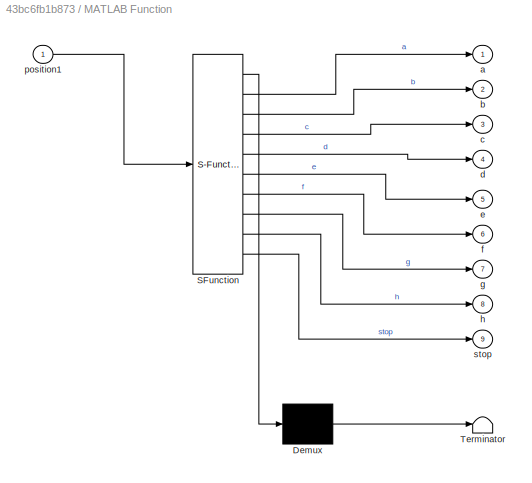
BLOCK [SubSystem] MATLAB Function
  ErrorFcn = Stateflow.Translate.translate
  PermitHierarchicalResolution = ExplicitOnly
  Ports = [1, 9]
  RequestExecContextInheritance = off
  SFBlockType = MATLAB Function
  TreatAsAtomicUnit = on
BLOCK [Demux] MATLAB Function/ Demux 
  Outputs = 1
  Ports = [1, 1]
BLOCK [S-Function] MATLAB Function/ SFunction 
  EnableBusSupport = on
  FunctionName = sf_sfun
  PortCounts = [1 10]
  Ports = [1, 10]
  SFcnIsStateOwnerBlock = off
  SFunctionDeploymentMode = off
  Tag = Stateflow S-Function 2
BLOCK [Terminator] MATLAB Function/ Terminator 
BLOCK [Outport] MATLAB Function/a
BLOCK [Outport] MATLAB Function/b
  Port = 2
BLOCK [Outport] MATLAB Function/c
  Port = 3
BLOCK [Outport] MATLAB Function/d
  Port = 4
BLOCK [Outport] MATLAB Function/e
  Port = 5
BLOCK [Outport] MATLAB Function/f
  Port = 6
BLOCK [Outport] MATLAB Function/g
  Port = 7
BLOCK [Outport] MATLAB Function/h
  Port = 8
BLOCK [Inport] MATLAB Function/position1
BLOCK [Outport] MATLAB Function/stop
  Port = 9
BLOCK [Gain] Multiply
  Gain = -1
BLOCK [Stop] Stop Simulation
BLOCK [Sum] Sum
  Inputs = |++
  Ports = [2, 1]
ANNOTATION (root): Command Conversion Block
ANNOTATION 8DOF_Robot: Contrain Rot
ANNOTATION 8DOF_Robot: smiData.RevoluteJoint(14).Rz.Pos
ANNOTATION 8DOF_Robot: smiData.RevoluteJoint(18).Rz.Pos
ANNOTATION 8DOF_Robot: smiData.RevoluteJoint(2).Rz.Pos
ANNOTATION 8DOF_Robot: smiData.RevoluteJoint(20).Rz.Pos
ANNOTATION 8DOF_Robot: smiData.RevoluteJoint(21).Rz.Pos
ANNOTATION 8DOF_Robot: smiData.RevoluteJoint(23).Rz.Pos
ANNOTATION 8DOF_Robot: smiData.RevoluteJoint(24).Rz.Pos
ANNOTATION 8DOF_Robot: smiData.RevoluteJoint(25).Rz.Pos
ANNOTATION 8DOF_Robot: smiData.RevoluteJoint(27).Rz.Pos ou -20 les 2 A6 et A5
ANNOTATION 8DOF_Robot: smiData.RevoluteJoint(29).Rz.Pos
ANNOTATION 8DOF_Robot: smiData.RevoluteJoint(3).Rz.Pos
ANNOTATION 8DOF_Robot: smiData.RevoluteJoint(30).Rz.Pos
ANNOTATION 8DOF_Robot: smiData.RevoluteJoint(33).Rz.Pos
ANNOTATION 8DOF_Robot: smiData.RevoluteJoint(35).Rz.Pos
ANNOTATION 8DOF_Robot: smiData.RevoluteJoint(36).Rz.Pos
ANNOTATION 8DOF_Robot: smiData.RevoluteJoint(38).Rz.Pos
ANNOTATION 8DOF_Robot: smiData.RevoluteJoint(39).Rz.Pos
ANNOTATION 8DOF_Robot: smiData.RevoluteJoint(4).Rz.Pos
ANNOTATION 8DOF_Robot: smiData.RevoluteJoint(41).Rz.Pos
ANNOTATION 8DOF_Robot: smiData.RevoluteJoint(42).Rz.Pos
ANNOTATION 8DOF_Robot: smiData.RevoluteJoint(43).Rz.Pos
ANNOTATION 8DOF_Robot: smiData.RevoluteJoint(44).Rz.Pos
ANNOTATION 8DOF_Robot: smiData.RevoluteJoint(5).Rz.Pos
ANNOTATION 8DOF_Robot: smiData.RevoluteJoint(6).Rz.Pos
ANNOTATION 8DOF_Robot: smiData.RevoluteJoint(7).Rz.Pos
LINE 8DOF_Robot/Effector_1_RIGID/Mux:1 -> 8DOF_Robot/Effector_1_RIGID/Display:1
LINE 8DOF_Robot/Effector_1_RIGID/PS-Simulink Converter1:1 -> 8DOF_Robot/Effector_1_RIGID/Mux:2
LINE 8DOF_Robot/Effector_1_RIGID/PS-Simulink Converter2:1 -> 8DOF_Robot/Effector_1_RIGID/Mux:3
LINE 8DOF_Robot/Effector_1_RIGID/PS-Simulink Converter3:1 -> 8DOF_Robot/Effector_1_RIGID/Mux:4
LINE 8DOF_Robot/Effector_1_RIGID/PS-Simulink Converter4:1 -> 8DOF_Robot/Effector_1_RIGID/Mux:5
LINE 8DOF_Robot/Effector_1_RIGID/PS-Simulink Converter:1 -> 8DOF_Robot/Effector_1_RIGID/Mux:1
LINE 8DOF_Robot/Input1:1 -> 8DOF_Robot/Simulink-PS Converter2:1
LINE 8DOF_Robot/Input2:1 -> 8DOF_Robot/Simulink-PS Converter:1
LINE 8DOF_Robot/Input3:1 -> 8DOF_Robot/Simulink-PS Converter5:1
LINE 8DOF_Robot/Input4:1 -> 8DOF_Robot/Simulink-PS Converter4:1
LINE 8DOF_Robot/Input5:1 -> 8DOF_Robot/Simulink-PS Converter6:1
LINE 8DOF_Robot/Input6:1 -> 8DOF_Robot/Simulink-PS Converter3:1
LINE 8DOF_Robot/Input7:1 -> 8DOF_Robot/Simulink-PS Converter1:1
LINE 8DOF_Robot/Input:1 -> 8DOF_Robot/Simulink-PS Converter7:1
LINE Constant3:1 -> Sum:2
LINE Constant4:1 -> Multiply:1
LINE MATLAB Function:1 -> 8DOF_Robot:1
LINE MATLAB Function:2 -> 8DOF_Robot:2
LINE MATLAB Function:3 -> 8DOF_Robot:3
LINE MATLAB Function:4 -> 8DOF_Robot:4
LINE MATLAB Function:5 -> 8DOF_Robot:5
LINE MATLAB Function:6 -> 8DOF_Robot:6
LINE MATLAB Function:7 -> 8DOF_Robot:7
LINE MATLAB Function:8 -> 8DOF_Robot:8
LINE MATLAB Function:9 -> Stop Simulation:1
LINE Multiply:1 -> Sum:1
LINE Sum:1 -> MATLAB Function:1
PLINE 8DOF_Robot/6-DOF Joint2:LConn1 -- 8DOF_Robot/Rigid Transform1:RConn1
PLINE 8DOF_Robot/6-DOF Joint2:RConn1 -- 8DOF_Robot/Effector_1_RIGID:LConn7
PLINE 8DOF_Robot/Base2JointBase:LConn1 -- 8DOF_Robot/Base_1_RIGID:RConn4
PLINE 8DOF_Robot/Base2JointBase:RConn1 -- 8DOF_Robot/BaseJoint_1_RIGID:LConn1
PLINE 8DOF_Robot/Base2JointBase_2:LConn1 -- 8DOF_Robot/Base_1_RIGID:RConn3
PLINE 8DOF_Robot/Base2JointBase_2:RConn1 -- 8DOF_Robot/BaseJoint_2_RIGID:LConn1
PLINE 8DOF_Robot/Base2JointBase_3:LConn1 -- 8DOF_Robot/Base_1_RIGID:RConn5
PLINE 8DOF_Robot/Base2JointBase_3:RConn1 -- 8DOF_Robot/BaseJoint_3_RIGID:LConn1
PLINE 8DOF_Robot/Base2JointBase_4:LConn1 -- 8DOF_Robot/Base_1_RIGID:RConn6
PLINE 8DOF_Robot/Base2JointBase_4:RConn1 -- 8DOF_Robot/BaseJoint_4_RIGID:LConn1
PLINE 8DOF_Robot/Base2JointBase_5:LConn1 -- 8DOF_Robot/Base_1_RIGID:RConn1
PLINE 8DOF_Robot/Base2JointBase_5:RConn1 -- 8DOF_Robot/BaseJoint_5_RIGID:LConn1
PLINE 8DOF_Robot/Base2JointBase_6:LConn1 -- 8DOF_Robot/Base_1_RIGID:RConn2
PLINE 8DOF_Robot/Base2JointBase_6:RConn1 -- 8DOF_Robot/BaseJoint_6_RIGID:LConn1
PLINE 8DOF_Robot/Base2JointBase_7:LConn1 -- 8DOF_Robot/Base_1_RIGID:RConn7
PLINE 8DOF_Robot/Base2JointBase_7:RConn1 -- 8DOF_Robot/BaseJoint_7_RIGID:LConn1
PLINE 8DOF_Robot/Base2JointBase_8:LConn1 -- 8DOF_Robot/Base_1_RIGID:RConn8
PLINE 8DOF_Robot/Base2JointBase_8:RConn1 -- 8DOF_Robot/BaseJoint_8_RIGID:LConn1
PLINE 8DOF_Robot/BaseJoint_1_RIGID/F1:RConn1 -- 8DOF_Robot/BaseJoint_1_RIGID/Transform1:RConn1
PLINE 8DOF_Robot/BaseJoint_1_RIGID/F:RConn1 -- 8DOF_Robot/BaseJoint_1_RIGID/Transform:RConn1
PNET net1: 8DOF_Robot/BaseJoint_1_RIGID/ReferenceFrame:RConn1 -- 8DOF_Robot/BaseJoint_1_RIGID/Solid:RConn1 -- 8DOF_Robot/BaseJoint_1_RIGID/Transform1:LConn1 -- 8DOF_Robot/BaseJoint_1_RIGID/Transform:LConn1
PLINE 8DOF_Robot/BaseJoint_1_RIGID:RConn1 -- 8DOF_Robot/JointBase2Slider:LConn1
PLINE 8DOF_Robot/BaseJoint_2_RIGID/F1:RConn1 -- 8DOF_Robot/BaseJoint_2_RIGID/Transform1:RConn1
PLINE 8DOF_Robot/BaseJoint_2_RIGID/F:RConn1 -- 8DOF_Robot/BaseJoint_2_RIGID/Transform:RConn1
PNET net2: 8DOF_Robot/BaseJoint_2_RIGID/ReferenceFrame:RConn1 -- 8DOF_Robot/BaseJoint_2_RIGID/Solid:RConn1 -- 8DOF_Robot/BaseJoint_2_RIGID/Transform1:LConn1 -- 8DOF_Robot/BaseJoint_2_RIGID/Transform:LConn1
PLINE 8DOF_Robot/BaseJoint_2_RIGID:RConn1 -- 8DOF_Robot/JointBase2Slider_2:LConn1
PLINE 8DOF_Robot/BaseJoint_3_RIGID/F1:RConn1 -- 8DOF_Robot/BaseJoint_3_RIGID/Transform1:RConn1
PLINE 8DOF_Robot/BaseJoint_3_RIGID/F:RConn1 -- 8DOF_Robot/BaseJoint_3_RIGID/Transform:RConn1
PNET net3: 8DOF_Robot/BaseJoint_3_RIGID/ReferenceFrame:RConn1 -- 8DOF_Robot/BaseJoint_3_RIGID/Solid:RConn1 -- 8DOF_Robot/BaseJoint_3_RIGID/Transform1:LConn1 -- 8DOF_Robot/BaseJoint_3_RIGID/Transform:LConn1
PLINE 8DOF_Robot/BaseJoint_3_RIGID:RConn1 -- 8DOF_Robot/JointBase2Slider_3:LConn1
PLINE 8DOF_Robot/BaseJoint_4_RIGID/F1:RConn1 -- 8DOF_Robot/BaseJoint_4_RIGID/Transform1:RConn1
PLINE 8DOF_Robot/BaseJoint_4_RIGID/F:RConn1 -- 8DOF_Robot/BaseJoint_4_RIGID/Transform:RConn1
PNET net4: 8DOF_Robot/BaseJoint_4_RIGID/ReferenceFrame:RConn1 -- 8DOF_Robot/BaseJoint_4_RIGID/Solid:RConn1 -- 8DOF_Robot/BaseJoint_4_RIGID/Transform1:LConn1 -- 8DOF_Robot/BaseJoint_4_RIGID/Transform:LConn1
PLINE 8DOF_Robot/BaseJoint_4_RIGID:RConn1 -- 8DOF_Robot/JointBase2Slider_4:LConn1
PLINE 8DOF_Robot/BaseJoint_5_RIGID/F1:RConn1 -- 8DOF_Robot/BaseJoint_5_RIGID/Transform1:RConn1
PLINE 8DOF_Robot/BaseJoint_5_RIGID/F:RConn1 -- 8DOF_Robot/BaseJoint_5_RIGID/Transform:RConn1
PNET net5: 8DOF_Robot/BaseJoint_5_RIGID/ReferenceFrame:RConn1 -- 8DOF_Robot/BaseJoint_5_RIGID/Solid:RConn1 -- 8DOF_Robot/BaseJoint_5_RIGID/Transform1:LConn1 -- 8DOF_Robot/BaseJoint_5_RIGID/Transform:LConn1
PLINE 8DOF_Robot/BaseJoint_5_RIGID:RConn1 -- 8DOF_Robot/JointBase2Slider_5:LConn1
PLINE 8DOF_Robot/BaseJoint_6_RIGID/F1:RConn1 -- 8DOF_Robot/BaseJoint_6_RIGID/Transform1:RConn1
PLINE 8DOF_Robot/BaseJoint_6_RIGID/F:RConn1 -- 8DOF_Robot/BaseJoint_6_RIGID/Transform:RConn1
PNET net6: 8DOF_Robot/BaseJoint_6_RIGID/ReferenceFrame:RConn1 -- 8DOF_Robot/BaseJoint_6_RIGID/Solid:RConn1 -- 8DOF_Robot/BaseJoint_6_RIGID/Transform1:LConn1 -- 8DOF_Robot/BaseJoint_6_RIGID/Transform:LConn1
PLINE 8DOF_Robot/BaseJoint_6_RIGID:RConn1 -- 8DOF_Robot/JointBase2Slider_6:LConn1
PLINE 8DOF_Robot/BaseJoint_7_RIGID/F1:RConn1 -- 8DOF_Robot/BaseJoint_7_RIGID/Transform1:RConn1
PLINE 8DOF_Robot/BaseJoint_7_RIGID/F:RConn1 -- 8DOF_Robot/BaseJoint_7_RIGID/Transform:RConn1
PNET net7: 8DOF_Robot/BaseJoint_7_RIGID/ReferenceFrame:RConn1 -- 8DOF_Robot/BaseJoint_7_RIGID/Solid:RConn1 -- 8DOF_Robot/BaseJoint_7_RIGID/Transform1:LConn1 -- 8DOF_Robot/BaseJoint_7_RIGID/Transform:LConn1
PLINE 8DOF_Robot/BaseJoint_7_RIGID:RConn1 -- 8DOF_Robot/JointBase2Slider_7:LConn1
PLINE 8DOF_Robot/BaseJoint_8_RIGID/F1:RConn1 -- 8DOF_Robot/BaseJoint_8_RIGID/Transform1:RConn1
PLINE 8DOF_Robot/BaseJoint_8_RIGID/F:RConn1 -- 8DOF_Robot/BaseJoint_8_RIGID/Transform:RConn1
PNET net8: 8DOF_Robot/BaseJoint_8_RIGID/ReferenceFrame:RConn1 -- 8DOF_Robot/BaseJoint_8_RIGID/Solid:RConn1 -- 8DOF_Robot/BaseJoint_8_RIGID/Transform1:LConn1 -- 8DOF_Robot/BaseJoint_8_RIGID/Transform:LConn1
PLINE 8DOF_Robot/BaseJoint_8_RIGID:RConn1 -- 8DOF_Robot/JointBase2Slider_8:LConn1
PLINE 8DOF_Robot/Base_1_RIGID/F1:RConn1 -- 8DOF_Robot/Base_1_RIGID/Transform1:RConn1
PLINE 8DOF_Robot/Base_1_RIGID/F2:RConn1 -- 8DOF_Robot/Base_1_RIGID/Transform2:RConn1
PLINE 8DOF_Robot/Base_1_RIGID/F3:RConn1 -- 8DOF_Robot/Base_1_RIGID/Transform3:RConn1
PLINE 8DOF_Robot/Base_1_RIGID/F4:RConn1 -- 8DOF_Robot/Base_1_RIGID/Transform4:RConn1
PLINE 8DOF_Robot/Base_1_RIGID/F5:RConn1 -- 8DOF_Robot/Base_1_RIGID/Transform5:RConn1
PLINE 8DOF_Robot/Base_1_RIGID/F6:RConn1 -- 8DOF_Robot/Base_1_RIGID/Transform6:RConn1
PLINE 8DOF_Robot/Base_1_RIGID/F7:RConn1 -- 8DOF_Robot/Base_1_RIGID/Transform7:RConn1
PNET net9: 8DOF_Robot/Base_1_RIGID/F8:RConn1 -- 8DOF_Robot/Base_1_RIGID/F9:RConn1 -- 8DOF_Robot/Base_1_RIGID/ReferenceFrame:RConn1 -- 8DOF_Robot/Base_1_RIGID/Solid:RConn1 -- 8DOF_Robot/Base_1_RIGID/Transform1:LConn1 -- 8DOF_Robot/Base_1_RIGID/Transform2:LConn1 -- 8DOF_Robot/Base_1_RIGID/Transform3:LConn1 -- 8DOF_Robot/Base_1_RIGID/Transform4:LConn1 -- 8DOF_Robot/Base_1_RIGID/Transform5:LConn1 -- 8DOF_Robot/Base_1_RIGID/Transform6:LConn1 -- 8DOF_Robot/Base_1_RIGID/Transform7:LConn1 -- 8DOF_Robot/Base_1_RIGID/Transform:LConn1
PLINE 8DOF_Robot/Base_1_RIGID/F:RConn1 -- 8DOF_Robot/Base_1_RIGID/Transform:RConn1
PLINE 8DOF_Robot/Base_1_RIGID:LConn1 -- 8DOF_Robot/Transform:RConn1
PLINE 8DOF_Robot/Base_1_RIGID:LConn2 -- 8DOF_Robot/Rigid Transform1:LConn1
PLINE 8DOF_Robot/Effector_1_RIGID/F1:RConn1 -- 8DOF_Robot/Effector_1_RIGID/Transform1:RConn1
PLINE 8DOF_Robot/Effector_1_RIGID/F2:RConn1 -- 8DOF_Robot/Effector_1_RIGID/Transform2:RConn1
PLINE 8DOF_Robot/Effector_1_RIGID/F3:RConn1 -- 8DOF_Robot/Effector_1_RIGID/Transform3:RConn1
PLINE 8DOF_Robot/Effector_1_RIGID/F4:RConn1 -- 8DOF_Robot/Effector_1_RIGID/Transform4:RConn1
PLINE 8DOF_Robot/Effector_1_RIGID/F5:RConn1 -- 8DOF_Robot/Effector_1_RIGID/Transform5:RConn1
PNET net10: 8DOF_Robot/Effector_1_RIGID/F6:RConn1 -- 8DOF_Robot/Effector_1_RIGID/ReferenceFrame:RConn1 -- 8DOF_Robot/Effector_1_RIGID/Solid:RConn1 -- 8DOF_Robot/Effector_1_RIGID/Transform1:LConn1 -- 8DOF_Robot/Effector_1_RIGID/Transform2:LConn1 -- 8DOF_Robot/Effector_1_RIGID/Transform3:LConn1 -- 8DOF_Robot/Effector_1_RIGID/Transform4:LConn1 -- 8DOF_Robot/Effector_1_RIGID/Transform5:LConn1 -- 8DOF_Robot/Effector_1_RIGID/Transform:LConn1
PLINE 8DOF_Robot/Effector_1_RIGID/F:RConn1 -- 8DOF_Robot/Effector_1_RIGID/Transform:RConn1
PLINE 8DOF_Robot/Effector_1_RIGID/PS-Simulink Converter1:LConn1 -- 8DOF_Robot/Effector_1_RIGID/Transform Sensor:RConn3
PLINE 8DOF_Robot/Effector_1_RIGID/PS-Simulink Converter2:LConn1 -- 8DOF_Robot/Effector_1_RIGID/Transform Sensor:RConn4
PLINE 8DOF_Robot/Effector_1_RIGID/PS-Simulink Converter3:LConn1 -- 8DOF_Robot/Effector_1_RIGID/Transform Sensor:RConn5
PLINE 8DOF_Robot/Effector_1_RIGID/PS-Simulink Converter4:LConn1 -- 8DOF_Robot/Effector_1_RIGID/Transform Sensor:RConn6
PLINE 8DOF_Robot/Effector_1_RIGID/PS-Simulink Converter:LConn1 -- 8DOF_Robot/Effector_1_RIGID/Transform Sensor:RConn2
PLINE 8DOF_Robot/Effector_1_RIGID:LConn1 -- 8DOF_Robot/Joint_C2Effector_5:RConn1
PLINE 8DOF_Robot/Effector_1_RIGID:LConn2 -- 8DOF_Robot/Joint_C2Effector_2:RConn1
PLINE 8DOF_Robot/Effector_1_RIGID:LConn3 -- 8DOF_Robot/Joint_C2Effector:RConn1
PLINE 8DOF_Robot/Effector_1_RIGID:LConn4 -- 8DOF_Robot/Joint_C2Effector_3:RConn1
PLINE 8DOF_Robot/Effector_1_RIGID:LConn5 -- 8DOF_Robot/Joint_C2Effector_4:RConn1
PLINE 8DOF_Robot/Effector_1_RIGID:LConn6 -- 8DOF_Robot/Joint_C2Effector_6:RConn1
PLINE 8DOF_Robot/JointBase2Slider:RConn1 -- 8DOF_Robot/Slider_1:LConn1
PLINE 8DOF_Robot/JointBase2Slider_2:RConn1 -- 8DOF_Robot/Slider_2:LConn1
PLINE 8DOF_Robot/JointBase2Slider_3:RConn1 -- 8DOF_Robot/Slider_3:LConn1
PLINE 8DOF_Robot/JointBase2Slider_4:RConn1 -- 8DOF_Robot/Slider_4:LConn1
PLINE 8DOF_Robot/JointBase2Slider_5:RConn1 -- 8DOF_Robot/Slider_5:LConn1
PLINE 8DOF_Robot/JointBase2Slider_6:RConn1 -- 8DOF_Robot/Slider_6:LConn1
PLINE 8DOF_Robot/JointBase2Slider_7:RConn1 -- 8DOF_Robot/Slider_7:LConn1
PLINE 8DOF_Robot/JointBase2Slider_8:RConn1 -- 8DOF_Robot/Slider_8:LConn1
PLINE 8DOF_Robot/Joint_A2Joint_B:LConn1 -- 8DOF_Robot/Joint_A_1_RIGID:RConn1
PLINE 8DOF_Robot/Joint_A2Joint_B:RConn1 -- 8DOF_Robot/Joint_B_1_RIGID:LConn1
PLINE 8DOF_Robot/Joint_A2Joint_B_2:LConn1 -- 8DOF_Robot/Joint_A_2_RIGID:RConn1
PLINE 8DOF_Robot/Joint_A2Joint_B_2:RConn1 -- 8DOF_Robot/Joint_B_2_RIGID:LConn1
PLINE 8DOF_Robot/Joint_A2Joint_B_3:LConn1 -- 8DOF_Robot/Joint_A_3_RIGID:RConn1
PLINE 8DOF_Robot/Joint_A2Joint_B_3:RConn1 -- 8DOF_Robot/Joint_B_3_RIGID:LConn1
PLINE 8DOF_Robot/Joint_A2Joint_B_4:LConn1 -- 8DOF_Robot/Joint_A_4_RIGID:RConn1
PLINE 8DOF_Robot/Joint_A2Joint_B_4:RConn1 -- 8DOF_Robot/Joint_B_4_RIGID:LConn1
PLINE 8DOF_Robot/Joint_A2Joint_B_5:LConn1 -- 8DOF_Robot/Joint_A_5_RIGID:RConn1
PLINE 8DOF_Robot/Joint_A2Joint_B_5:RConn1 -- 8DOF_Robot/Joint_B_5_RIGID:LConn1
PLINE 8DOF_Robot/Joint_A2Joint_B_6:LConn1 -- 8DOF_Robot/Joint_A_6_RIGID:RConn1
PLINE 8DOF_Robot/Joint_A2Joint_B_6:RConn1 -- 8DOF_Robot/Joint_B_6_RIGID:LConn1
PLINE 8DOF_Robot/Joint_A_1_RIGID/F1:RConn1 -- 8DOF_Robot/Joint_A_1_RIGID/Transform1:RConn1
PLINE 8DOF_Robot/Joint_A_1_RIGID/F:RConn1 -- 8DOF_Robot/Joint_A_1_RIGID/Transform:RConn1
PNET net11: 8DOF_Robot/Joint_A_1_RIGID/ReferenceFrame:RConn1 -- 8DOF_Robot/Joint_A_1_RIGID/Solid:RConn1 -- 8DOF_Robot/Joint_A_1_RIGID/Transform1:LConn1 -- 8DOF_Robot/Joint_A_1_RIGID/Transform:LConn1
PLINE 8DOF_Robot/Joint_A_1_RIGID:LConn1 -- 8DOF_Robot/Stem2Joint_A_1:RConn1
PLINE 8DOF_Robot/Joint_A_2_RIGID/F1:RConn1 -- 8DOF_Robot/Joint_A_2_RIGID/Transform1:RConn1
PLINE 8DOF_Robot/Joint_A_2_RIGID/F:RConn1 -- 8DOF_Robot/Joint_A_2_RIGID/Transform:RConn1
PNET net12: 8DOF_Robot/Joint_A_2_RIGID/ReferenceFrame:RConn1 -- 8DOF_Robot/Joint_A_2_RIGID/Solid:RConn1 -- 8DOF_Robot/Joint_A_2_RIGID/Transform1:LConn1 -- 8DOF_Robot/Joint_A_2_RIGID/Transform:LConn1
PLINE 8DOF_Robot/Joint_A_2_RIGID:LConn1 -- 8DOF_Robot/Stem2Joint_A_2:RConn1
PLINE 8DOF_Robot/Joint_A_3_RIGID/F1:RConn1 -- 8DOF_Robot/Joint_A_3_RIGID/Transform1:RConn1
PLINE 8DOF_Robot/Joint_A_3_RIGID/F:RConn1 -- 8DOF_Robot/Joint_A_3_RIGID/Transform:RConn1
PNET net13: 8DOF_Robot/Joint_A_3_RIGID/ReferenceFrame:RConn1 -- 8DOF_Robot/Joint_A_3_RIGID/Solid:RConn1 -- 8DOF_Robot/Joint_A_3_RIGID/Transform1:LConn1 -- 8DOF_Robot/Joint_A_3_RIGID/Transform:LConn1
PLINE 8DOF_Robot/Joint_A_3_RIGID:LConn1 -- 8DOF_Robot/Stem2Joint_A_3:RConn1
PLINE 8DOF_Robot/Joint_A_4_RIGID/F1:RConn1 -- 8DOF_Robot/Joint_A_4_RIGID/Transform1:RConn1
PLINE 8DOF_Robot/Joint_A_4_RIGID/F:RConn1 -- 8DOF_Robot/Joint_A_4_RIGID/Transform:RConn1
PNET net14: 8DOF_Robot/Joint_A_4_RIGID/ReferenceFrame:RConn1 -- 8DOF_Robot/Joint_A_4_RIGID/Solid:RConn1 -- 8DOF_Robot/Joint_A_4_RIGID/Transform1:LConn1 -- 8DOF_Robot/Joint_A_4_RIGID/Transform:LConn1
PLINE 8DOF_Robot/Joint_A_4_RIGID:LConn1 -- 8DOF_Robot/Stem2Joint_A_4:RConn1
PLINE 8DOF_Robot/Joint_A_5_RIGID/F1:RConn1 -- 8DOF_Robot/Joint_A_5_RIGID/Transform1:RConn1
PLINE 8DOF_Robot/Joint_A_5_RIGID/F:RConn1 -- 8DOF_Robot/Joint_A_5_RIGID/Transform:RConn1
PNET net15: 8DOF_Robot/Joint_A_5_RIGID/ReferenceFrame:RConn1 -- 8DOF_Robot/Joint_A_5_RIGID/Solid:RConn1 -- 8DOF_Robot/Joint_A_5_RIGID/Transform1:LConn1 -- 8DOF_Robot/Joint_A_5_RIGID/Transform:LConn1
PLINE 8DOF_Robot/Joint_A_5_RIGID:LConn1 -- 8DOF_Robot/Redondante_Housing2Joint_A:RConn1
PLINE 8DOF_Robot/Joint_A_6_RIGID/F1:RConn1 -- 8DOF_Robot/Joint_A_6_RIGID/Transform1:RConn1
PLINE 8DOF_Robot/Joint_A_6_RIGID/F:RConn1 -- 8DOF_Robot/Joint_A_6_RIGID/Transform:RConn1
PNET net16: 8DOF_Robot/Joint_A_6_RIGID/ReferenceFrame:RConn1 -- 8DOF_Robot/Joint_A_6_RIGID/Solid:RConn1 -- 8DOF_Robot/Joint_A_6_RIGID/Transform1:LConn1 -- 8DOF_Robot/Joint_A_6_RIGID/Transform:LConn1
PLINE 8DOF_Robot/Joint_A_6_RIGID:LConn1 -- 8DOF_Robot/Redondante_Housing2Joint_A_3:RConn1
PLINE 8DOF_Robot/Joint_B2Joint_C:LConn1 -- 8DOF_Robot/Joint_B_1_RIGID:RConn1
PLINE 8DOF_Robot/Joint_B2Joint_C:RConn1 -- 8DOF_Robot/Joint_C_1_RIGID:LConn1
PLINE 8DOF_Robot/Joint_B2Joint_C_2:LConn1 -- 8DOF_Robot/Joint_B_2_RIGID:RConn1
PLINE 8DOF_Robot/Joint_B2Joint_C_2:RConn1 -- 8DOF_Robot/Joint_C_2_RIGID:LConn1
PLINE 8DOF_Robot/Joint_B2Joint_C_3:LConn1 -- 8DOF_Robot/Joint_B_3_RIGID:RConn1
PLINE 8DOF_Robot/Joint_B2Joint_C_3:RConn1 -- 8DOF_Robot/Joint_C_3_RIGID:LConn1
PLINE 8DOF_Robot/Joint_B2Joint_C_4:LConn1 -- 8DOF_Robot/Joint_B_4_RIGID:RConn1
PLINE 8DOF_Robot/Joint_B2Joint_C_4:RConn1 -- 8DOF_Robot/Joint_C_4_RIGID:LConn1
PLINE 8DOF_Robot/Joint_B2Joint_C_5:LConn1 -- 8DOF_Robot/Joint_B_5_RIGID:RConn1
PLINE 8DOF_Robot/Joint_B2Joint_C_5:RConn1 -- 8DOF_Robot/Joint_C_5_RIGID:LConn1
PLINE 8DOF_Robot/Joint_B2Joint_C_6:LConn1 -- 8DOF_Robot/Joint_B_6_RIGID:RConn1
PLINE 8DOF_Robot/Joint_B2Joint_C_6:RConn1 -- 8DOF_Robot/Joint_C_6_RIGID:LConn1
PLINE 8DOF_Robot/Joint_B_1_RIGID/F1:RConn1 -- 8DOF_Robot/Joint_B_1_RIGID/Transform1:RConn1
PLINE 8DOF_Robot/Joint_B_1_RIGID/F:RConn1 -- 8DOF_Robot/Joint_B_1_RIGID/Transform:RConn1
PNET net17: 8DOF_Robot/Joint_B_1_RIGID/ReferenceFrame:RConn1 -- 8DOF_Robot/Joint_B_1_RIGID/Solid:RConn1 -- 8DOF_Robot/Joint_B_1_RIGID/Transform1:LConn1 -- 8DOF_Robot/Joint_B_1_RIGID/Transform:LConn1
PLINE 8DOF_Robot/Joint_B_2_RIGID/F1:RConn1 -- 8DOF_Robot/Joint_B_2_RIGID/Transform1:RConn1
PLINE 8DOF_Robot/Joint_B_2_RIGID/F:RConn1 -- 8DOF_Robot/Joint_B_2_RIGID/Transform:RConn1
PNET net18: 8DOF_Robot/Joint_B_2_RIGID/ReferenceFrame:RConn1 -- 8DOF_Robot/Joint_B_2_RIGID/Solid:RConn1 -- 8DOF_Robot/Joint_B_2_RIGID/Transform1:LConn1 -- 8DOF_Robot/Joint_B_2_RIGID/Transform:LConn1
PLINE 8DOF_Robot/Joint_B_3_RIGID/F1:RConn1 -- 8DOF_Robot/Joint_B_3_RIGID/Transform1:RConn1
PLINE 8DOF_Robot/Joint_B_3_RIGID/F:RConn1 -- 8DOF_Robot/Joint_B_3_RIGID/Transform:RConn1
PNET net19: 8DOF_Robot/Joint_B_3_RIGID/ReferenceFrame:RConn1 -- 8DOF_Robot/Joint_B_3_RIGID/Solid:RConn1 -- 8DOF_Robot/Joint_B_3_RIGID/Transform1:LConn1 -- 8DOF_Robot/Joint_B_3_RIGID/Transform:LConn1
PLINE 8DOF_Robot/Joint_B_4_RIGID/F1:RConn1 -- 8DOF_Robot/Joint_B_4_RIGID/Transform1:RConn1
PLINE 8DOF_Robot/Joint_B_4_RIGID/F:RConn1 -- 8DOF_Robot/Joint_B_4_RIGID/Transform:RConn1
PNET net20: 8DOF_Robot/Joint_B_4_RIGID/ReferenceFrame:RConn1 -- 8DOF_Robot/Joint_B_4_RIGID/Solid:RConn1 -- 8DOF_Robot/Joint_B_4_RIGID/Transform1:LConn1 -- 8DOF_Robot/Joint_B_4_RIGID/Transform:LConn1
PLINE 8DOF_Robot/Joint_B_5_RIGID/F1:RConn1 -- 8DOF_Robot/Joint_B_5_RIGID/Transform1:RConn1
PLINE 8DOF_Robot/Joint_B_5_RIGID/F:RConn1 -- 8DOF_Robot/Joint_B_5_RIGID/Transform:RConn1
PNET net21: 8DOF_Robot/Joint_B_5_RIGID/ReferenceFrame:RConn1 -- 8DOF_Robot/Joint_B_5_RIGID/Solid:RConn1 -- 8DOF_Robot/Joint_B_5_RIGID/Transform1:LConn1 -- 8DOF_Robot/Joint_B_5_RIGID/Transform:LConn1
PLINE 8DOF_Robot/Joint_B_6_RIGID/F1:RConn1 -- 8DOF_Robot/Joint_B_6_RIGID/Transform1:RConn1
PLINE 8DOF_Robot/Joint_B_6_RIGID/F:RConn1 -- 8DOF_Robot/Joint_B_6_RIGID/Transform:RConn1
PNET net22: 8DOF_Robot/Joint_B_6_RIGID/ReferenceFrame:RConn1 -- 8DOF_Robot/Joint_B_6_RIGID/Solid:RConn1 -- 8DOF_Robot/Joint_B_6_RIGID/Transform1:LConn1 -- 8DOF_Robot/Joint_B_6_RIGID/Transform:LConn1
PLINE 8DOF_Robot/Joint_C2Effector:LConn1 -- 8DOF_Robot/Joint_C_1_RIGID:RConn1
PLINE 8DOF_Robot/Joint_C2Effector_2:LConn1 -- 8DOF_Robot/Joint_C_2_RIGID:RConn1
PLINE 8DOF_Robot/Joint_C2Effector_3:LConn1 -- 8DOF_Robot/Joint_C_3_RIGID:RConn1
PLINE 8DOF_Robot/Joint_C2Effector_4:LConn1 -- 8DOF_Robot/Joint_C_4_RIGID:RConn1
PLINE 8DOF_Robot/Joint_C2Effector_5:LConn1 -- 8DOF_Robot/Joint_C_5_RIGID:RConn1
PLINE 8DOF_Robot/Joint_C2Effector_6:LConn1 -- 8DOF_Robot/Joint_C_6_RIGID:RConn1
PLINE 8DOF_Robot/Joint_C_1_RIGID/F1:RConn1 -- 8DOF_Robot/Joint_C_1_RIGID/Transform1:RConn1
PLINE 8DOF_Robot/Joint_C_1_RIGID/F:RConn1 -- 8DOF_Robot/Joint_C_1_RIGID/Transform:RConn1
PNET net23: 8DOF_Robot/Joint_C_1_RIGID/ReferenceFrame:RConn1 -- 8DOF_Robot/Joint_C_1_RIGID/Solid:RConn1 -- 8DOF_Robot/Joint_C_1_RIGID/Transform1:LConn1 -- 8DOF_Robot/Joint_C_1_RIGID/Transform:LConn1
PLINE 8DOF_Robot/Joint_C_2_RIGID/F1:RConn1 -- 8DOF_Robot/Joint_C_2_RIGID/Transform1:RConn1
PLINE 8DOF_Robot/Joint_C_2_RIGID/F:RConn1 -- 8DOF_Robot/Joint_C_2_RIGID/Transform:RConn1
PNET net24: 8DOF_Robot/Joint_C_2_RIGID/ReferenceFrame:RConn1 -- 8DOF_Robot/Joint_C_2_RIGID/Solid:RConn1 -- 8DOF_Robot/Joint_C_2_RIGID/Transform1:LConn1 -- 8DOF_Robot/Joint_C_2_RIGID/Transform:LConn1
PLINE 8DOF_Robot/Joint_C_3_RIGID/F1:RConn1 -- 8DOF_Robot/Joint_C_3_RIGID/Transform1:RConn1
PLINE 8DOF_Robot/Joint_C_3_RIGID/F:RConn1 -- 8DOF_Robot/Joint_C_3_RIGID/Transform:RConn1
PNET net25: 8DOF_Robot/Joint_C_3_RIGID/ReferenceFrame:RConn1 -- 8DOF_Robot/Joint_C_3_RIGID/Solid:RConn1 -- 8DOF_Robot/Joint_C_3_RIGID/Transform1:LConn1 -- 8DOF_Robot/Joint_C_3_RIGID/Transform:LConn1
PLINE 8DOF_Robot/Joint_C_4_RIGID/F1:RConn1 -- 8DOF_Robot/Joint_C_4_RIGID/Transform1:RConn1
PLINE 8DOF_Robot/Joint_C_4_RIGID/F:RConn1 -- 8DOF_Robot/Joint_C_4_RIGID/Transform:RConn1
PNET net26: 8DOF_Robot/Joint_C_4_RIGID/ReferenceFrame:RConn1 -- 8DOF_Robot/Joint_C_4_RIGID/Solid:RConn1 -- 8DOF_Robot/Joint_C_4_RIGID/Transform1:LConn1 -- 8DOF_Robot/Joint_C_4_RIGID/Transform:LConn1
PLINE 8DOF_Robot/Joint_C_5_RIGID/F1:RConn1 -- 8DOF_Robot/Joint_C_5_RIGID/Transform1:RConn1
PLINE 8DOF_Robot/Joint_C_5_RIGID/F:RConn1 -- 8DOF_Robot/Joint_C_5_RIGID/Transform:RConn1
PNET net27: 8DOF_Robot/Joint_C_5_RIGID/ReferenceFrame:RConn1 -- 8DOF_Robot/Joint_C_5_RIGID/Solid:RConn1 -- 8DOF_Robot/Joint_C_5_RIGID/Transform1:LConn1 -- 8DOF_Robot/Joint_C_5_RIGID/Transform:LConn1
PLINE 8DOF_Robot/Joint_C_6_RIGID/F1:RConn1 -- 8DOF_Robot/Joint_C_6_RIGID/Transform1:RConn1
PLINE 8DOF_Robot/Joint_C_6_RIGID/F:RConn1 -- 8DOF_Robot/Joint_C_6_RIGID/Transform:RConn1
PNET net28: 8DOF_Robot/Joint_C_6_RIGID/ReferenceFrame:RConn1 -- 8DOF_Robot/Joint_C_6_RIGID/Solid:RConn1 -- 8DOF_Robot/Joint_C_6_RIGID/Transform1:LConn1 -- 8DOF_Robot/Joint_C_6_RIGID/Transform:LConn1
PNET net29: 8DOF_Robot/MechanismConfiguration:RConn1 -- 8DOF_Robot/Solver Configuration:RConn1 -- 8DOF_Robot/Transform:LConn1 -- 8DOF_Robot/World:RConn1
PLINE 8DOF_Robot/Redondante_Housing2Joint_A:LConn1 -- 8DOF_Robot/Redondante_Housing_1_RIGID1:RConn1
PLINE 8DOF_Robot/Redondante_Housing2Joint_A_3:LConn1 -- 8DOF_Robot/Redondante_Housing_2_RIGID:RConn1
PLINE 8DOF_Robot/Redondante_Housing_1_RIGID1/F1:RConn1 -- 8DOF_Robot/Redondante_Housing_1_RIGID1/Transform1:RConn1
PLINE 8DOF_Robot/Redondante_Housing_1_RIGID1/F2:RConn1 -- 8DOF_Robot/Redondante_Housing_1_RIGID1/Transform2:RConn1
PLINE 8DOF_Robot/Redondante_Housing_1_RIGID1/F:RConn1 -- 8DOF_Robot/Redondante_Housing_1_RIGID1/Transform:RConn1
PNET net30: 8DOF_Robot/Redondante_Housing_1_RIGID1/ReferenceFrame:RConn1 -- 8DOF_Robot/Redondante_Housing_1_RIGID1/Solid:RConn1 -- 8DOF_Robot/Redondante_Housing_1_RIGID1/Transform1:LConn1 -- 8DOF_Robot/Redondante_Housing_1_RIGID1/Transform2:LConn1 -- 8DOF_Robot/Redondante_Housing_1_RIGID1/Transform:LConn1
PLINE 8DOF_Robot/Redondante_Housing_1_RIGID1:LConn1 -- 8DOF_Robot/Stem2Redondante_Housing_1:RConn1
PLINE 8DOF_Robot/Redondante_Housing_1_RIGID1:LConn2 -- 8DOF_Robot/Stem2Redondante_Housing1:RConn1
PLINE 8DOF_Robot/Redondante_Housing_2_RIGID/F1:RConn1 -- 8DOF_Robot/Redondante_Housing_2_RIGID/Transform1:RConn1
PLINE 8DOF_Robot/Redondante_Housing_2_RIGID/F2:RConn1 -- 8DOF_Robot/Redondante_Housing_2_RIGID/Transform2:RConn1
PLINE 8DOF_Robot/Redondante_Housing_2_RIGID/F:RConn1 -- 8DOF_Robot/Redondante_Housing_2_RIGID/Transform:RConn1
PNET net31: 8DOF_Robot/Redondante_Housing_2_RIGID/ReferenceFrame:RConn1 -- 8DOF_Robot/Redondante_Housing_2_RIGID/Solid:RConn1 -- 8DOF_Robot/Redondante_Housing_2_RIGID/Transform1:LConn1 -- 8DOF_Robot/Redondante_Housing_2_RIGID/Transform2:LConn1 -- 8DOF_Robot/Redondante_Housing_2_RIGID/Transform:LConn1
PLINE 8DOF_Robot/Redondante_Housing_2_RIGID:LConn1 -- 8DOF_Robot/Stem2Redondante_Housing_3:RConn1
PLINE 8DOF_Robot/Redondante_Housing_2_RIGID:LConn2 -- 8DOF_Robot/Stem2Redondante_Housing_4:RConn1
PLINE 8DOF_Robot/Simulink-PS Converter1:RConn1 -- 8DOF_Robot/Slider2Stem_2:LConn2
PLINE 8DOF_Robot/Simulink-PS Converter2:RConn1 -- 8DOF_Robot/Slider2Stem_7:LConn2
PLINE 8DOF_Robot/Simulink-PS Converter3:RConn1 -- 8DOF_Robot/Slider2Stem_1:LConn2
PLINE 8DOF_Robot/Simulink-PS Converter4:RConn1 -- 8DOF_Robot/Slider2Stem_3:LConn2
PLINE 8DOF_Robot/Simulink-PS Converter5:RConn1 -- 8DOF_Robot/Slider2Stem_5:LConn2
PLINE 8DOF_Robot/Simulink-PS Converter6:RConn1 -- 8DOF_Robot/Slider2Stem_4:LConn2
PLINE 8DOF_Robot/Simulink-PS Converter7:RConn1 -- 8DOF_Robot/Slider2Stem_8:LConn2
PLINE 8DOF_Robot/Simulink-PS Converter:RConn1 -- 8DOF_Robot/Slider2Stem_6:LConn2
PLINE 8DOF_Robot/Slider2Stem_1:LConn1 -- 8DOF_Robot/Slider_1:RConn1
PLINE 8DOF_Robot/Slider2Stem_1:RConn1 -- 8DOF_Robot/Stem_ASBLY_NR_1:LConn1
PLINE 8DOF_Robot/Slider2Stem_2:LConn1 -- 8DOF_Robot/Slider_2:RConn1
PLINE 8DOF_Robot/Slider2Stem_2:RConn1 -- 8DOF_Robot/Stem_ASBLY_NR_2:LConn1
PLINE 8DOF_Robot/Slider2Stem_3:LConn1 -- 8DOF_Robot/Slider_3:RConn1
PLINE 8DOF_Robot/Slider2Stem_3:RConn1 -- 8DOF_Robot/Stem_ASBLY_NR_3:LConn1
PLINE 8DOF_Robot/Slider2Stem_4:LConn1 -- 8DOF_Robot/Slider_4:RConn1
PLINE 8DOF_Robot/Slider2Stem_4:RConn1 -- 8DOF_Robot/Stem_ASBLY_NR_4:LConn1
PLINE 8DOF_Robot/Slider2Stem_5:LConn1 -- 8DOF_Robot/Slider_5:RConn1
PLINE 8DOF_Robot/Slider2Stem_5:RConn1 -- 8DOF_Robot/Stem_ASBLY_Big_3:LConn1
PLINE 8DOF_Robot/Slider2Stem_6:LConn1 -- 8DOF_Robot/Slider_6:RConn1
PLINE 8DOF_Robot/Slider2Stem_6:RConn1 -- 8DOF_Robot/Stem_ASBLY_Little_3:LConn1
PLINE 8DOF_Robot/Slider2Stem_7:LConn1 -- 8DOF_Robot/Slider_7:RConn1
PLINE 8DOF_Robot/Slider2Stem_7:RConn1 -- 8DOF_Robot/Stem_ASBLY_Little_2:LConn1
PLINE 8DOF_Robot/Slider2Stem_8:LConn1 -- 8DOF_Robot/Slider_8:RConn1
PLINE 8DOF_Robot/Slider2Stem_8:RConn1 -- 8DOF_Robot/Stem_ASBLY_Big_2:LConn1
PLINE 8DOF_Robot/Slider_1/Extension_Bloc_1/Allu_Extru_Square_1_RIGID/F1:RConn1 -- 8DOF_Robot/Slider_1/Extension_Bloc_1/Allu_Extru_Square_1_RIGID/Transform1:RConn1
PNET net32: 8DOF_Robot/Slider_1/Extension_Bloc_1/Allu_Extru_Square_1_RIGID/F2:RConn1 -- 8DOF_Robot/Slider_1/Extension_Bloc_1/Allu_Extru_Square_1_RIGID/ReferenceFrame:RConn1 -- 8DOF_Robot/Slider_1/Extension_Bloc_1/Allu_Extru_Square_1_RIGID/Solid:RConn1 -- 8DOF_Robot/Slider_1/Extension_Bloc_1/Allu_Extru_Square_1_RIGID/Transform1:LConn1 -- 8DOF_Robot/Slider_1/Extension_Bloc_1/Allu_Extru_Square_1_RIGID/Transform:LConn1
PLINE 8DOF_Robot/Slider_1/Extension_Bloc_1/Allu_Extru_Square_1_RIGID/F:RConn1 -- 8DOF_Robot/Slider_1/Extension_Bloc_1/Allu_Extru_Square_1_RIGID/Transform:RConn1
PLINE 8DOF_Robot/Slider_1/Extension_Bloc_1/Allu_Extru_Square_1_RIGID:LConn1 -- 8DOF_Robot/Slider_1/Extension_Bloc_1/Base_Joint_Fixation_1_RIGID:LConn2
PLINE 8DOF_Robot/Slider_1/Extension_Bloc_1/Allu_Extru_Square_1_RIGID:LConn2 -- 8DOF_Robot/Slider_1/Extension_Bloc_1/Transform:RConn1
PLINE 8DOF_Robot/Slider_1/Extension_Bloc_1/Allu_Extru_Square_1_RIGID:LConn3 -- 8DOF_Robot/Slider_1/Extension_Bloc_1/Stator_Fixation_SSCP_1_RIGID:LConn1
PLINE 8DOF_Robot/Slider_1/Extension_Bloc_1/Base_Joint_Fixation_1_RIGID/F1:RConn1 -- 8DOF_Robot/Slider_1/Extension_Bloc_1/Base_Joint_Fixation_1_RIGID/Transform1:RConn1
PLINE 8DOF_Robot/Slider_1/Extension_Bloc_1/Base_Joint_Fixation_1_RIGID/F:RConn1 -- 8DOF_Robot/Slider_1/Extension_Bloc_1/Base_Joint_Fixation_1_RIGID/Transform:RConn1
PNET net33: 8DOF_Robot/Slider_1/Extension_Bloc_1/Base_Joint_Fixation_1_RIGID/ReferenceFrame:RConn1 -- 8DOF_Robot/Slider_1/Extension_Bloc_1/Base_Joint_Fixation_1_RIGID/Solid:RConn1 -- 8DOF_Robot/Slider_1/Extension_Bloc_1/Base_Joint_Fixation_1_RIGID/Transform1:LConn1 -- 8DOF_Robot/Slider_1/Extension_Bloc_1/Base_Joint_Fixation_1_RIGID/Transform:LConn1
PLINE 8DOF_Robot/Slider_1/Extension_Bloc_1/Base_Joint_Fixation_1_RIGID:LConn1 -- 8DOF_Robot/Slider_1/Extension_Bloc_1/F1:RConn1
PLINE 8DOF_Robot/Slider_1/Extension_Bloc_1/F:RConn1 -- 8DOF_Robot/Slider_1/Extension_Bloc_1/Stator_Fixation_SSCP_1_RIGID:LConn2
PLINE 8DOF_Robot/Slider_1/Extension_Bloc_1/ReferenceFrame:RConn1 -- 8DOF_Robot/Slider_1/Extension_Bloc_1/Transform:LConn1
PLINE 8DOF_Robot/Slider_1/Extension_Bloc_1/Stator_Fixation_SSCP_1_RIGID/F1:RConn1 -- 8DOF_Robot/Slider_1/Extension_Bloc_1/Stator_Fixation_SSCP_1_RIGID/Transform1:RConn1
PLINE 8DOF_Robot/Slider_1/Extension_Bloc_1/Stator_Fixation_SSCP_1_RIGID/F:RConn1 -- 8DOF_Robot/Slider_1/Extension_Bloc_1/Stator_Fixation_SSCP_1_RIGID/Transform:RConn1
PNET net34: 8DOF_Robot/Slider_1/Extension_Bloc_1/Stator_Fixation_SSCP_1_RIGID/ReferenceFrame:RConn1 -- 8DOF_Robot/Slider_1/Extension_Bloc_1/Stator_Fixation_SSCP_1_RIGID/Solid:RConn1 -- 8DOF_Robot/Slider_1/Extension_Bloc_1/Stator_Fixation_SSCP_1_RIGID/Transform1:LConn1 -- 8DOF_Robot/Slider_1/Extension_Bloc_1/Stator_Fixation_SSCP_1_RIGID/Transform:LConn1
PLINE 8DOF_Robot/Slider_1/Extension_Bloc_1:LConn1 -- 8DOF_Robot/Slider_1/Slider_1_RIGID:LConn3
PLINE 8DOF_Robot/Slider_1/Extension_Bloc_1:LConn2 -- 8DOF_Robot/Slider_1/F:RConn1
PLINE 8DOF_Robot/Slider_1/F1:RConn1 -- 8DOF_Robot/Slider_1/Slider_1_RIGID:LConn2
PLINE 8DOF_Robot/Slider_1/ReferenceFrame:RConn1 -- 8DOF_Robot/Slider_1/Transform:LConn1
PLINE 8DOF_Robot/Slider_1/Slider_1_RIGID/F1:RConn1 -- 8DOF_Robot/Slider_1/Slider_1_RIGID/Transform1:RConn1
PNET net35: 8DOF_Robot/Slider_1/Slider_1_RIGID/F2:RConn1 -- 8DOF_Robot/Slider_1/Slider_1_RIGID/ReferenceFrame:RConn1 -- 8DOF_Robot/Slider_1/Slider_1_RIGID/Solid:RConn1 -- 8DOF_Robot/Slider_1/Slider_1_RIGID/Transform1:LConn1 -- 8DOF_Robot/Slider_1/Slider_1_RIGID/Transform:LConn1
PLINE 8DOF_Robot/Slider_1/Slider_1_RIGID/F:RConn1 -- 8DOF_Robot/Slider_1/Slider_1_RIGID/Transform:RConn1
PLINE 8DOF_Robot/Slider_1/Slider_1_RIGID:LConn1 -- 8DOF_Robot/Slider_1/Transform:RConn1
PLINE 8DOF_Robot/Slider_2/Extension_Bloc_1/Allu_Extru_Square_1_RIGID/F1:RConn1 -- 8DOF_Robot/Slider_2/Extension_Bloc_1/Allu_Extru_Square_1_RIGID/Transform1:RConn1
PNET net36: 8DOF_Robot/Slider_2/Extension_Bloc_1/Allu_Extru_Square_1_RIGID/F2:RConn1 -- 8DOF_Robot/Slider_2/Extension_Bloc_1/Allu_Extru_Square_1_RIGID/ReferenceFrame:RConn1 -- 8DOF_Robot/Slider_2/Extension_Bloc_1/Allu_Extru_Square_1_RIGID/Solid:RConn1 -- 8DOF_Robot/Slider_2/Extension_Bloc_1/Allu_Extru_Square_1_RIGID/Transform1:LConn1 -- 8DOF_Robot/Slider_2/Extension_Bloc_1/Allu_Extru_Square_1_RIGID/Transform:LConn1
PLINE 8DOF_Robot/Slider_2/Extension_Bloc_1/Allu_Extru_Square_1_RIGID/F:RConn1 -- 8DOF_Robot/Slider_2/Extension_Bloc_1/Allu_Extru_Square_1_RIGID/Transform:RConn1
PLINE 8DOF_Robot/Slider_2/Extension_Bloc_1/Allu_Extru_Square_1_RIGID:LConn1 -- 8DOF_Robot/Slider_2/Extension_Bloc_1/Base_Joint_Fixation_1_RIGID:LConn2
PLINE 8DOF_Robot/Slider_2/Extension_Bloc_1/Allu_Extru_Square_1_RIGID:LConn2 -- 8DOF_Robot/Slider_2/Extension_Bloc_1/Transform:RConn1
PLINE 8DOF_Robot/Slider_2/Extension_Bloc_1/Allu_Extru_Square_1_RIGID:LConn3 -- 8DOF_Robot/Slider_2/Extension_Bloc_1/Stator_Fixation_SSCP_1_RIGID:LConn1
PLINE 8DOF_Robot/Slider_2/Extension_Bloc_1/Base_Joint_Fixation_1_RIGID/F1:RConn1 -- 8DOF_Robot/Slider_2/Extension_Bloc_1/Base_Joint_Fixation_1_RIGID/Transform1:RConn1
PLINE 8DOF_Robot/Slider_2/Extension_Bloc_1/Base_Joint_Fixation_1_RIGID/F:RConn1 -- 8DOF_Robot/Slider_2/Extension_Bloc_1/Base_Joint_Fixation_1_RIGID/Transform:RConn1
PNET net37: 8DOF_Robot/Slider_2/Extension_Bloc_1/Base_Joint_Fixation_1_RIGID/ReferenceFrame:RConn1 -- 8DOF_Robot/Slider_2/Extension_Bloc_1/Base_Joint_Fixation_1_RIGID/Solid:RConn1 -- 8DOF_Robot/Slider_2/Extension_Bloc_1/Base_Joint_Fixation_1_RIGID/Transform1:LConn1 -- 8DOF_Robot/Slider_2/Extension_Bloc_1/Base_Joint_Fixation_1_RIGID/Transform:LConn1
PLINE 8DOF_Robot/Slider_2/Extension_Bloc_1/Base_Joint_Fixation_1_RIGID:LConn1 -- 8DOF_Robot/Slider_2/Extension_Bloc_1/F1:RConn1
PLINE 8DOF_Robot/Slider_2/Extension_Bloc_1/F:RConn1 -- 8DOF_Robot/Slider_2/Extension_Bloc_1/Stator_Fixation_SSCP_1_RIGID:LConn2
PLINE 8DOF_Robot/Slider_2/Extension_Bloc_1/ReferenceFrame:RConn1 -- 8DOF_Robot/Slider_2/Extension_Bloc_1/Transform:LConn1
PLINE 8DOF_Robot/Slider_2/Extension_Bloc_1/Stator_Fixation_SSCP_1_RIGID/F1:RConn1 -- 8DOF_Robot/Slider_2/Extension_Bloc_1/Stator_Fixation_SSCP_1_RIGID/Transform1:RConn1
PLINE 8DOF_Robot/Slider_2/Extension_Bloc_1/Stator_Fixation_SSCP_1_RIGID/F:RConn1 -- 8DOF_Robot/Slider_2/Extension_Bloc_1/Stator_Fixation_SSCP_1_RIGID/Transform:RConn1
PNET net38: 8DOF_Robot/Slider_2/Extension_Bloc_1/Stator_Fixation_SSCP_1_RIGID/ReferenceFrame:RConn1 -- 8DOF_Robot/Slider_2/Extension_Bloc_1/Stator_Fixation_SSCP_1_RIGID/Solid:RConn1 -- 8DOF_Robot/Slider_2/Extension_Bloc_1/Stator_Fixation_SSCP_1_RIGID/Transform1:LConn1 -- 8DOF_Robot/Slider_2/Extension_Bloc_1/Stator_Fixation_SSCP_1_RIGID/Transform:LConn1
PLINE 8DOF_Robot/Slider_2/Extension_Bloc_1:LConn1 -- 8DOF_Robot/Slider_2/Slider_1_RIGID:LConn3
PLINE 8DOF_Robot/Slider_2/Extension_Bloc_1:LConn2 -- 8DOF_Robot/Slider_2/F:RConn1
PLINE 8DOF_Robot/Slider_2/F1:RConn1 -- 8DOF_Robot/Slider_2/Slider_1_RIGID:LConn2
PLINE 8DOF_Robot/Slider_2/ReferenceFrame:RConn1 -- 8DOF_Robot/Slider_2/Transform:LConn1
PLINE 8DOF_Robot/Slider_2/Slider_1_RIGID/F1:RConn1 -- 8DOF_Robot/Slider_2/Slider_1_RIGID/Transform1:RConn1
PNET net39: 8DOF_Robot/Slider_2/Slider_1_RIGID/F2:RConn1 -- 8DOF_Robot/Slider_2/Slider_1_RIGID/ReferenceFrame:RConn1 -- 8DOF_Robot/Slider_2/Slider_1_RIGID/Solid:RConn1 -- 8DOF_Robot/Slider_2/Slider_1_RIGID/Transform1:LConn1 -- 8DOF_Robot/Slider_2/Slider_1_RIGID/Transform:LConn1
PLINE 8DOF_Robot/Slider_2/Slider_1_RIGID/F:RConn1 -- 8DOF_Robot/Slider_2/Slider_1_RIGID/Transform:RConn1
PLINE 8DOF_Robot/Slider_2/Slider_1_RIGID:LConn1 -- 8DOF_Robot/Slider_2/Transform:RConn1
PLINE 8DOF_Robot/Slider_3/Extension_Bloc_1/Allu_Extru_Square_1_RIGID/F1:RConn1 -- 8DOF_Robot/Slider_3/Extension_Bloc_1/Allu_Extru_Square_1_RIGID/Transform1:RConn1
PNET net40: 8DOF_Robot/Slider_3/Extension_Bloc_1/Allu_Extru_Square_1_RIGID/F2:RConn1 -- 8DOF_Robot/Slider_3/Extension_Bloc_1/Allu_Extru_Square_1_RIGID/ReferenceFrame:RConn1 -- 8DOF_Robot/Slider_3/Extension_Bloc_1/Allu_Extru_Square_1_RIGID/Solid:RConn1 -- 8DOF_Robot/Slider_3/Extension_Bloc_1/Allu_Extru_Square_1_RIGID/Transform1:LConn1 -- 8DOF_Robot/Slider_3/Extension_Bloc_1/Allu_Extru_Square_1_RIGID/Transform:LConn1
PLINE 8DOF_Robot/Slider_3/Extension_Bloc_1/Allu_Extru_Square_1_RIGID/F:RConn1 -- 8DOF_Robot/Slider_3/Extension_Bloc_1/Allu_Extru_Square_1_RIGID/Transform:RConn1
PLINE 8DOF_Robot/Slider_3/Extension_Bloc_1/Allu_Extru_Square_1_RIGID:LConn1 -- 8DOF_Robot/Slider_3/Extension_Bloc_1/Base_Joint_Fixation_1_RIGID:LConn2
PLINE 8DOF_Robot/Slider_3/Extension_Bloc_1/Allu_Extru_Square_1_RIGID:LConn2 -- 8DOF_Robot/Slider_3/Extension_Bloc_1/Transform:RConn1
PLINE 8DOF_Robot/Slider_3/Extension_Bloc_1/Allu_Extru_Square_1_RIGID:LConn3 -- 8DOF_Robot/Slider_3/Extension_Bloc_1/Stator_Fixation_SSCP_1_RIGID:LConn1
PLINE 8DOF_Robot/Slider_3/Extension_Bloc_1/Base_Joint_Fixation_1_RIGID/F1:RConn1 -- 8DOF_Robot/Slider_3/Extension_Bloc_1/Base_Joint_Fixation_1_RIGID/Transform1:RConn1
PLINE 8DOF_Robot/Slider_3/Extension_Bloc_1/Base_Joint_Fixation_1_RIGID/F:RConn1 -- 8DOF_Robot/Slider_3/Extension_Bloc_1/Base_Joint_Fixation_1_RIGID/Transform:RConn1
PNET net41: 8DOF_Robot/Slider_3/Extension_Bloc_1/Base_Joint_Fixation_1_RIGID/ReferenceFrame:RConn1 -- 8DOF_Robot/Slider_3/Extension_Bloc_1/Base_Joint_Fixation_1_RIGID/Solid:RConn1 -- 8DOF_Robot/Slider_3/Extension_Bloc_1/Base_Joint_Fixation_1_RIGID/Transform1:LConn1 -- 8DOF_Robot/Slider_3/Extension_Bloc_1/Base_Joint_Fixation_1_RIGID/Transform:LConn1
PLINE 8DOF_Robot/Slider_3/Extension_Bloc_1/Base_Joint_Fixation_1_RIGID:LConn1 -- 8DOF_Robot/Slider_3/Extension_Bloc_1/F1:RConn1
PLINE 8DOF_Robot/Slider_3/Extension_Bloc_1/F:RConn1 -- 8DOF_Robot/Slider_3/Extension_Bloc_1/Stator_Fixation_SSCP_1_RIGID:LConn2
PLINE 8DOF_Robot/Slider_3/Extension_Bloc_1/ReferenceFrame:RConn1 -- 8DOF_Robot/Slider_3/Extension_Bloc_1/Transform:LConn1
PLINE 8DOF_Robot/Slider_3/Extension_Bloc_1/Stator_Fixation_SSCP_1_RIGID/F1:RConn1 -- 8DOF_Robot/Slider_3/Extension_Bloc_1/Stator_Fixation_SSCP_1_RIGID/Transform1:RConn1
PLINE 8DOF_Robot/Slider_3/Extension_Bloc_1/Stator_Fixation_SSCP_1_RIGID/F:RConn1 -- 8DOF_Robot/Slider_3/Extension_Bloc_1/Stator_Fixation_SSCP_1_RIGID/Transform:RConn1
PNET net42: 8DOF_Robot/Slider_3/Extension_Bloc_1/Stator_Fixation_SSCP_1_RIGID/ReferenceFrame:RConn1 -- 8DOF_Robot/Slider_3/Extension_Bloc_1/Stator_Fixation_SSCP_1_RIGID/Solid:RConn1 -- 8DOF_Robot/Slider_3/Extension_Bloc_1/Stator_Fixation_SSCP_1_RIGID/Transform1:LConn1 -- 8DOF_Robot/Slider_3/Extension_Bloc_1/Stator_Fixation_SSCP_1_RIGID/Transform:LConn1
PLINE 8DOF_Robot/Slider_3/Extension_Bloc_1:LConn1 -- 8DOF_Robot/Slider_3/Slider_1_RIGID:LConn3
PLINE 8DOF_Robot/Slider_3/Extension_Bloc_1:LConn2 -- 8DOF_Robot/Slider_3/F:RConn1
PLINE 8DOF_Robot/Slider_3/F1:RConn1 -- 8DOF_Robot/Slider_3/Slider_1_RIGID:LConn2
PLINE 8DOF_Robot/Slider_3/ReferenceFrame:RConn1 -- 8DOF_Robot/Slider_3/Transform:LConn1
PLINE 8DOF_Robot/Slider_3/Slider_1_RIGID/F1:RConn1 -- 8DOF_Robot/Slider_3/Slider_1_RIGID/Transform1:RConn1
PNET net43: 8DOF_Robot/Slider_3/Slider_1_RIGID/F2:RConn1 -- 8DOF_Robot/Slider_3/Slider_1_RIGID/ReferenceFrame:RConn1 -- 8DOF_Robot/Slider_3/Slider_1_RIGID/Solid:RConn1 -- 8DOF_Robot/Slider_3/Slider_1_RIGID/Transform1:LConn1 -- 8DOF_Robot/Slider_3/Slider_1_RIGID/Transform:LConn1
PLINE 8DOF_Robot/Slider_3/Slider_1_RIGID/F:RConn1 -- 8DOF_Robot/Slider_3/Slider_1_RIGID/Transform:RConn1
PLINE 8DOF_Robot/Slider_3/Slider_1_RIGID:LConn1 -- 8DOF_Robot/Slider_3/Transform:RConn1
PLINE 8DOF_Robot/Slider_4/Extension_Bloc_1/Allu_Extru_Square_1_RIGID/F1:RConn1 -- 8DOF_Robot/Slider_4/Extension_Bloc_1/Allu_Extru_Square_1_RIGID/Transform1:RConn1
PNET net44: 8DOF_Robot/Slider_4/Extension_Bloc_1/Allu_Extru_Square_1_RIGID/F2:RConn1 -- 8DOF_Robot/Slider_4/Extension_Bloc_1/Allu_Extru_Square_1_RIGID/ReferenceFrame:RConn1 -- 8DOF_Robot/Slider_4/Extension_Bloc_1/Allu_Extru_Square_1_RIGID/Solid:RConn1 -- 8DOF_Robot/Slider_4/Extension_Bloc_1/Allu_Extru_Square_1_RIGID/Transform1:LConn1 -- 8DOF_Robot/Slider_4/Extension_Bloc_1/Allu_Extru_Square_1_RIGID/Transform:LConn1
PLINE 8DOF_Robot/Slider_4/Extension_Bloc_1/Allu_Extru_Square_1_RIGID/F:RConn1 -- 8DOF_Robot/Slider_4/Extension_Bloc_1/Allu_Extru_Square_1_RIGID/Transform:RConn1
PLINE 8DOF_Robot/Slider_4/Extension_Bloc_1/Allu_Extru_Square_1_RIGID:LConn1 -- 8DOF_Robot/Slider_4/Extension_Bloc_1/Base_Joint_Fixation_1_RIGID:LConn2
PLINE 8DOF_Robot/Slider_4/Extension_Bloc_1/Allu_Extru_Square_1_RIGID:LConn2 -- 8DOF_Robot/Slider_4/Extension_Bloc_1/Transform:RConn1
PLINE 8DOF_Robot/Slider_4/Extension_Bloc_1/Allu_Extru_Square_1_RIGID:LConn3 -- 8DOF_Robot/Slider_4/Extension_Bloc_1/Stator_Fixation_SSCP_1_RIGID:LConn1
PLINE 8DOF_Robot/Slider_4/Extension_Bloc_1/Base_Joint_Fixation_1_RIGID/F1:RConn1 -- 8DOF_Robot/Slider_4/Extension_Bloc_1/Base_Joint_Fixation_1_RIGID/Transform1:RConn1
PLINE 8DOF_Robot/Slider_4/Extension_Bloc_1/Base_Joint_Fixation_1_RIGID/F:RConn1 -- 8DOF_Robot/Slider_4/Extension_Bloc_1/Base_Joint_Fixation_1_RIGID/Transform:RConn1
PNET net45: 8DOF_Robot/Slider_4/Extension_Bloc_1/Base_Joint_Fixation_1_RIGID/ReferenceFrame:RConn1 -- 8DOF_Robot/Slider_4/Extension_Bloc_1/Base_Joint_Fixation_1_RIGID/Solid:RConn1 -- 8DOF_Robot/Slider_4/Extension_Bloc_1/Base_Joint_Fixation_1_RIGID/Transform1:LConn1 -- 8DOF_Robot/Slider_4/Extension_Bloc_1/Base_Joint_Fixation_1_RIGID/Transform:LConn1
PLINE 8DOF_Robot/Slider_4/Extension_Bloc_1/Base_Joint_Fixation_1_RIGID:LConn1 -- 8DOF_Robot/Slider_4/Extension_Bloc_1/F1:RConn1
PLINE 8DOF_Robot/Slider_4/Extension_Bloc_1/F:RConn1 -- 8DOF_Robot/Slider_4/Extension_Bloc_1/Stator_Fixation_SSCP_1_RIGID:LConn2
PLINE 8DOF_Robot/Slider_4/Extension_Bloc_1/ReferenceFrame:RConn1 -- 8DOF_Robot/Slider_4/Extension_Bloc_1/Transform:LConn1
PLINE 8DOF_Robot/Slider_4/Extension_Bloc_1/Stator_Fixation_SSCP_1_RIGID/F1:RConn1 -- 8DOF_Robot/Slider_4/Extension_Bloc_1/Stator_Fixation_SSCP_1_RIGID/Transform1:RConn1
PLINE 8DOF_Robot/Slider_4/Extension_Bloc_1/Stator_Fixation_SSCP_1_RIGID/F:RConn1 -- 8DOF_Robot/Slider_4/Extension_Bloc_1/Stator_Fixation_SSCP_1_RIGID/Transform:RConn1
PNET net46: 8DOF_Robot/Slider_4/Extension_Bloc_1/Stator_Fixation_SSCP_1_RIGID/ReferenceFrame:RConn1 -- 8DOF_Robot/Slider_4/Extension_Bloc_1/Stator_Fixation_SSCP_1_RIGID/Solid:RConn1 -- 8DOF_Robot/Slider_4/Extension_Bloc_1/Stator_Fixation_SSCP_1_RIGID/Transform1:LConn1 -- 8DOF_Robot/Slider_4/Extension_Bloc_1/Stator_Fixation_SSCP_1_RIGID/Transform:LConn1
PLINE 8DOF_Robot/Slider_4/Extension_Bloc_1:LConn1 -- 8DOF_Robot/Slider_4/Slider_1_RIGID:LConn3
PLINE 8DOF_Robot/Slider_4/Extension_Bloc_1:LConn2 -- 8DOF_Robot/Slider_4/F:RConn1
PLINE 8DOF_Robot/Slider_4/F1:RConn1 -- 8DOF_Robot/Slider_4/Slider_1_RIGID:LConn2
PLINE 8DOF_Robot/Slider_4/ReferenceFrame:RConn1 -- 8DOF_Robot/Slider_4/Transform:LConn1
PLINE 8DOF_Robot/Slider_4/Slider_1_RIGID/F1:RConn1 -- 8DOF_Robot/Slider_4/Slider_1_RIGID/Transform1:RConn1
PNET net47: 8DOF_Robot/Slider_4/Slider_1_RIGID/F2:RConn1 -- 8DOF_Robot/Slider_4/Slider_1_RIGID/ReferenceFrame:RConn1 -- 8DOF_Robot/Slider_4/Slider_1_RIGID/Solid:RConn1 -- 8DOF_Robot/Slider_4/Slider_1_RIGID/Transform1:LConn1 -- 8DOF_Robot/Slider_4/Slider_1_RIGID/Transform:LConn1
PLINE 8DOF_Robot/Slider_4/Slider_1_RIGID/F:RConn1 -- 8DOF_Robot/Slider_4/Slider_1_RIGID/Transform:RConn1
PLINE 8DOF_Robot/Slider_4/Slider_1_RIGID:LConn1 -- 8DOF_Robot/Slider_4/Transform:RConn1
PLINE 8DOF_Robot/Slider_5/Extension_Bloc_1/Allu_Extru_Square_1_RIGID/F1:RConn1 -- 8DOF_Robot/Slider_5/Extension_Bloc_1/Allu_Extru_Square_1_RIGID/Transform1:RConn1
PNET net48: 8DOF_Robot/Slider_5/Extension_Bloc_1/Allu_Extru_Square_1_RIGID/F2:RConn1 -- 8DOF_Robot/Slider_5/Extension_Bloc_1/Allu_Extru_Square_1_RIGID/ReferenceFrame:RConn1 -- 8DOF_Robot/Slider_5/Extension_Bloc_1/Allu_Extru_Square_1_RIGID/Solid:RConn1 -- 8DOF_Robot/Slider_5/Extension_Bloc_1/Allu_Extru_Square_1_RIGID/Transform1:LConn1 -- 8DOF_Robot/Slider_5/Extension_Bloc_1/Allu_Extru_Square_1_RIGID/Transform:LConn1
PLINE 8DOF_Robot/Slider_5/Extension_Bloc_1/Allu_Extru_Square_1_RIGID/F:RConn1 -- 8DOF_Robot/Slider_5/Extension_Bloc_1/Allu_Extru_Square_1_RIGID/Transform:RConn1
PLINE 8DOF_Robot/Slider_5/Extension_Bloc_1/Allu_Extru_Square_1_RIGID:LConn1 -- 8DOF_Robot/Slider_5/Extension_Bloc_1/Base_Joint_Fixation_1_RIGID:LConn2
PLINE 8DOF_Robot/Slider_5/Extension_Bloc_1/Allu_Extru_Square_1_RIGID:LConn2 -- 8DOF_Robot/Slider_5/Extension_Bloc_1/Transform:RConn1
PLINE 8DOF_Robot/Slider_5/Extension_Bloc_1/Allu_Extru_Square_1_RIGID:LConn3 -- 8DOF_Robot/Slider_5/Extension_Bloc_1/Stator_Fixation_SSCP_1_RIGID:LConn1
PLINE 8DOF_Robot/Slider_5/Extension_Bloc_1/Base_Joint_Fixation_1_RIGID/F1:RConn1 -- 8DOF_Robot/Slider_5/Extension_Bloc_1/Base_Joint_Fixation_1_RIGID/Transform1:RConn1
PLINE 8DOF_Robot/Slider_5/Extension_Bloc_1/Base_Joint_Fixation_1_RIGID/F:RConn1 -- 8DOF_Robot/Slider_5/Extension_Bloc_1/Base_Joint_Fixation_1_RIGID/Transform:RConn1
PNET net49: 8DOF_Robot/Slider_5/Extension_Bloc_1/Base_Joint_Fixation_1_RIGID/ReferenceFrame:RConn1 -- 8DOF_Robot/Slider_5/Extension_Bloc_1/Base_Joint_Fixation_1_RIGID/Solid:RConn1 -- 8DOF_Robot/Slider_5/Extension_Bloc_1/Base_Joint_Fixation_1_RIGID/Transform1:LConn1 -- 8DOF_Robot/Slider_5/Extension_Bloc_1/Base_Joint_Fixation_1_RIGID/Transform:LConn1
PLINE 8DOF_Robot/Slider_5/Extension_Bloc_1/Base_Joint_Fixation_1_RIGID:LConn1 -- 8DOF_Robot/Slider_5/Extension_Bloc_1/F1:RConn1
PLINE 8DOF_Robot/Slider_5/Extension_Bloc_1/F:RConn1 -- 8DOF_Robot/Slider_5/Extension_Bloc_1/Stator_Fixation_SSCP_1_RIGID:LConn2
PLINE 8DOF_Robot/Slider_5/Extension_Bloc_1/ReferenceFrame:RConn1 -- 8DOF_Robot/Slider_5/Extension_Bloc_1/Transform:LConn1
PLINE 8DOF_Robot/Slider_5/Extension_Bloc_1/Stator_Fixation_SSCP_1_RIGID/F1:RConn1 -- 8DOF_Robot/Slider_5/Extension_Bloc_1/Stator_Fixation_SSCP_1_RIGID/Transform1:RConn1
PLINE 8DOF_Robot/Slider_5/Extension_Bloc_1/Stator_Fixation_SSCP_1_RIGID/F:RConn1 -- 8DOF_Robot/Slider_5/Extension_Bloc_1/Stator_Fixation_SSCP_1_RIGID/Transform:RConn1
PNET net50: 8DOF_Robot/Slider_5/Extension_Bloc_1/Stator_Fixation_SSCP_1_RIGID/ReferenceFrame:RConn1 -- 8DOF_Robot/Slider_5/Extension_Bloc_1/Stator_Fixation_SSCP_1_RIGID/Solid:RConn1 -- 8DOF_Robot/Slider_5/Extension_Bloc_1/Stator_Fixation_SSCP_1_RIGID/Transform1:LConn1 -- 8DOF_Robot/Slider_5/Extension_Bloc_1/Stator_Fixation_SSCP_1_RIGID/Transform:LConn1
PLINE 8DOF_Robot/Slider_5/Extension_Bloc_1:LConn1 -- 8DOF_Robot/Slider_5/Slider_1_RIGID:LConn3
PLINE 8DOF_Robot/Slider_5/Extension_Bloc_1:LConn2 -- 8DOF_Robot/Slider_5/F:RConn1
PLINE 8DOF_Robot/Slider_5/F1:RConn1 -- 8DOF_Robot/Slider_5/Slider_1_RIGID:LConn2
PLINE 8DOF_Robot/Slider_5/ReferenceFrame:RConn1 -- 8DOF_Robot/Slider_5/Transform:LConn1
PLINE 8DOF_Robot/Slider_5/Slider_1_RIGID/F1:RConn1 -- 8DOF_Robot/Slider_5/Slider_1_RIGID/Transform1:RConn1
PNET net51: 8DOF_Robot/Slider_5/Slider_1_RIGID/F2:RConn1 -- 8DOF_Robot/Slider_5/Slider_1_RIGID/ReferenceFrame:RConn1 -- 8DOF_Robot/Slider_5/Slider_1_RIGID/Solid:RConn1 -- 8DOF_Robot/Slider_5/Slider_1_RIGID/Transform1:LConn1 -- 8DOF_Robot/Slider_5/Slider_1_RIGID/Transform:LConn1
PLINE 8DOF_Robot/Slider_5/Slider_1_RIGID/F:RConn1 -- 8DOF_Robot/Slider_5/Slider_1_RIGID/Transform:RConn1
PLINE 8DOF_Robot/Slider_5/Slider_1_RIGID:LConn1 -- 8DOF_Robot/Slider_5/Transform:RConn1
PLINE 8DOF_Robot/Slider_6/Extension_Bloc_1/Allu_Extru_Square_1_RIGID/F1:RConn1 -- 8DOF_Robot/Slider_6/Extension_Bloc_1/Allu_Extru_Square_1_RIGID/Transform1:RConn1
PNET net52: 8DOF_Robot/Slider_6/Extension_Bloc_1/Allu_Extru_Square_1_RIGID/F2:RConn1 -- 8DOF_Robot/Slider_6/Extension_Bloc_1/Allu_Extru_Square_1_RIGID/ReferenceFrame:RConn1 -- 8DOF_Robot/Slider_6/Extension_Bloc_1/Allu_Extru_Square_1_RIGID/Solid:RConn1 -- 8DOF_Robot/Slider_6/Extension_Bloc_1/Allu_Extru_Square_1_RIGID/Transform1:LConn1 -- 8DOF_Robot/Slider_6/Extension_Bloc_1/Allu_Extru_Square_1_RIGID/Transform:LConn1
PLINE 8DOF_Robot/Slider_6/Extension_Bloc_1/Allu_Extru_Square_1_RIGID/F:RConn1 -- 8DOF_Robot/Slider_6/Extension_Bloc_1/Allu_Extru_Square_1_RIGID/Transform:RConn1
PLINE 8DOF_Robot/Slider_6/Extension_Bloc_1/Allu_Extru_Square_1_RIGID:LConn1 -- 8DOF_Robot/Slider_6/Extension_Bloc_1/Base_Joint_Fixation_1_RIGID:LConn2
PLINE 8DOF_Robot/Slider_6/Extension_Bloc_1/Allu_Extru_Square_1_RIGID:LConn2 -- 8DOF_Robot/Slider_6/Extension_Bloc_1/Transform:RConn1
PLINE 8DOF_Robot/Slider_6/Extension_Bloc_1/Allu_Extru_Square_1_RIGID:LConn3 -- 8DOF_Robot/Slider_6/Extension_Bloc_1/Stator_Fixation_SSCP_1_RIGID:LConn1
PLINE 8DOF_Robot/Slider_6/Extension_Bloc_1/Base_Joint_Fixation_1_RIGID/F1:RConn1 -- 8DOF_Robot/Slider_6/Extension_Bloc_1/Base_Joint_Fixation_1_RIGID/Transform1:RConn1
PLINE 8DOF_Robot/Slider_6/Extension_Bloc_1/Base_Joint_Fixation_1_RIGID/F:RConn1 -- 8DOF_Robot/Slider_6/Extension_Bloc_1/Base_Joint_Fixation_1_RIGID/Transform:RConn1
PNET net53: 8DOF_Robot/Slider_6/Extension_Bloc_1/Base_Joint_Fixation_1_RIGID/ReferenceFrame:RConn1 -- 8DOF_Robot/Slider_6/Extension_Bloc_1/Base_Joint_Fixation_1_RIGID/Solid:RConn1 -- 8DOF_Robot/Slider_6/Extension_Bloc_1/Base_Joint_Fixation_1_RIGID/Transform1:LConn1 -- 8DOF_Robot/Slider_6/Extension_Bloc_1/Base_Joint_Fixation_1_RIGID/Transform:LConn1
PLINE 8DOF_Robot/Slider_6/Extension_Bloc_1/Base_Joint_Fixation_1_RIGID:LConn1 -- 8DOF_Robot/Slider_6/Extension_Bloc_1/F1:RConn1
PLINE 8DOF_Robot/Slider_6/Extension_Bloc_1/F:RConn1 -- 8DOF_Robot/Slider_6/Extension_Bloc_1/Stator_Fixation_SSCP_1_RIGID:LConn2
PLINE 8DOF_Robot/Slider_6/Extension_Bloc_1/ReferenceFrame:RConn1 -- 8DOF_Robot/Slider_6/Extension_Bloc_1/Transform:LConn1
PLINE 8DOF_Robot/Slider_6/Extension_Bloc_1/Stator_Fixation_SSCP_1_RIGID/F1:RConn1 -- 8DOF_Robot/Slider_6/Extension_Bloc_1/Stator_Fixation_SSCP_1_RIGID/Transform1:RConn1
PLINE 8DOF_Robot/Slider_6/Extension_Bloc_1/Stator_Fixation_SSCP_1_RIGID/F:RConn1 -- 8DOF_Robot/Slider_6/Extension_Bloc_1/Stator_Fixation_SSCP_1_RIGID/Transform:RConn1
PNET net54: 8DOF_Robot/Slider_6/Extension_Bloc_1/Stator_Fixation_SSCP_1_RIGID/ReferenceFrame:RConn1 -- 8DOF_Robot/Slider_6/Extension_Bloc_1/Stator_Fixation_SSCP_1_RIGID/Solid:RConn1 -- 8DOF_Robot/Slider_6/Extension_Bloc_1/Stator_Fixation_SSCP_1_RIGID/Transform1:LConn1 -- 8DOF_Robot/Slider_6/Extension_Bloc_1/Stator_Fixation_SSCP_1_RIGID/Transform:LConn1
PLINE 8DOF_Robot/Slider_6/Extension_Bloc_1:LConn1 -- 8DOF_Robot/Slider_6/Slider_1_RIGID:LConn3
PLINE 8DOF_Robot/Slider_6/Extension_Bloc_1:LConn2 -- 8DOF_Robot/Slider_6/F1:RConn1
PLINE 8DOF_Robot/Slider_6/F:RConn1 -- 8DOF_Robot/Slider_6/Slider_1_RIGID:LConn2
PLINE 8DOF_Robot/Slider_6/ReferenceFrame:RConn1 -- 8DOF_Robot/Slider_6/Transform:LConn1
PLINE 8DOF_Robot/Slider_6/Slider_1_RIGID/F1:RConn1 -- 8DOF_Robot/Slider_6/Slider_1_RIGID/Transform1:RConn1
PNET net55: 8DOF_Robot/Slider_6/Slider_1_RIGID/F2:RConn1 -- 8DOF_Robot/Slider_6/Slider_1_RIGID/ReferenceFrame:RConn1 -- 8DOF_Robot/Slider_6/Slider_1_RIGID/Solid:RConn1 -- 8DOF_Robot/Slider_6/Slider_1_RIGID/Transform1:LConn1 -- 8DOF_Robot/Slider_6/Slider_1_RIGID/Transform:LConn1
PLINE 8DOF_Robot/Slider_6/Slider_1_RIGID/F:RConn1 -- 8DOF_Robot/Slider_6/Slider_1_RIGID/Transform:RConn1
PLINE 8DOF_Robot/Slider_6/Slider_1_RIGID:LConn1 -- 8DOF_Robot/Slider_6/Transform:RConn1
PLINE 8DOF_Robot/Slider_7/Extension_Bloc_1/Allu_Extru_Square_1_RIGID/F1:RConn1 -- 8DOF_Robot/Slider_7/Extension_Bloc_1/Allu_Extru_Square_1_RIGID/Transform1:RConn1
PNET net56: 8DOF_Robot/Slider_7/Extension_Bloc_1/Allu_Extru_Square_1_RIGID/F2:RConn1 -- 8DOF_Robot/Slider_7/Extension_Bloc_1/Allu_Extru_Square_1_RIGID/ReferenceFrame:RConn1 -- 8DOF_Robot/Slider_7/Extension_Bloc_1/Allu_Extru_Square_1_RIGID/Solid:RConn1 -- 8DOF_Robot/Slider_7/Extension_Bloc_1/Allu_Extru_Square_1_RIGID/Transform1:LConn1 -- 8DOF_Robot/Slider_7/Extension_Bloc_1/Allu_Extru_Square_1_RIGID/Transform:LConn1
PLINE 8DOF_Robot/Slider_7/Extension_Bloc_1/Allu_Extru_Square_1_RIGID/F:RConn1 -- 8DOF_Robot/Slider_7/Extension_Bloc_1/Allu_Extru_Square_1_RIGID/Transform:RConn1
PLINE 8DOF_Robot/Slider_7/Extension_Bloc_1/Allu_Extru_Square_1_RIGID:LConn1 -- 8DOF_Robot/Slider_7/Extension_Bloc_1/Base_Joint_Fixation_1_RIGID:LConn2
PLINE 8DOF_Robot/Slider_7/Extension_Bloc_1/Allu_Extru_Square_1_RIGID:LConn2 -- 8DOF_Robot/Slider_7/Extension_Bloc_1/Transform:RConn1
PLINE 8DOF_Robot/Slider_7/Extension_Bloc_1/Allu_Extru_Square_1_RIGID:LConn3 -- 8DOF_Robot/Slider_7/Extension_Bloc_1/Stator_Fixation_SSCP_1_RIGID:LConn1
PLINE 8DOF_Robot/Slider_7/Extension_Bloc_1/Base_Joint_Fixation_1_RIGID/F1:RConn1 -- 8DOF_Robot/Slider_7/Extension_Bloc_1/Base_Joint_Fixation_1_RIGID/Transform1:RConn1
PLINE 8DOF_Robot/Slider_7/Extension_Bloc_1/Base_Joint_Fixation_1_RIGID/F:RConn1 -- 8DOF_Robot/Slider_7/Extension_Bloc_1/Base_Joint_Fixation_1_RIGID/Transform:RConn1
PNET net57: 8DOF_Robot/Slider_7/Extension_Bloc_1/Base_Joint_Fixation_1_RIGID/ReferenceFrame:RConn1 -- 8DOF_Robot/Slider_7/Extension_Bloc_1/Base_Joint_Fixation_1_RIGID/Solid:RConn1 -- 8DOF_Robot/Slider_7/Extension_Bloc_1/Base_Joint_Fixation_1_RIGID/Transform1:LConn1 -- 8DOF_Robot/Slider_7/Extension_Bloc_1/Base_Joint_Fixation_1_RIGID/Transform:LConn1
PLINE 8DOF_Robot/Slider_7/Extension_Bloc_1/Base_Joint_Fixation_1_RIGID:LConn1 -- 8DOF_Robot/Slider_7/Extension_Bloc_1/F1:RConn1
PLINE 8DOF_Robot/Slider_7/Extension_Bloc_1/F:RConn1 -- 8DOF_Robot/Slider_7/Extension_Bloc_1/Stator_Fixation_SSCP_1_RIGID:LConn2
PLINE 8DOF_Robot/Slider_7/Extension_Bloc_1/ReferenceFrame:RConn1 -- 8DOF_Robot/Slider_7/Extension_Bloc_1/Transform:LConn1
PLINE 8DOF_Robot/Slider_7/Extension_Bloc_1/Stator_Fixation_SSCP_1_RIGID/F1:RConn1 -- 8DOF_Robot/Slider_7/Extension_Bloc_1/Stator_Fixation_SSCP_1_RIGID/Transform1:RConn1
PLINE 8DOF_Robot/Slider_7/Extension_Bloc_1/Stator_Fixation_SSCP_1_RIGID/F:RConn1 -- 8DOF_Robot/Slider_7/Extension_Bloc_1/Stator_Fixation_SSCP_1_RIGID/Transform:RConn1
PNET net58: 8DOF_Robot/Slider_7/Extension_Bloc_1/Stator_Fixation_SSCP_1_RIGID/ReferenceFrame:RConn1 -- 8DOF_Robot/Slider_7/Extension_Bloc_1/Stator_Fixation_SSCP_1_RIGID/Solid:RConn1 -- 8DOF_Robot/Slider_7/Extension_Bloc_1/Stator_Fixation_SSCP_1_RIGID/Transform1:LConn1 -- 8DOF_Robot/Slider_7/Extension_Bloc_1/Stator_Fixation_SSCP_1_RIGID/Transform:LConn1
PLINE 8DOF_Robot/Slider_7/Extension_Bloc_1:LConn1 -- 8DOF_Robot/Slider_7/Slider_1_RIGID:LConn3
PLINE 8DOF_Robot/Slider_7/Extension_Bloc_1:LConn2 -- 8DOF_Robot/Slider_7/F1:RConn1
PLINE 8DOF_Robot/Slider_7/F:RConn1 -- 8DOF_Robot/Slider_7/Slider_1_RIGID:LConn2
PLINE 8DOF_Robot/Slider_7/ReferenceFrame:RConn1 -- 8DOF_Robot/Slider_7/Transform:LConn1
PLINE 8DOF_Robot/Slider_7/Slider_1_RIGID/F1:RConn1 -- 8DOF_Robot/Slider_7/Slider_1_RIGID/Transform1:RConn1
PNET net59: 8DOF_Robot/Slider_7/Slider_1_RIGID/F2:RConn1 -- 8DOF_Robot/Slider_7/Slider_1_RIGID/ReferenceFrame:RConn1 -- 8DOF_Robot/Slider_7/Slider_1_RIGID/Solid:RConn1 -- 8DOF_Robot/Slider_7/Slider_1_RIGID/Transform1:LConn1 -- 8DOF_Robot/Slider_7/Slider_1_RIGID/Transform:LConn1
PLINE 8DOF_Robot/Slider_7/Slider_1_RIGID/F:RConn1 -- 8DOF_Robot/Slider_7/Slider_1_RIGID/Transform:RConn1
PLINE 8DOF_Robot/Slider_7/Slider_1_RIGID:LConn1 -- 8DOF_Robot/Slider_7/Transform:RConn1
PLINE 8DOF_Robot/Slider_8/Extension_Bloc_1/Allu_Extru_Square_1_RIGID/F1:RConn1 -- 8DOF_Robot/Slider_8/Extension_Bloc_1/Allu_Extru_Square_1_RIGID/Transform1:RConn1
PNET net60: 8DOF_Robot/Slider_8/Extension_Bloc_1/Allu_Extru_Square_1_RIGID/F2:RConn1 -- 8DOF_Robot/Slider_8/Extension_Bloc_1/Allu_Extru_Square_1_RIGID/ReferenceFrame:RConn1 -- 8DOF_Robot/Slider_8/Extension_Bloc_1/Allu_Extru_Square_1_RIGID/Solid:RConn1 -- 8DOF_Robot/Slider_8/Extension_Bloc_1/Allu_Extru_Square_1_RIGID/Transform1:LConn1 -- 8DOF_Robot/Slider_8/Extension_Bloc_1/Allu_Extru_Square_1_RIGID/Transform:LConn1
PLINE 8DOF_Robot/Slider_8/Extension_Bloc_1/Allu_Extru_Square_1_RIGID/F:RConn1 -- 8DOF_Robot/Slider_8/Extension_Bloc_1/Allu_Extru_Square_1_RIGID/Transform:RConn1
PLINE 8DOF_Robot/Slider_8/Extension_Bloc_1/Allu_Extru_Square_1_RIGID:LConn1 -- 8DOF_Robot/Slider_8/Extension_Bloc_1/Base_Joint_Fixation_1_RIGID:LConn2
PLINE 8DOF_Robot/Slider_8/Extension_Bloc_1/Allu_Extru_Square_1_RIGID:LConn2 -- 8DOF_Robot/Slider_8/Extension_Bloc_1/Transform:RConn1
PLINE 8DOF_Robot/Slider_8/Extension_Bloc_1/Allu_Extru_Square_1_RIGID:LConn3 -- 8DOF_Robot/Slider_8/Extension_Bloc_1/Stator_Fixation_SSCP_1_RIGID:LConn1
PLINE 8DOF_Robot/Slider_8/Extension_Bloc_1/Base_Joint_Fixation_1_RIGID/F1:RConn1 -- 8DOF_Robot/Slider_8/Extension_Bloc_1/Base_Joint_Fixation_1_RIGID/Transform1:RConn1
PLINE 8DOF_Robot/Slider_8/Extension_Bloc_1/Base_Joint_Fixation_1_RIGID/F:RConn1 -- 8DOF_Robot/Slider_8/Extension_Bloc_1/Base_Joint_Fixation_1_RIGID/Transform:RConn1
PNET net61: 8DOF_Robot/Slider_8/Extension_Bloc_1/Base_Joint_Fixation_1_RIGID/ReferenceFrame:RConn1 -- 8DOF_Robot/Slider_8/Extension_Bloc_1/Base_Joint_Fixation_1_RIGID/Solid:RConn1 -- 8DOF_Robot/Slider_8/Extension_Bloc_1/Base_Joint_Fixation_1_RIGID/Transform1:LConn1 -- 8DOF_Robot/Slider_8/Extension_Bloc_1/Base_Joint_Fixation_1_RIGID/Transform:LConn1
PLINE 8DOF_Robot/Slider_8/Extension_Bloc_1/Base_Joint_Fixation_1_RIGID:LConn1 -- 8DOF_Robot/Slider_8/Extension_Bloc_1/F1:RConn1
PLINE 8DOF_Robot/Slider_8/Extension_Bloc_1/F:RConn1 -- 8DOF_Robot/Slider_8/Extension_Bloc_1/Stator_Fixation_SSCP_1_RIGID:LConn2
PLINE 8DOF_Robot/Slider_8/Extension_Bloc_1/ReferenceFrame:RConn1 -- 8DOF_Robot/Slider_8/Extension_Bloc_1/Transform:LConn1
PLINE 8DOF_Robot/Slider_8/Extension_Bloc_1/Stator_Fixation_SSCP_1_RIGID/F1:RConn1 -- 8DOF_Robot/Slider_8/Extension_Bloc_1/Stator_Fixation_SSCP_1_RIGID/Transform1:RConn1
PLINE 8DOF_Robot/Slider_8/Extension_Bloc_1/Stator_Fixation_SSCP_1_RIGID/F:RConn1 -- 8DOF_Robot/Slider_8/Extension_Bloc_1/Stator_Fixation_SSCP_1_RIGID/Transform:RConn1
PNET net62: 8DOF_Robot/Slider_8/Extension_Bloc_1/Stator_Fixation_SSCP_1_RIGID/ReferenceFrame:RConn1 -- 8DOF_Robot/Slider_8/Extension_Bloc_1/Stator_Fixation_SSCP_1_RIGID/Solid:RConn1 -- 8DOF_Robot/Slider_8/Extension_Bloc_1/Stator_Fixation_SSCP_1_RIGID/Transform1:LConn1 -- 8DOF_Robot/Slider_8/Extension_Bloc_1/Stator_Fixation_SSCP_1_RIGID/Transform:LConn1
PLINE 8DOF_Robot/Slider_8/Extension_Bloc_1:LConn1 -- 8DOF_Robot/Slider_8/Slider_1_RIGID:LConn3
PLINE 8DOF_Robot/Slider_8/Extension_Bloc_1:LConn2 -- 8DOF_Robot/Slider_8/F:RConn1
PLINE 8DOF_Robot/Slider_8/F1:RConn1 -- 8DOF_Robot/Slider_8/Slider_1_RIGID:LConn2
PLINE 8DOF_Robot/Slider_8/ReferenceFrame:RConn1 -- 8DOF_Robot/Slider_8/Transform:LConn1
PLINE 8DOF_Robot/Slider_8/Slider_1_RIGID/F1:RConn1 -- 8DOF_Robot/Slider_8/Slider_1_RIGID/Transform1:RConn1
PNET net63: 8DOF_Robot/Slider_8/Slider_1_RIGID/F2:RConn1 -- 8DOF_Robot/Slider_8/Slider_1_RIGID/ReferenceFrame:RConn1 -- 8DOF_Robot/Slider_8/Slider_1_RIGID/Solid:RConn1 -- 8DOF_Robot/Slider_8/Slider_1_RIGID/Transform1:LConn1 -- 8DOF_Robot/Slider_8/Slider_1_RIGID/Transform:LConn1
PLINE 8DOF_Robot/Slider_8/Slider_1_RIGID/F:RConn1 -- 8DOF_Robot/Slider_8/Slider_1_RIGID/Transform:RConn1
PLINE 8DOF_Robot/Slider_8/Slider_1_RIGID:LConn1 -- 8DOF_Robot/Slider_8/Transform:RConn1
PLINE 8DOF_Robot/Stem2Joint_A_1:LConn1 -- 8DOF_Robot/Stem_ASBLY_NR_1:RConn1
PLINE 8DOF_Robot/Stem2Joint_A_2:LConn1 -- 8DOF_Robot/Stem_ASBLY_NR_2:RConn1
PLINE 8DOF_Robot/Stem2Joint_A_3:LConn1 -- 8DOF_Robot/Stem_ASBLY_NR_3:RConn1
PLINE 8DOF_Robot/Stem2Joint_A_4:LConn1 -- 8DOF_Robot/Stem_ASBLY_NR_4:RConn1
PLINE 8DOF_Robot/Stem2Redondante_Housing1:LConn1 -- 8DOF_Robot/Stem_ASBLY_Little_3:RConn1
PLINE 8DOF_Robot/Stem2Redondante_Housing_1:LConn1 -- 8DOF_Robot/Stem_ASBLY_Big_3:RConn1
PLINE 8DOF_Robot/Stem2Redondante_Housing_3:LConn1 -- 8DOF_Robot/Stem_ASBLY_Little_2:RConn1
PLINE 8DOF_Robot/Stem2Redondante_Housing_4:LConn1 -- 8DOF_Robot/Stem_ASBLY_Big_2:RConn1
PLINE 8DOF_Robot/Stem_ASBLY_Big_2/F1:RConn1 -- 8DOF_Robot/Stem_ASBLY_Big_2/Stem_1_RIGID:LConn1
PLINE 8DOF_Robot/Stem_ASBLY_Big_2/F:RConn1 -- 8DOF_Robot/Stem_ASBLY_Big_2/NR_Joint_Big_1_RIGID:LConn2
PLINE 8DOF_Robot/Stem_ASBLY_Big_2/NR_Joint_Big_1_RIGID/F1:RConn1 -- 8DOF_Robot/Stem_ASBLY_Big_2/NR_Joint_Big_1_RIGID/Transform1:RConn1
PLINE 8DOF_Robot/Stem_ASBLY_Big_2/NR_Joint_Big_1_RIGID/F:RConn1 -- 8DOF_Robot/Stem_ASBLY_Big_2/NR_Joint_Big_1_RIGID/Transform:RConn1
PNET net64: 8DOF_Robot/Stem_ASBLY_Big_2/NR_Joint_Big_1_RIGID/ReferenceFrame:RConn1 -- 8DOF_Robot/Stem_ASBLY_Big_2/NR_Joint_Big_1_RIGID/Solid:RConn1 -- 8DOF_Robot/Stem_ASBLY_Big_2/NR_Joint_Big_1_RIGID/Transform1:LConn1 -- 8DOF_Robot/Stem_ASBLY_Big_2/NR_Joint_Big_1_RIGID/Transform:LConn1
PLINE 8DOF_Robot/Stem_ASBLY_Big_2/NR_Joint_Big_1_RIGID:LConn1 -- 8DOF_Robot/Stem_ASBLY_Big_2/Stem_1_RIGID:LConn2
PLINE 8DOF_Robot/Stem_ASBLY_Big_2/Stem_1_RIGID/F1:RConn1 -- 8DOF_Robot/Stem_ASBLY_Big_2/Stem_1_RIGID/Transform1:RConn1
PLINE 8DOF_Robot/Stem_ASBLY_Big_2/Stem_1_RIGID/F:RConn1 -- 8DOF_Robot/Stem_ASBLY_Big_2/Stem_1_RIGID/Transform:RConn1
PNET net65: 8DOF_Robot/Stem_ASBLY_Big_2/Stem_1_RIGID/ReferenceFrame:RConn1 -- 8DOF_Robot/Stem_ASBLY_Big_2/Stem_1_RIGID/Solid:RConn1 -- 8DOF_Robot/Stem_ASBLY_Big_2/Stem_1_RIGID/Transform1:LConn1 -- 8DOF_Robot/Stem_ASBLY_Big_2/Stem_1_RIGID/Transform:LConn1
PLINE 8DOF_Robot/Stem_ASBLY_Big_3/F1:RConn1 -- 8DOF_Robot/Stem_ASBLY_Big_3/Stem_1_RIGID:LConn1
PLINE 8DOF_Robot/Stem_ASBLY_Big_3/F:RConn1 -- 8DOF_Robot/Stem_ASBLY_Big_3/NR_Joint_Big_1_RIGID:LConn2
PLINE 8DOF_Robot/Stem_ASBLY_Big_3/NR_Joint_Big_1_RIGID/F1:RConn1 -- 8DOF_Robot/Stem_ASBLY_Big_3/NR_Joint_Big_1_RIGID/Transform1:RConn1
PLINE 8DOF_Robot/Stem_ASBLY_Big_3/NR_Joint_Big_1_RIGID/F:RConn1 -- 8DOF_Robot/Stem_ASBLY_Big_3/NR_Joint_Big_1_RIGID/Transform:RConn1
PNET net66: 8DOF_Robot/Stem_ASBLY_Big_3/NR_Joint_Big_1_RIGID/ReferenceFrame:RConn1 -- 8DOF_Robot/Stem_ASBLY_Big_3/NR_Joint_Big_1_RIGID/Solid:RConn1 -- 8DOF_Robot/Stem_ASBLY_Big_3/NR_Joint_Big_1_RIGID/Transform1:LConn1 -- 8DOF_Robot/Stem_ASBLY_Big_3/NR_Joint_Big_1_RIGID/Transform:LConn1
PLINE 8DOF_Robot/Stem_ASBLY_Big_3/NR_Joint_Big_1_RIGID:LConn1 -- 8DOF_Robot/Stem_ASBLY_Big_3/Stem_1_RIGID:LConn2
PLINE 8DOF_Robot/Stem_ASBLY_Big_3/Stem_1_RIGID/F1:RConn1 -- 8DOF_Robot/Stem_ASBLY_Big_3/Stem_1_RIGID/Transform1:RConn1
PLINE 8DOF_Robot/Stem_ASBLY_Big_3/Stem_1_RIGID/F:RConn1 -- 8DOF_Robot/Stem_ASBLY_Big_3/Stem_1_RIGID/Transform:RConn1
PNET net67: 8DOF_Robot/Stem_ASBLY_Big_3/Stem_1_RIGID/ReferenceFrame:RConn1 -- 8DOF_Robot/Stem_ASBLY_Big_3/Stem_1_RIGID/Solid:RConn1 -- 8DOF_Robot/Stem_ASBLY_Big_3/Stem_1_RIGID/Transform1:LConn1 -- 8DOF_Robot/Stem_ASBLY_Big_3/Stem_1_RIGID/Transform:LConn1
PLINE 8DOF_Robot/Stem_ASBLY_Little_2/F1:RConn1 -- 8DOF_Robot/Stem_ASBLY_Little_2/Stem_1_RIGID:LConn1
PLINE 8DOF_Robot/Stem_ASBLY_Little_2/F:RConn1 -- 8DOF_Robot/Stem_ASBLY_Little_2/NR_Joint_Little_1_RIGID:LConn2
PLINE 8DOF_Robot/Stem_ASBLY_Little_2/NR_Joint_Little_1_RIGID/F1:RConn1 -- 8DOF_Robot/Stem_ASBLY_Little_2/NR_Joint_Little_1_RIGID/Transform1:RConn1
PLINE 8DOF_Robot/Stem_ASBLY_Little_2/NR_Joint_Little_1_RIGID/F:RConn1 -- 8DOF_Robot/Stem_ASBLY_Little_2/NR_Joint_Little_1_RIGID/Transform:RConn1
PNET net68: 8DOF_Robot/Stem_ASBLY_Little_2/NR_Joint_Little_1_RIGID/ReferenceFrame:RConn1 -- 8DOF_Robot/Stem_ASBLY_Little_2/NR_Joint_Little_1_RIGID/Solid:RConn1 -- 8DOF_Robot/Stem_ASBLY_Little_2/NR_Joint_Little_1_RIGID/Transform1:LConn1 -- 8DOF_Robot/Stem_ASBLY_Little_2/NR_Joint_Little_1_RIGID/Transform:LConn1
PLINE 8DOF_Robot/Stem_ASBLY_Little_2/NR_Joint_Little_1_RIGID:LConn1 -- 8DOF_Robot/Stem_ASBLY_Little_2/Stem_1_RIGID:LConn2
PLINE 8DOF_Robot/Stem_ASBLY_Little_2/Stem_1_RIGID/F1:RConn1 -- 8DOF_Robot/Stem_ASBLY_Little_2/Stem_1_RIGID/Transform1:RConn1
PLINE 8DOF_Robot/Stem_ASBLY_Little_2/Stem_1_RIGID/F:RConn1 -- 8DOF_Robot/Stem_ASBLY_Little_2/Stem_1_RIGID/Transform:RConn1
PNET net69: 8DOF_Robot/Stem_ASBLY_Little_2/Stem_1_RIGID/ReferenceFrame:RConn1 -- 8DOF_Robot/Stem_ASBLY_Little_2/Stem_1_RIGID/Solid:RConn1 -- 8DOF_Robot/Stem_ASBLY_Little_2/Stem_1_RIGID/Transform1:LConn1 -- 8DOF_Robot/Stem_ASBLY_Little_2/Stem_1_RIGID/Transform:LConn1
PLINE 8DOF_Robot/Stem_ASBLY_Little_3/F1:RConn1 -- 8DOF_Robot/Stem_ASBLY_Little_3/Stem_1_RIGID:LConn1
PLINE 8DOF_Robot/Stem_ASBLY_Little_3/F:RConn1 -- 8DOF_Robot/Stem_ASBLY_Little_3/NR_Joint_Little_1_RIGID:LConn2
PLINE 8DOF_Robot/Stem_ASBLY_Little_3/NR_Joint_Little_1_RIGID/F1:RConn1 -- 8DOF_Robot/Stem_ASBLY_Little_3/NR_Joint_Little_1_RIGID/Transform1:RConn1
PLINE 8DOF_Robot/Stem_ASBLY_Little_3/NR_Joint_Little_1_RIGID/F:RConn1 -- 8DOF_Robot/Stem_ASBLY_Little_3/NR_Joint_Little_1_RIGID/Transform:RConn1
PNET net70: 8DOF_Robot/Stem_ASBLY_Little_3/NR_Joint_Little_1_RIGID/ReferenceFrame:RConn1 -- 8DOF_Robot/Stem_ASBLY_Little_3/NR_Joint_Little_1_RIGID/Solid:RConn1 -- 8DOF_Robot/Stem_ASBLY_Little_3/NR_Joint_Little_1_RIGID/Transform1:LConn1 -- 8DOF_Robot/Stem_ASBLY_Little_3/NR_Joint_Little_1_RIGID/Transform:LConn1
PLINE 8DOF_Robot/Stem_ASBLY_Little_3/NR_Joint_Little_1_RIGID:LConn1 -- 8DOF_Robot/Stem_ASBLY_Little_3/Stem_1_RIGID:LConn2
PLINE 8DOF_Robot/Stem_ASBLY_Little_3/Stem_1_RIGID/F1:RConn1 -- 8DOF_Robot/Stem_ASBLY_Little_3/Stem_1_RIGID/Transform1:RConn1
PLINE 8DOF_Robot/Stem_ASBLY_Little_3/Stem_1_RIGID/F:RConn1 -- 8DOF_Robot/Stem_ASBLY_Little_3/Stem_1_RIGID/Transform:RConn1
PNET net71: 8DOF_Robot/Stem_ASBLY_Little_3/Stem_1_RIGID/ReferenceFrame:RConn1 -- 8DOF_Robot/Stem_ASBLY_Little_3/Stem_1_RIGID/Solid:RConn1 -- 8DOF_Robot/Stem_ASBLY_Little_3/Stem_1_RIGID/Transform1:LConn1 -- 8DOF_Robot/Stem_ASBLY_Little_3/Stem_1_RIGID/Transform:LConn1
PLINE 8DOF_Robot/Stem_ASBLY_NR_1/F1:RConn1 -- 8DOF_Robot/Stem_ASBLY_NR_1/Swivel_1_RIGID:LConn1
PLINE 8DOF_Robot/Stem_ASBLY_NR_1/F:RConn1 -- 8DOF_Robot/Stem_ASBLY_NR_1/Stem_1_RIGID:LConn2
PLINE 8DOF_Robot/Stem_ASBLY_NR_1/Stem_1_RIGID/F1:RConn1 -- 8DOF_Robot/Stem_ASBLY_NR_1/Stem_1_RIGID/Transform1:RConn1
PLINE 8DOF_Robot/Stem_ASBLY_NR_1/Stem_1_RIGID/F:RConn1 -- 8DOF_Robot/Stem_ASBLY_NR_1/Stem_1_RIGID/Transform:RConn1
PNET net72: 8DOF_Robot/Stem_ASBLY_NR_1/Stem_1_RIGID/ReferenceFrame:RConn1 -- 8DOF_Robot/Stem_ASBLY_NR_1/Stem_1_RIGID/Solid:RConn1 -- 8DOF_Robot/Stem_ASBLY_NR_1/Stem_1_RIGID/Transform1:LConn1 -- 8DOF_Robot/Stem_ASBLY_NR_1/Stem_1_RIGID/Transform:LConn1
PLINE 8DOF_Robot/Stem_ASBLY_NR_1/Stem_1_RIGID:LConn1 -- 8DOF_Robot/Stem_ASBLY_NR_1/Swivel_1_RIGID:LConn2
PLINE 8DOF_Robot/Stem_ASBLY_NR_1/Swivel_1_RIGID/F1:RConn1 -- 8DOF_Robot/Stem_ASBLY_NR_1/Swivel_1_RIGID/Transform1:RConn1
PLINE 8DOF_Robot/Stem_ASBLY_NR_1/Swivel_1_RIGID/F:RConn1 -- 8DOF_Robot/Stem_ASBLY_NR_1/Swivel_1_RIGID/Transform:RConn1
PNET net73: 8DOF_Robot/Stem_ASBLY_NR_1/Swivel_1_RIGID/ReferenceFrame:RConn1 -- 8DOF_Robot/Stem_ASBLY_NR_1/Swivel_1_RIGID/Solid:RConn1 -- 8DOF_Robot/Stem_ASBLY_NR_1/Swivel_1_RIGID/Transform1:LConn1 -- 8DOF_Robot/Stem_ASBLY_NR_1/Swivel_1_RIGID/Transform:LConn1
PLINE 8DOF_Robot/Stem_ASBLY_NR_2/F1:RConn1 -- 8DOF_Robot/Stem_ASBLY_NR_2/Stem_1_RIGID:LConn2
PLINE 8DOF_Robot/Stem_ASBLY_NR_2/F:RConn1 -- 8DOF_Robot/Stem_ASBLY_NR_2/Swivel_1_RIGID:LConn1
PLINE 8DOF_Robot/Stem_ASBLY_NR_2/Stem_1_RIGID/F1:RConn1 -- 8DOF_Robot/Stem_ASBLY_NR_2/Stem_1_RIGID/Transform1:RConn1
PLINE 8DOF_Robot/Stem_ASBLY_NR_2/Stem_1_RIGID/F:RConn1 -- 8DOF_Robot/Stem_ASBLY_NR_2/Stem_1_RIGID/Transform:RConn1
PNET net74: 8DOF_Robot/Stem_ASBLY_NR_2/Stem_1_RIGID/ReferenceFrame:RConn1 -- 8DOF_Robot/Stem_ASBLY_NR_2/Stem_1_RIGID/Solid:RConn1 -- 8DOF_Robot/Stem_ASBLY_NR_2/Stem_1_RIGID/Transform1:LConn1 -- 8DOF_Robot/Stem_ASBLY_NR_2/Stem_1_RIGID/Transform:LConn1
PLINE 8DOF_Robot/Stem_ASBLY_NR_2/Stem_1_RIGID:LConn1 -- 8DOF_Robot/Stem_ASBLY_NR_2/Swivel_1_RIGID:LConn2
PLINE 8DOF_Robot/Stem_ASBLY_NR_2/Swivel_1_RIGID/F1:RConn1 -- 8DOF_Robot/Stem_ASBLY_NR_2/Swivel_1_RIGID/Transform1:RConn1
PLINE 8DOF_Robot/Stem_ASBLY_NR_2/Swivel_1_RIGID/F:RConn1 -- 8DOF_Robot/Stem_ASBLY_NR_2/Swivel_1_RIGID/Transform:RConn1
PNET net75: 8DOF_Robot/Stem_ASBLY_NR_2/Swivel_1_RIGID/ReferenceFrame:RConn1 -- 8DOF_Robot/Stem_ASBLY_NR_2/Swivel_1_RIGID/Solid:RConn1 -- 8DOF_Robot/Stem_ASBLY_NR_2/Swivel_1_RIGID/Transform1:LConn1 -- 8DOF_Robot/Stem_ASBLY_NR_2/Swivel_1_RIGID/Transform:LConn1
PLINE 8DOF_Robot/Stem_ASBLY_NR_3/F1:RConn1 -- 8DOF_Robot/Stem_ASBLY_NR_3/Stem_1_RIGID:LConn2
PLINE 8DOF_Robot/Stem_ASBLY_NR_3/F:RConn1 -- 8DOF_Robot/Stem_ASBLY_NR_3/Swivel_1_RIGID:LConn1
PLINE 8DOF_Robot/Stem_ASBLY_NR_3/Stem_1_RIGID/F1:RConn1 -- 8DOF_Robot/Stem_ASBLY_NR_3/Stem_1_RIGID/Transform1:RConn1
PLINE 8DOF_Robot/Stem_ASBLY_NR_3/Stem_1_RIGID/F:RConn1 -- 8DOF_Robot/Stem_ASBLY_NR_3/Stem_1_RIGID/Transform:RConn1
PNET net76: 8DOF_Robot/Stem_ASBLY_NR_3/Stem_1_RIGID/ReferenceFrame:RConn1 -- 8DOF_Robot/Stem_ASBLY_NR_3/Stem_1_RIGID/Solid:RConn1 -- 8DOF_Robot/Stem_ASBLY_NR_3/Stem_1_RIGID/Transform1:LConn1 -- 8DOF_Robot/Stem_ASBLY_NR_3/Stem_1_RIGID/Transform:LConn1
PLINE 8DOF_Robot/Stem_ASBLY_NR_3/Stem_1_RIGID:LConn1 -- 8DOF_Robot/Stem_ASBLY_NR_3/Swivel_1_RIGID:LConn2
PLINE 8DOF_Robot/Stem_ASBLY_NR_3/Swivel_1_RIGID/F1:RConn1 -- 8DOF_Robot/Stem_ASBLY_NR_3/Swivel_1_RIGID/Transform1:RConn1
PLINE 8DOF_Robot/Stem_ASBLY_NR_3/Swivel_1_RIGID/F:RConn1 -- 8DOF_Robot/Stem_ASBLY_NR_3/Swivel_1_RIGID/Transform:RConn1
PNET net77: 8DOF_Robot/Stem_ASBLY_NR_3/Swivel_1_RIGID/ReferenceFrame:RConn1 -- 8DOF_Robot/Stem_ASBLY_NR_3/Swivel_1_RIGID/Solid:RConn1 -- 8DOF_Robot/Stem_ASBLY_NR_3/Swivel_1_RIGID/Transform1:LConn1 -- 8DOF_Robot/Stem_ASBLY_NR_3/Swivel_1_RIGID/Transform:LConn1
PLINE 8DOF_Robot/Stem_ASBLY_NR_4/F1:RConn1 -- 8DOF_Robot/Stem_ASBLY_NR_4/Stem_1_RIGID:LConn2
PLINE 8DOF_Robot/Stem_ASBLY_NR_4/F:RConn1 -- 8DOF_Robot/Stem_ASBLY_NR_4/Swivel_1_RIGID:LConn1
PLINE 8DOF_Robot/Stem_ASBLY_NR_4/Stem_1_RIGID/F1:RConn1 -- 8DOF_Robot/Stem_ASBLY_NR_4/Stem_1_RIGID/Transform1:RConn1
PLINE 8DOF_Robot/Stem_ASBLY_NR_4/Stem_1_RIGID/F:RConn1 -- 8DOF_Robot/Stem_ASBLY_NR_4/Stem_1_RIGID/Transform:RConn1
PNET net78: 8DOF_Robot/Stem_ASBLY_NR_4/Stem_1_RIGID/ReferenceFrame:RConn1 -- 8DOF_Robot/Stem_ASBLY_NR_4/Stem_1_RIGID/Solid:RConn1 -- 8DOF_Robot/Stem_ASBLY_NR_4/Stem_1_RIGID/Transform1:LConn1 -- 8DOF_Robot/Stem_ASBLY_NR_4/Stem_1_RIGID/Transform:LConn1
PLINE 8DOF_Robot/Stem_ASBLY_NR_4/Stem_1_RIGID:LConn1 -- 8DOF_Robot/Stem_ASBLY_NR_4/Swivel_1_RIGID:LConn2
PLINE 8DOF_Robot/Stem_ASBLY_NR_4/Swivel_1_RIGID/F1:RConn1 -- 8DOF_Robot/Stem_ASBLY_NR_4/Swivel_1_RIGID/Transform1:RConn1
PLINE 8DOF_Robot/Stem_ASBLY_NR_4/Swivel_1_RIGID/F:RConn1 -- 8DOF_Robot/Stem_ASBLY_NR_4/Swivel_1_RIGID/Transform:RConn1
PNET net79: 8DOF_Robot/Stem_ASBLY_NR_4/Swivel_1_RIGID/ReferenceFrame:RConn1 -- 8DOF_Robot/Stem_ASBLY_NR_4/Swivel_1_RIGID/Solid:RConn1 -- 8DOF_Robot/Stem_ASBLY_NR_4/Swivel_1_RIGID/Transform1:LConn1 -- 8DOF_Robot/Stem_ASBLY_NR_4/Swivel_1_RIGID/Transform:LConn1
note: PNET lines group multi-terminal physical nets as a canonical sorted terminal list (undirected conserving connections); 2-terminal nets keep the pairwise PLINE form
CHART MATLAB Function states=1 transitions=1
  STATE_LABEL 'eML_blk_kernel()'
  STATE_LABEL 'SCRIPT:\nfunction [a,b,c,d,e,f,g,h,stop] = trajectoryManager(position1)\n\npersistent index;\n\nif isempty(index)\n    index = 1;\nend\nstop = 0;\na = position1(index,1);\nb = position1(index,2);\nc = position1(index,3);\nd = position1(index,4);\ne = position1(index,5);\nf = position1(index,6);\ng = position1(index,7);\nh = position1(index,8);\n\nindex = index +1;\n\nif index == length(position1)\n    stop = 1;\n    in...<+12ch>'
CHART  states=0 transitions=0
